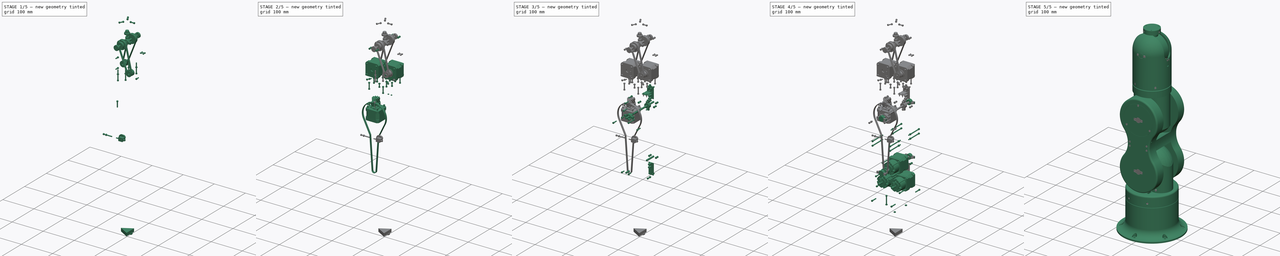
[diagram: build sequence overview — one tinted view per stage of 5, left to right]
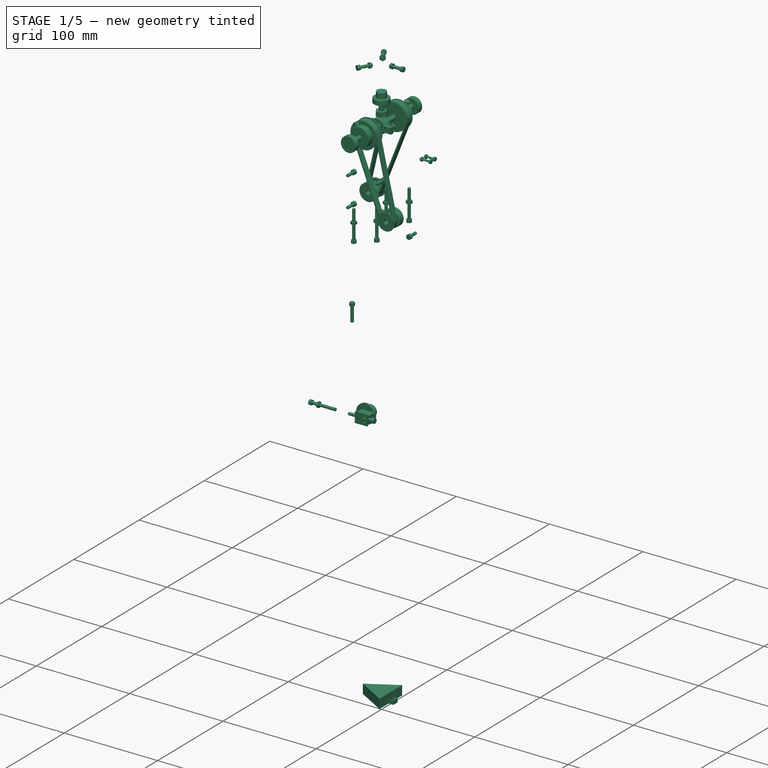
[diagram: stage 1 of 5 — iso view after this stage's code; geometry added in this stage tinted green]
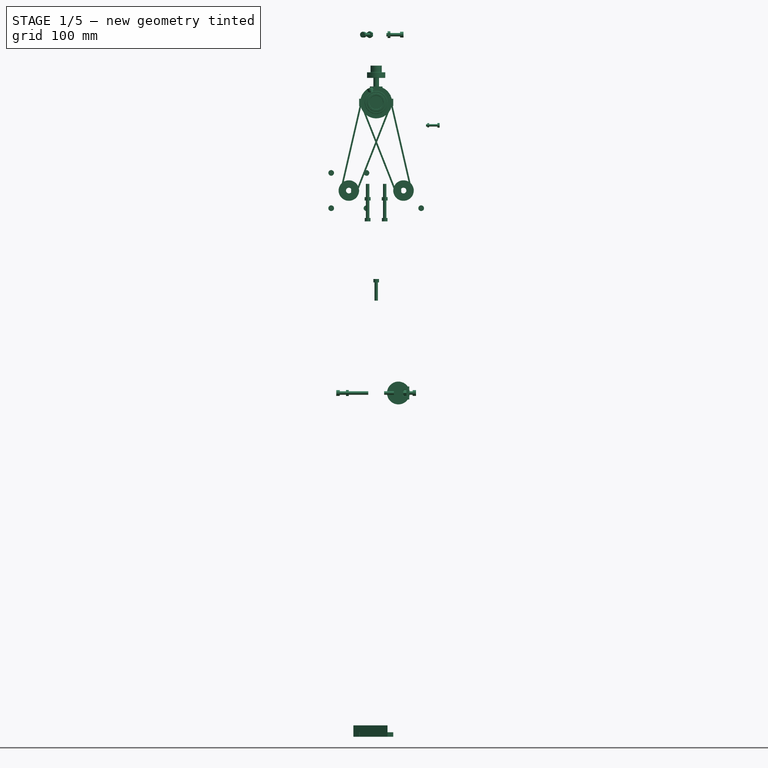
[diagram: stage 1 of 5 — front view after this stage's code; geometry added in this stage tinted green]
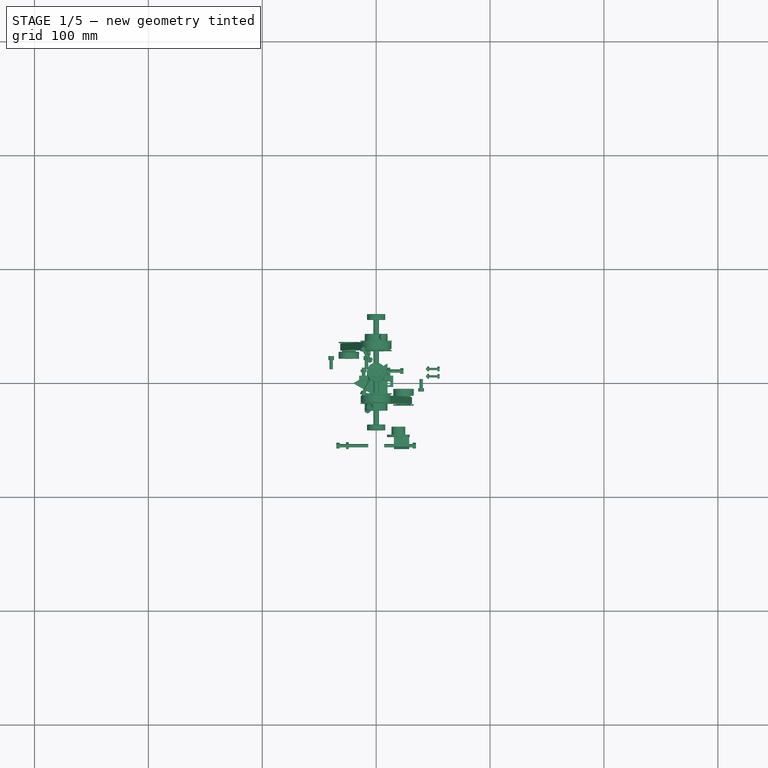
[diagram: stage 1 of 5 — top view after this stage's code; geometry added in this stage tinted green]
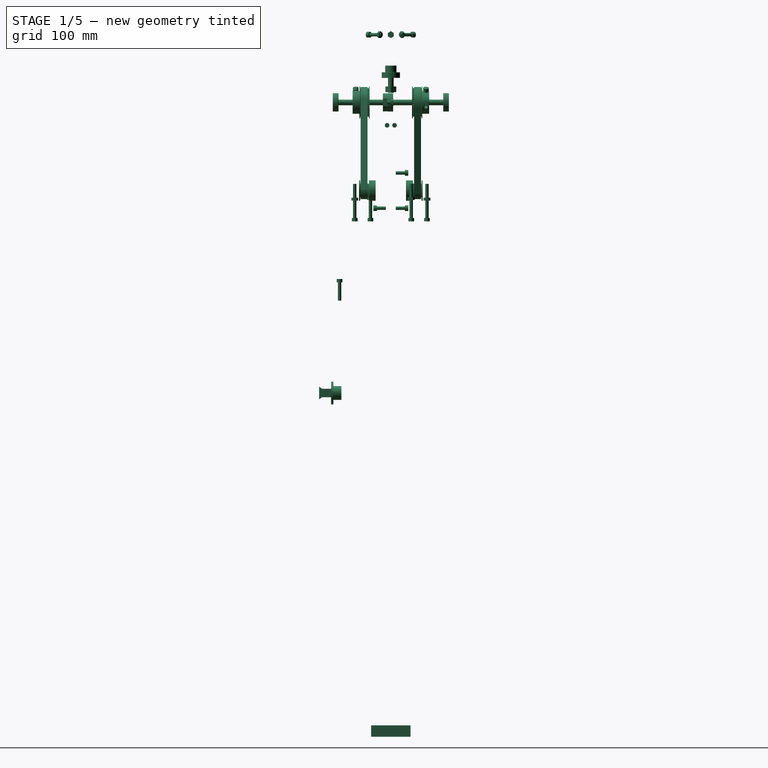
[diagram: stage 1 of 5 — right view after this stage's code; geometry added in this stage tinted green]
FCSTD DOCUMENT  (FreeCAD 0.14R3702 (Git))
Label: ThorAnimationPart4
License: CreativeCommons Attribution-ShareAlike
LicenseURL: http://creativecommons.org/licenses/by-sa/4.0/
objects: Part::FeaturePython×316, Part::Feature×57, App::DocumentObjectGroupPython×48, App::DocumentObjectGroup×30, Sketcher::SketchObject×24, PartDesign::Revolution×16, PartDesign::Pad×10, Part::Cylinder×9, Part::MultiFuse×5, Part::Box×3, Part::Cut×2, Part::Sphere×1, Part::Compound×1, Part::Prism×1
note: 471 computed .brp shape members not serialized (recipe doc carries the construction recipe); baked Part::Feature solids carry a one-line shape summary decoded from their .brp

FEATURE [Sketcher::SketchObject] Sketch003
  Placement = pos=(0,0,0) rot=(1,0,0;1.5708rad)
  sketch-geometry (6):
    g0: LineSegment StartX=0 StartY=0 StartZ=0 EndX=0 EndY=33 EndZ=0
    g1: LineSegment StartX=0 StartY=33 StartZ=0 EndX=2.5 EndY=33 EndZ=0
    g2: LineSegment StartX=2.5 StartY=33 StartZ=0 EndX=2.5 EndY=30 EndZ=0
    g3: LineSegment StartX=2.5 StartY=30 StartZ=0 EndX=1.5 EndY=30 EndZ=0
    g4: LineSegment StartX=1.5 StartY=30 StartZ=0 EndX=1.5 EndY=0 EndZ=0
    g5: LineSegment StartX=1.5 StartY=0 StartZ=0 EndX=0 EndY=0 EndZ=0
  constraints (17):
    c: Coincident(g-1,g0)
    c: PointOnObject(g0,g-2)
    c: Coincident(g0,g1)
    c: Horizontal(g1)
    c: Coincident(g1,g2)
    c: Vertical(g2)
    c: Coincident(g2,g3)
    c: Horizontal(g3)
    c: Coincident(g3,g4)
    c: Vertical(g4)
    c: Coincident(g4,g5)
    c: Coincident(g5,g0)
    c: Horizontal(g5)
    c: DistanceX(g5) = -1.5
    c: DistanceX(g1) = 2.5
    c: DistanceY(g2) = -3
    c: DistanceY(g4) = -30
FEATURE [PartDesign::Revolution] Revolution003  label="M3x30mm"
  Angle = 360
  Axis = (0,0,1)
  Base = (0,0,0)
  Placement = pos=(0,0,0) rot=(1,0,0;1.5708rad)
  ReferenceAxis = -> Sketch003 [V_Axis]
  Reversed = true
  Sketch = -> Sketch003
FEATURE [Sketcher::SketchObject] Sketch004
  Placement = pos=(0,0,0) rot=(1,0,0;1.5708rad)
  sketch-geometry (6):
    g0: LineSegment StartX=0 StartY=0 StartZ=0 EndX=0 EndY=28 EndZ=0
    g1: LineSegment StartX=0 StartY=28 StartZ=0 EndX=2.5 EndY=28 EndZ=0
    g2: LineSegment StartX=2.5 StartY=28 StartZ=0 EndX=2.5 EndY=25 EndZ=0
    g3: LineSegment StartX=2.5 StartY=25 StartZ=0 EndX=1.5 EndY=25 EndZ=0
    g4: LineSegment StartX=1.5 StartY=25 StartZ=0 EndX=1.5 EndY=0 EndZ=0
    g5: LineSegment StartX=1.5 StartY=0 StartZ=0 EndX=0 EndY=0 EndZ=0
  constraints (17):
    c: Coincident(g-1,g0)
    c: PointOnObject(g0,g-2)
    c: Coincident(g0,g1)
    c: Horizontal(g1)
    c: Coincident(g1,g2)
    c: Vertical(g2)
    c: Coincident(g2,g3)
    c: Horizontal(g3)
    c: Coincident(g3,g4)
    c: Vertical(g4)
    c: Coincident(g4,g5)
    c: Coincident(g5,g0)
    c: Horizontal(g5)
    c: DistanceX(g5) = -1.5
    c: DistanceX(g1) = 2.5
    c: DistanceY(g2) = -3
    c: DistanceY(g4) = -25
FEATURE [PartDesign::Revolution] Revolution004  label="M3x25mm"
  Angle = 360
  Axis = (0,0,1)
  Base = (0,0,0)
  Placement = pos=(0,0,0) rot=(1,0,0;1.5708rad)
  ReferenceAxis = -> Sketch004 [V_Axis]
  Reversed = true
  Sketch = -> Sketch004
FEATURE [Sketcher::SketchObject] Sketch007
  Placement = pos=(0,0,0) rot=(1,0,0;1.5708rad)
  sketch-geometry (6):
    g0: LineSegment StartX=0 StartY=0 StartZ=0 EndX=0 EndY=19 EndZ=0
    g1: LineSegment StartX=0 StartY=19 StartZ=0 EndX=2.5 EndY=19 EndZ=0
    g2: LineSegment StartX=2.5 StartY=19 StartZ=0 EndX=2.5 EndY=16 EndZ=0
    g3: LineSegment StartX=2.5 StartY=16 StartZ=0 EndX=1.5 EndY=16 EndZ=0
    g4: LineSegment StartX=1.5 StartY=16 StartZ=0 EndX=1.5 EndY=0 EndZ=0
    g5: LineSegment StartX=1.5 StartY=0 StartZ=0 EndX=0 EndY=0 EndZ=0
  constraints (17):
    c: Coincident(g-1,g0)
    c: PointOnObject(g0,g-2)
    c: Coincident(g0,g1)
    c: Horizontal(g1)
    c: Coincident(g1,g2)
    c: Vertical(g2)
    c: Coincident(g2,g3)
    c: Horizontal(g3)
    c: Coincident(g3,g4)
    c: Vertical(g4)
    c: Coincident(g4,g5)
    c: Coincident(g5,g0)
    c: Horizontal(g5)
    c: DistanceX(g5) = -1.5
    c: DistanceX(g1) = 2.5
    c: DistanceY(g2) = -3
    c: DistanceY(g4) = -16
FEATURE [PartDesign::Revolution] Revolution007  label="M3x16mm"
  Angle = 360
  Axis = (0,0,1)
  Base = (0,0,0)
  Placement = pos=(0,0,0) rot=(1,0,0;1.5708rad)
  ReferenceAxis = -> Sketch007 [V_Axis]
  Reversed = true
  Sketch = -> Sketch007
FEATURE [Sketcher::SketchObject] Sketch008
  Placement = pos=(0,0,0) rot=(1,0,0;1.5708rad)
  sketch-geometry (6):
    g0: LineSegment StartX=0 StartY=0 StartZ=0 EndX=0 EndY=15 EndZ=0
    g1: LineSegment StartX=0 StartY=15 StartZ=0 EndX=2.5 EndY=15 EndZ=0
    g2: LineSegment StartX=2.5 StartY=15 StartZ=0 EndX=2.5 EndY=12 EndZ=0
    g3: LineSegment StartX=2.5 StartY=12 StartZ=0 EndX=1.5 EndY=12 EndZ=0
    g4: LineSegment StartX=1.5 StartY=12 StartZ=0 EndX=1.5 EndY=0 EndZ=0
    g5: LineSegment StartX=1.5 StartY=0 StartZ=0 EndX=0 EndY=0 EndZ=0
  constraints (17):
    c: Coincident(g-1,g0)
    c: PointOnObject(g0,g-2)
    c: Coincident(g0,g1)
    c: Horizontal(g1)
    c: Coincident(g1,g2)
    c: Vertical(g2)
    c: Coincident(g2,g3)
    c: Horizontal(g3)
    c: Coincident(g3,g4)
    c: Vertical(g4)
    c: Coincident(g4,g5)
    c: Coincident(g5,g0)
    c: Horizontal(g5)
    c: DistanceX(g5) = -1.5
    c: DistanceX(g1) = 2.5
    c: DistanceY(g2) = -3
    c: DistanceY(g4) = -12
FEATURE [PartDesign::Revolution] Revolution008  label="M3x12mm"
  Angle = 360
  Axis = (0,0,1)
  Base = (0,0,0)
  Placement = pos=(0,0,0) rot=(1,0,0;1.5708rad)
  ReferenceAxis = -> Sketch008 [V_Axis]
  Reversed = true
  Sketch = -> Sketch008
FEATURE [Sketcher::SketchObject] Sketch010
  sketch-geometry (8):
    g0: LineSegment StartX=2.59808 StartY=1.5 StartZ=0 EndX=0 EndY=3 EndZ=0
    g1: LineSegment StartX=0 StartY=3 StartZ=0 EndX=-2.59808 EndY=1.5 EndZ=0
    g2: LineSegment StartX=-2.59808 StartY=1.5 StartZ=0 EndX=-2.59808 EndY=-1.5 EndZ=0
    g3: LineSegment StartX=-2.59808 StartY=-1.5 StartZ=0 EndX=0 EndY=-3 EndZ=0
    g4: LineSegment StartX=0 StartY=-3 StartZ=0 EndX=2.59808 EndY=-1.5 EndZ=0
    g5: LineSegment StartX=2.59808 StartY=-1.5 StartZ=0 EndX=2.59808 EndY=1.5 EndZ=0
    g6: Circle [constr] CenterX=0 CenterY=0 CenterZ=0 NormalX=0 NormalY=0 NormalZ=1 Radius=3
    g7: Circle CenterX=0 CenterY=0 CenterZ=0 NormalX=0 NormalY=0 NormalZ=1 Radius=1.5
  constraints (18):
    c: Coincident(g0,g1)
    c: Coincident(g1,g2)
    c: Coincident(g2,g3)
    c: Coincident(g3,g4)
    c: Coincident(g4,g5)
    c: Coincident(g5,g0)
    c: Equal(g0, g1-g5) x5
    c: PointOnObject(g0,g6)
    c: PointOnObject(g1,g6)
    c: PointOnObject(g2,g6)
    c: PointOnObject(g3,g6)
    c: PointOnObject(g4,g6)
    c: PointOnObject(g5,g6)
    c: Coincident(g6,g-1)
    c: PointOnObject(g0,g-2)
    c: Radius(g6) = 3
    c: Coincident(g7,g-1)
    c: Radius(g7) = 1.5
FEATURE [PartDesign::Pad] Pad  label="M3Nut"
  Length = 2.4
  Length2 = 100
  Sketch = -> Sketch010
  Type = 0
FEATURE [Sketcher::SketchObject] Sketch070
  Placement = pos=(0,0,0) rot=(1,0,0;1.5708rad)
  sketch-geometry (6):
    g0: LineSegment StartX=0 StartY=0 StartZ=0 EndX=0 EndY=11 EndZ=0
    g1: LineSegment StartX=0 StartY=11 StartZ=0 EndX=2.5 EndY=11 EndZ=0
    g2: LineSegment StartX=2.5 StartY=11 StartZ=0 EndX=2.5 EndY=8 EndZ=0
    g3: LineSegment StartX=2.5 StartY=8 StartZ=0 EndX=1.5 EndY=8 EndZ=0
    g4: LineSegment StartX=1.5 StartY=8 StartZ=0 EndX=1.5 EndY=0 EndZ=0
    g5: LineSegment StartX=1.5 StartY=0 StartZ=0 EndX=0 EndY=0 EndZ=0
  constraints (17):
    c: Coincident(g-1,g0)
    c: PointOnObject(g0,g-2)
    c: Coincident(g0,g1)
    c: Horizontal(g1)
    c: Coincident(g1,g2)
    c: Vertical(g2)
    c: Coincident(g2,g3)
    c: Horizontal(g3)
    c: Coincident(g3,g4)
    c: Vertical(g4)
    c: Coincident(g4,g5)
    c: Coincident(g5,g0)
    c: Horizontal(g5)
    c: DistanceX(g5) = -1.5
    c: DistanceX(g1) = 2.5
    c: DistanceY(g2) = -3
    c: DistanceY(g4) = -8
FEATURE [PartDesign::Revolution] Revolution011  label="M3x8mm"
  Angle = 360
  Axis = (0,0,1)
  Base = (0,0,0)
  Placement = pos=(0,0,0) rot=(1,0,0;1.5708rad)
  ReferenceAxis = -> Sketch070 [V_Axis]
  Reversed = true
  Sketch = -> Sketch070
FEATURE [Part::FeaturePython] CommonBearingFix_01  # a2plus imported part (geometry in sourceFile) (typed FeaturePython)
  fixedPosition = false
  sourceFile = <userpath>/repos/mio/Thor/freecad-src/CommonBearingFix.fcstd
  timeLastImport = 1.45642e+09
  updateColors = true
FEATURE [Part::FeaturePython] CommonBearingFixThrough_01  # a2plus imported part (geometry in sourceFile) (typed FeaturePython)
  fixedPosition = false
  sourceFile = <userpath>/repos/mio/Thor/freecad-src/CommonBearingFixThrough.fcstd
  timeLastImport = 1.45642e+09
  updateColors = true
FEATURE [Sketcher::SketchObject] Sketch071
  Placement = pos=(0,0,0) rot=(1,0,0;1.5708rad)
  sketch-geometry (6):
    g0: LineSegment StartX=0 StartY=0 StartZ=0 EndX=0 EndY=9 EndZ=0
    g1: LineSegment StartX=0 StartY=9 StartZ=0 EndX=2.5 EndY=9 EndZ=0
    g2: LineSegment StartX=2.5 StartY=9 StartZ=0 EndX=2.5 EndY=6 EndZ=0
    g3: LineSegment StartX=2.5 StartY=6 StartZ=0 EndX=1.5 EndY=6 EndZ=0
    g4: LineSegment StartX=1.5 StartY=6 StartZ=0 EndX=1.5 EndY=0 EndZ=0
    g5: LineSegment StartX=1.5 StartY=0 StartZ=0 EndX=0 EndY=0 EndZ=0
  constraints (17):
    c: Coincident(g-1,g0)
    c: PointOnObject(g0,g-2)
    c: Coincident(g0,g1)
    c: Horizontal(g1)
    c: Coincident(g1,g2)
    c: Vertical(g2)
    c: Coincident(g2,g3)
    c: Horizontal(g3)
    c: Coincident(g3,g4)
    c: Vertical(g4)
    c: Coincident(g4,g5)
    c: Coincident(g5,g0)
    c: Horizontal(g5)
    c: DistanceX(g5) = -1.5
    c: DistanceX(g1) = 2.5
    c: DistanceY(g2) = -3
    c: DistanceY(g4) = -6
FEATURE [PartDesign::Revolution] Revolution012  label="M3x6mm"
  Angle = 360
  Axis = (0,0,1)
  Base = (0,0,0)
  Placement = pos=(0,0,0) rot=(1,0,0;1.5708rad)
  ReferenceAxis = -> Sketch071 [V_Axis]
  Reversed = true
  Sketch = -> Sketch071
FEATURE [Part::FeaturePython] Clone231  label="Clone of M3x8mm034"  # Draft clone (typed FeaturePython)
  Objects = -> [Revolution011]
  Placement = pos=(39.5,-4.3,464.1) rot=(1,0,0;3.14159rad)
  Scale = (1,1,1)
FEATURE [Part::FeaturePython] Clone232  label="Clone of M3x8mm035"  # Draft clone (typed FeaturePython)
  Objects = -> [Revolution011]
  Placement = pos=(-8.5,4.3,495.1) rot=(0,1,0;3.14159rad)
  Scale = (1,1,1)
FEATURE [Part::FeaturePython] Clone233  label="Clone of M3x8mm036"  # Draft clone (typed FeaturePython)
  Objects = -> [Revolution011]
  Placement = pos=(-39.5,4.3,495.1) rot=(0,1,0;3.14159rad)
  Scale = (1,1,1)
FEATURE [Part::FeaturePython] Clone234  label="Clone of M3x8mm037"  # Draft clone (typed FeaturePython)
  Objects = -> [Revolution011]
  Placement = pos=(-8.5,4.3,464.1) rot=(0,1,0;3.14159rad)
  Scale = (1,1,1)
FEATURE [Part::FeaturePython] Clone235  label="Clone of M3x8mm038"  # Draft clone (typed FeaturePython)
  Objects = -> [Revolution011]
  Placement = pos=(-39.5,4.3,464.1) rot=(0,1,0;3.14159rad)
  Scale = (1,1,1)
FEATURE [App::DocumentObjectGroup] Group026  label="Common"
  Group = -> [CommonBearingFix_01,CommonBearingFixThrough_01]
FEATURE [Part::FeaturePython] Clone236  label="Clone of GT2x20Pulley"  # Draft clone (typed FeaturePython)
  Objects = -> [Cut002001]
  Placement = pos=(-24,27.9,479.6) rot=(1,0,0;1.5708rad)
  Scale = (1,1,1)
FEATURE [Part::FeaturePython] Clone237  label="Clone of GT2x20Pulley001"  # Draft clone (typed FeaturePython)
  Objects = -> [Cut002001]
  Placement = pos=(24,-27.9,479.6) rot=(0,0.707107,0.707107;3.14159rad)
  Scale = (1,1,1)
FEATURE [Part::FeaturePython] Clone238  label="Clone of M3GrubScrew001"  # Draft clone (typed FeaturePython)
  Objects = -> [Pocket001]
  Placement = pos=(-25,15.9,477) rot=(0,0,1;0rad)
  Scale = (1,1,1)
FEATURE [Part::FeaturePython] Clone239  label="Clone of M3GrubScrew002"  # Draft clone (typed FeaturePython)
  Objects = -> [Pocket001]
  Placement = pos=(25,-15.9,477) rot=(0,0,1;3.14159rad)
  Scale = (1,1,1)
FEATURE [Part::Feature] Cut002004  label="GT2x40Pulley"
  shape: bbox 28 x 28 x 15 mm, 94 faces (baked)
FEATURE [App::DocumentObjectGroup] Group023  label="Pulleys"
  Group = -> [Cut002002_solid,Cut002001,Cut002004]
FEATURE [Part::FeaturePython] Clone240  label="Clone of GT2x40Pulley"  # Draft clone (typed FeaturePython)
  Objects = -> [Cut002004]
  Placement = pos=(4.41e-10,-18.6001,557) rot=(-0.15487,-0.698575,0.698575;3.44889rad)
  Scale = (1,1,1)
FEATURE [Part::FeaturePython] Clone241  label="Clone of GT2x40Pulley001"  # Draft clone (typed FeaturePython)
  Objects = -> [Cut002004]
  Placement = pos=(-4.41e-10,18.6001,557) rot=(-0.954201,0.211541,0.211541;1.61766rad)
  Scale = (1,1,1)
FEATURE [Sketcher::SketchObject] Sketch075
  Placement = pos=(0,0,0) rot=(1,0,0;1.5708rad)
  sketch-geometry (8):
    g0: ArcOfCircle CenterX=24 CenterY=478.6 CenterZ=0 NormalX=0 NormalY=0 NormalZ=1 Radius=6 StartAngle=3.51638 EndAngle=6.50975
    g1: ArcOfCircle CenterX=0 CenterY=556 CenterZ=0 NormalX=0 NormalY=0 NormalZ=1 Radius=12 StartAngle=0.226567 EndAngle=3.51638
    g2: LineSegment StartX=-11.167 StartY=551.607 StartZ=0 EndX=18.4165 EndY=476.404 EndZ=0
    g3: LineSegment StartX=11.6933 StartY=558.696 StartZ=0 EndX=29.8467 EndY=479.948 EndZ=0
    g4: ArcOfCircle CenterX=24 CenterY=478.6 CenterZ=0 NormalX=0 NormalY=0 NormalZ=1 Radius=7.5 StartAngle=3.49672 EndAngle=6.50975
    g5: ArcOfCircle CenterX=0 CenterY=556 CenterZ=0 NormalX=0 NormalY=0 NormalZ=1 Radius=13.5 StartAngle=0.226567 EndAngle=3.5164
    g6: LineSegment StartX=-12.5628 StartY=551.058 StartZ=0 EndX=16.968 EndY=475.992 EndZ=0
    g7: LineSegment StartX=31.3083 StartY=480.285 StartZ=0 EndX=13.155 EndY=559.033 EndZ=0
  constraints (25):
    c: Coincident(g2,g1)
    c: Coincident(g2,g0)
    c: Coincident(g3,g1)
    c: Coincident(g3,g0)
    c: Tangent(g3,g0)
    c: Tangent(g2,g0)
    c: Tangent(g2,g1)
    c: Tangent(g3,g1)
    c: DistanceX(g1,g0) = 24
    c: DistanceY(g0,g1) = 77.4
    c: PointOnObject(g1,g-2)
    c: DistanceY(g-1,g1) = 556
    c: Radius(g1) = 12
    c: Radius(g0) = 6
    c: Coincident(g4,g0)
    c: Coincident(g5,g1)
    c: Radius(g5) = 13.5
    c: Radius(g4) = 7.5
    c: Coincident(g6,g4)
    c: Coincident(g7,g4)
    c: Coincident(g7,g5)
    c: Tangent(g4,g7)
    c: Tangent(g7,g5)
    c: Coincident(g6,g5)
    c: Tangent(g5,g6)
FEATURE [PartDesign::Pad] Pad046  label="GT2-208mm"
  Length = 6
  Length2 = 100
  Placement = pos=(0,0,0) rot=(1,0,0;1.5708rad)
  Sketch = -> Sketch075
  Type = 0
FEATURE [App::DocumentObjectGroup] Group027  label="Belt"
  Group = -> [Pad046]
FEATURE [Part::FeaturePython] Clone242  label="Clone of GT2-208mm"  # Draft clone (typed FeaturePython)
  Objects = -> [Pad046]
  Placement = pos=(0,-20.5,1) rot=(1,0,0;1.5708rad)
  Scale = (1,1,1)
FEATURE [Part::FeaturePython] Clone243  label="Clone of GT2-208mm001"  # Draft clone (typed FeaturePython)
  Objects = -> [Pad046]
  Placement = pos=(0,20.5,1) rot=(0,0.707107,0.707107;3.14159rad)
  Scale = (1,1,1)
FEATURE [Part::FeaturePython] Clone244  label="Clone of Bearing 625ZZ007"  # Draft clone (typed FeaturePython)
  Objects = -> [Compound001]
  Placement = pos=(4.53e-10,51,557) rot=(1,0,0;1.5708rad)
  Scale = (1,1,1)
FEATURE [Part::FeaturePython] Clone245  label="Clone of Bearing 625ZZ008"  # Draft clone (typed FeaturePython)
  Objects = -> [Compound001]
  Placement = pos=(-4.53e-10,-51,557) rot=(0,0.707107,0.707107;3.14159rad)
  Scale = (1,1,1)
FEATURE [Part::FeaturePython] Clone246  label="Clone of Bearing 625ZZ009"  # Draft clone (typed FeaturePython)
  Objects = -> [Compound001]
  Placement = pos=(5e-10,2,557) rot=(1,0,0;1.5708rad)
  Scale = (1,1,1)
FEATURE [Part::FeaturePython] Clone247  label="Clone of Bearing 625ZZ010"  # Draft clone (typed FeaturePython)
  Objects = -> [Compound001]
  Placement = pos=(0,0,578.5) rot=(0,0,1;0rad)
  Scale = (1,1,1)
FEATURE [Part::FeaturePython] Clone248  label="Clone of CommonBearingFixThrough_004"  # Draft clone (typed FeaturePython)
  Objects = -> [CommonBearingFixThrough_01]
  Placement = pos=(5e-10,-3,557) rot=(1,0,0;1.5708rad)
  Scale = (1,1,1)
FEATURE [App::DocumentObjectGroup] Group006  label="Art56"
  Group = -> [Art56GearPlate_01,Art56Interface_01,Art56MotorCoverRing_01,Art56MotorHolderA_01,Art56MotorHolderB_01,Art56SmallGear_01,Clone001,Clone002,Clone003,Clone248]
FEATURE [Part::FeaturePython] Clone249  label="Clone of M3x6mm004"  # Draft clone (typed FeaturePython)
  Objects = -> [Revolution012]
  Placement = pos=(2.11309,30.8501,561.532) rot=(0.954201,0.211541,-0.211541;1.61766rad)
  Scale = (1,1,1)
FEATURE [Part::FeaturePython] Clone250  label="Clone of M3x6mm005"  # Draft clone (typed FeaturePython)
  Objects = -> [Revolution012]
  Placement = pos=(-2.11309,-30.8501,561.532) rot=(-0.15487,0.698575,0.698575;2.83429rad)
  Scale = (1,1,1)
FEATURE [Part::Cylinder] Cylinder1060  label="Axis102mm"
  Angle = 360
  Height = 102
  Placement = pos=(4.53e-10,51,557) rot=(1,0,0;1.5708rad)
  Radius = 2.5
FEATURE [Part::FeaturePython] Clone251  label="Clone of M3Nut072"  # Draft clone (typed FeaturePython)
  Objects = -> [Pad]
  Placement = pos=(-7.5,-31.7,470.9) rot=(0,0,1;0rad)
  Scale = (1,1,1)
FEATURE [Part::FeaturePython] Clone252  label="Clone of M3Nut073"  # Draft clone (typed FeaturePython)
  Objects = -> [Pad]
  Placement = pos=(7.5,-17.9,471.4) rot=(0,0,1;0rad)
  Scale = (1,1,1)
FEATURE [Part::FeaturePython] Clone253  label="Clone of M3Nut074"  # Draft clone (typed FeaturePython)
  Objects = -> [Pad]
  Placement = pos=(7.5,31.7,470.9) rot=(0,0,1;3.14159rad)
  Scale = (1,1,1)
FEATURE [Part::FeaturePython] Clone254  label="Clone of M3Nut075"  # Draft clone (typed FeaturePython)
  Objects = -> [Pad]
  Placement = pos=(-7.5,17.9,471.4) rot=(0,0,1;3.14159rad)
  Scale = (1,1,1)
FEATURE [Part::FeaturePython] Clone255  label="Clone of M3Nut076"  # Draft clone (typed FeaturePython)
  Objects = -> [Pad]
  Placement = pos=(-11,2.4,557) rot=(1,0,0;1.5708rad)
  Scale = (1,1,1)
FEATURE [Part::FeaturePython] Clone256  label="Clone of M3Nut077"  # Draft clone (typed FeaturePython)
  Objects = -> [Pad]
  Placement = pos=(11,2.4,557) rot=(1,0,0;1.5708rad)
  Scale = (1,1,1)
FEATURE [Part::FeaturePython] Clone257  label="Clone of M3x8mm039"  # Draft clone (typed FeaturePython)
  Objects = -> [Revolution011]
  Placement = pos=(-11,4,557) rot=(1,0,0;3.14159rad)
  Scale = (1,1,1)
FEATURE [Part::FeaturePython] Clone258  label="Clone of M3x8mm040"  # Draft clone (typed FeaturePython)
  Objects = -> [Revolution011]
  Placement = pos=(11,4,557) rot=(1,0,0;3.14159rad)
  Scale = (1,1,1)
FEATURE [Sketcher::SketchObject] Sketch076
  sketch-geometry (8):
    g0: LineSegment StartX=4.80644 StartY=2.775 StartZ=0 EndX=0 EndY=5.55 EndZ=0
    g1: LineSegment StartX=0 StartY=5.55 StartZ=0 EndX=-4.80644 EndY=2.775 EndZ=0
    g2: LineSegment StartX=-4.80644 StartY=2.775 StartZ=0 EndX=-4.80644 EndY=-2.775 EndZ=0
    g3: LineSegment StartX=-4.80644 StartY=-2.775 StartZ=0 EndX=0 EndY=-5.55 EndZ=0
    g4: LineSegment StartX=0 StartY=-5.55 StartZ=0 EndX=4.80644 EndY=-2.775 EndZ=0
    g5: LineSegment StartX=4.80644 StartY=-2.775 StartZ=0 EndX=4.80644 EndY=2.775 EndZ=0
    g6: Circle [constr] CenterX=0 CenterY=0 CenterZ=0 NormalX=0 NormalY=0 NormalZ=1 Radius=5.55
    g7: Circle CenterX=0 CenterY=0 CenterZ=0 NormalX=0 NormalY=0 NormalZ=1 Radius=2.5
  constraints (18):
    c: Coincident(g0,g1)
    c: Coincident(g1,g2)
    c: Coincident(g2,g3)
    c: Coincident(g3,g4)
    c: Coincident(g4,g5)
    c: Coincident(g5,g0)
    c: Equal(g0, g1-g5) x5
    c: PointOnObject(g0,g6)
    c: PointOnObject(g1,g6)
    c: PointOnObject(g2,g6)
    c: PointOnObject(g3,g6)
    c: PointOnObject(g4,g6)
    c: PointOnObject(g5,g6)
    c: Coincident(g6,g-1)
    c: PointOnObject(g0,g-2)
    c: Radius(g6) = 5.55
    c: Coincident(g7,g-1)
    c: Radius(g7) = 2.5
FEATURE [PartDesign::Pad] Pad047  label="M5Nut"
  Length = 5
  Length2 = 100
  Sketch = -> Sketch076
  Type = 0
FEATURE [App::DocumentObjectGroup] Group028  label="M5 Nuts"
  Group = -> [Pad047]
FEATURE [Part::FeaturePython] Clone259  label="Clone of M5Nut"  # Draft clone (typed FeaturePython)
  Objects = -> [Pad047]
  Placement = pos=(5e-10,0,566) rot=(0,0,1;0.523599rad)
  Scale = (1,1,1)
FEATURE [Part::FeaturePython] Clone260  label="Clone of M3Nut078"  # Draft clone (typed FeaturePython)
  Objects = -> [Pad]
  Placement = pos=(10.1,0,616.5) rot=(0.250563,0.935113,0.250563;1.63783rad)
  Scale = (1,1,1)
FEATURE [Part::FeaturePython] Clone261  label="Clone of M3Nut079"  # Draft clone (typed FeaturePython)
  Objects = -> [Pad]
  Placement = pos=(-5.05,8.74686,616.5) rot=(-0.50859,0.50859,0.694747;2.77349rad)
  Scale = (1,1,1)
FEATURE [Part::FeaturePython] Clone262  label="Clone of M3Nut080"  # Draft clone (typed FeaturePython)
  Objects = -> [Pad]
  Placement = pos=(-5.05,-8.74686,616.5) rot=(0.788675,0.211325,-0.57735;2.0944rad)
  Scale = (1,1,1)
FEATURE [Part::FeaturePython] Clone263  label="Clone of M3x12mm012"  # Draft clone (typed FeaturePython)
  Objects = -> [Revolution008]
  Placement = pos=(9,0,616.5) rot=(0.57735,0.57735,-0.57735;2.0944rad)
  Scale = (1,1,1)
FEATURE [Part::FeaturePython] Clone264  label="Clone of M3x12mm013"  # Draft clone (typed FeaturePython)
  Objects = -> [Revolution008]
  Placement = pos=(-4.5,7.79423,616.5) rot=(-0.250563,0.935113,0.250563;1.63783rad)
  Scale = (1,1,1)
FEATURE [Part::FeaturePython] Clone265  label="Clone of M3x12mm014"  # Draft clone (typed FeaturePython)
  Objects = -> [Revolution008]
  Placement = pos=(-4.5,-7.79423,616.5) rot=(0.694747,-0.186157,-0.694747;3.50969rad)
  Scale = (1,1,1)
FEATURE [Sketcher::SketchObject] Sketch077
  Placement = pos=(0,0,0) rot=(1,0,0;1.5708rad)
  sketch-geometry (6):
    g0: LineSegment StartX=0 StartY=0 StartZ=0 EndX=0 EndY=23.85 EndZ=0
    g1: LineSegment StartX=0 StartY=23.85 StartZ=0 EndX=4.95 EndY=23.85 EndZ=0
    g2: LineSegment StartX=4.95 StartY=23.85 StartZ=0 EndX=4.95 EndY=18 EndZ=0
    g3: LineSegment StartX=4.95 StartY=18 StartZ=0 EndX=2.5 EndY=18 EndZ=0
    g4: LineSegment StartX=2.5 StartY=18 StartZ=0 EndX=2.5 EndY=0 EndZ=0
    g5: LineSegment StartX=2.5 StartY=0 StartZ=0 EndX=0 EndY=0 EndZ=0
  constraints (17):
    c: Coincident(g-1,g0)
    c: PointOnObject(g0,g-2)
    c: Coincident(g0,g1)
    c: Horizontal(g1)
    c: Coincident(g1,g2)
    c: Vertical(g2)
    c: Coincident(g2,g3)
    c: Horizontal(g3)
    c: Coincident(g3,g4)
    c: Vertical(g4)
    c: Coincident(g4,g5)
    c: Coincident(g5,g0)
    c: Horizontal(g5)
    c: DistanceX(g5) = -2.5
    c: DistanceX(g1) = 4.95
    c: DistanceY(g2) = -5.85
    c: DistanceY(g4) = -18
FEATURE [PartDesign::Revolution] Revolution014  label="M5x18mm"
  Angle = 360
  Axis = (0,0,1)
  Base = (0,0,0)
  Placement = pos=(0,0,0) rot=(1,0,0;1.5708rad)
  ReferenceAxis = -> Sketch077 [V_Axis]
  Reversed = true
  Sketch = -> Sketch077
FEATURE [App::DocumentObjectGroup] Group029  label="M5 Bolt"
  Group = -> [Revolution014]
FEATURE [Part::FeaturePython] Clone266  label="Clone of M5x18mm"  # Draft clone (typed FeaturePython)
  Objects = -> [Revolution014]
  Placement = pos=(0,0,565.5) rot=(1,0,0;1.5708rad)
  Scale = (1,1,1)
FEATURE [Part::FeaturePython] Clone267  label="Clone of M3x30mm004"  # Draft clone (typed FeaturePython)
  Objects = -> [Revolution003]
  Placement = pos=(7.5,31.7,485.5) rot=(-1,0,0;1.5708rad)
  Scale = (1,1,1)
FEATURE [Part::FeaturePython] Clone268  label="Clone of M3x30mm005"  # Draft clone (typed FeaturePython)
  Objects = -> [Revolution003]
  Placement = pos=(7.5,-17.9,485.5) rot=(-1,0,0;1.5708rad)
  Scale = (1,1,1)
FEATURE [Part::FeaturePython] Clone269  label="Clone of M3x30mm006"  # Draft clone (typed FeaturePython)
  Objects = -> [Revolution003]
  Placement = pos=(-7.5,-31.7,485.5) rot=(-1,0,0;1.5708rad)
  Scale = (1,1,1)
FEATURE [Part::FeaturePython] Clone270  label="Clone of M3x30mm007"  # Draft clone (typed FeaturePython)
  Objects = -> [Revolution003]
  Placement = pos=(-7.5,17.9,485.5) rot=(-1,0,0;1.5708rad)
  Scale = (1,1,1)
FEATURE [Part::FeaturePython] Art3TensionerBody_01  # a2plus imported part (geometry in sourceFile) (typed FeaturePython)
  Placement = pos=(-29,-63,307.55) rot=(-1,0,0;1.5708rad)
  fixedPosition = false
  sourceFile = <userpath>/repos/mio/Thor/freecad-src/Art3TensionerBody.fcstd
  timeLastImport = 1.45924e+09
  updateColors = true
FEATURE [Part::FeaturePython] Art3TensionerPulley_01  # a2plus imported part (geometry in sourceFile) (typed FeaturePython)
  Placement = pos=(-19.5,-52.4,301.85) rot=(0,0,1;0rad)
  fixedPosition = false
  sourceFile = <userpath>/repos/mio/Thor/freecad-src/Art3TensionerPulley.fcstd
  timeLastImport = 1.45925e+09
  updateColors = true
FEATURE [Part::FeaturePython] Clone271  label="Clone of Art3TensionerBody_01"  # Draft clone (typed FeaturePython)
  Objects = -> [Art3TensionerBody_01]
  Placement = pos=(29,-63,296.15) rot=(0,0.707107,0.707107;3.14159rad)
  Scale = (1,1,1)
FEATURE [Part::FeaturePython] Clone272  label="Clone of Art3TensionerPulley_01"  # Draft clone (typed FeaturePython)
  Objects = -> [Art3TensionerPulley_01]
  Placement = pos=(19.5,-52.4,301.85) rot=(0,1,0;3.14159rad)
  Scale = (1,1,1)
FEATURE [App::DocumentObjectGroup] Group003  label="Art2"
  Group = -> [Art2BodyA_01,Art2BodyACover1_01,Art2BodyAWindow_01,Art2BodyACover2_01,Art2BodyB_01,Art2BodyBCover_01,Art2MotorGear_01,Art2Union_01,Art2MotorGear_002,Clone004,Clone067,Clone080,Clone081,Clone082,Clone083,Art3TensionerBody_01,Art3TensionerPulley_01,Clone271,Clone272]
FEATURE [App::DocumentObjectGroup] Group007  label="Printed Parts"
  Group = -> [Group001,Group002,Group003,Group004,Group005,Group006,Group026]
FEATURE [Part::FeaturePython] Clone273  label="Clone of M3Nut081"  # Draft clone (typed FeaturePython)
  Objects = -> [Pad]
  Placement = pos=(24.1,-60,301.85) rot=(0,1,0;1.5708rad)
  Scale = (1,1,1)
FEATURE [Part::FeaturePython] Clone274  label="Clone of M3Nut082"  # Draft clone (typed FeaturePython)
  Objects = -> [Pad]
  Placement = pos=(-26.5,-60,301.85) rot=(0,1,0;1.5708rad)
  Scale = (1,1,1)
FEATURE [Part::FeaturePython] Clone275  label="Clone of M3x25mm006"  # Draft clone (typed FeaturePython)
  Objects = -> [Revolution004]
  Placement = pos=(7,-60,301.85) rot=(0.57735,0.57735,-0.57735;2.0944rad)
  Scale = (1,1,1)
FEATURE [Part::FeaturePython] Clone276  label="Clone of M3x25mm007"  # Draft clone (typed FeaturePython)
  Objects = -> [Revolution004]
  Placement = pos=(-7,-60,301.85) rot=(0.57735,-0.57735,0.57735;2.0944rad)
  Scale = (1,1,1)
FEATURE [Part::Cylinder] Cylinder1061  label="4mmAxis"
  Angle = 360
  Height = 14
  Placement = pos=(-19.5,-43.5,301.85) rot=(1,0,0;1.5708rad)
  Radius = 2
FEATURE [Part::FeaturePython] Clone277  label="Clone of 4mmAxisr"  # Draft clone (typed FeaturePython)
  Objects = -> [Cylinder1061]
  Placement = pos=(19.5,-43.5,301.85) rot=(0,-0.707107,0.707107;3.14159rad)
  Scale = (1,1,1)
FEATURE [Part::Feature] Compound002  label="MF84ZZ"
  Placement = pos=(-19.5,-52.4,301.85) rot=(-1,0,0;1.5708rad)
  shape: bbox 9.2 x 3 x 9.2 mm, 103 faces, 3 solids (baked)
FEATURE [Part::FeaturePython] Clone278  label="Clone of MF84ZZ"  # Draft clone (typed FeaturePython)
  Objects = -> [Compound002]
  Placement = pos=(19.5,-52.4,301.85) rot=(0,0.707107,0.707107;3.14159rad)
  Scale = (1,1,1)
FEATURE [Part::FeaturePython] Clone279  label="Clone of M3x16mm008"  # Draft clone (typed FeaturePython)
  Objects = -> [Revolution007]
  Placement = pos=(-4.6e-11,-45,383) rot=(1,0,0;1.5708rad)
  Scale = (1,1,1)
FEATURE [App::DocumentObjectGroup] Group022  label="Comp-Art3"
  Group = -> [Clone045,Clone052,Clone055,Clone061,Clone056,Clone074,Clone075,Cylinder1059,Clone139,Clone138,Clone149,Clone146,Clone142,Clone144,Clone147,Clone151,Clone148,Clone150,Clone145,Clone143,Clone152,Clone153,Clone154,Clone155,Clone156,Clone157,Clone158,Clone159,Clone160,Fusion154,Clone278,Compound002,Clone276,Clone274,Clone275,Cylinder1061,Clone277,Clone273,Clone279]
FEATURE [Part::Box] Box  label="Cube"
  Height = 10
  Length = 10
  Width = 10
FEATURE [Part::Prism] Prism001
  Circumradius = 20
  Height = 10
  Placement = pos=(0,0,0) rot=(0,0,1;3.14159rad)
  Polygon = 3
FEATURE [App::DocumentObjectGroup] Group030  label="AnimationAux"
  Group = -> [Box,Prism001]
FEATURE [Part::Feature] trajectory_line
  shape: bbox 2e-07 x 100 x 2e-07 mm, 0 faces, 0 solids (baked)
FEATURE [App::DocumentObjectGroupPython] SimpleGroup  # scripted group (container) (typed FeaturePython)
  AnimationStepTime = 0
  AnimationSteps = 20
  Distance = 100
  Group = -> [trajectory_line]
  Revolutions = 0
FEATURE [Part::Feature] trajectory_line001
  shape: bbox 2e-07 x 50 x 2e-07 mm, 0 faces, 0 solids (baked)
FEATURE [App::DocumentObjectGroupPython] SimpleGroup001  # scripted group (container) (typed FeaturePython)
  AnimationStepTime = 0
  AnimationSteps = 20
  Distance = 50
  Group = -> [trajectory_line001]
  Revolutions = 0
FEATURE [Part::Feature] trajectory_line002
  shape: bbox 100 x 2e-07 x 2e-07 mm, 0 faces, 0 solids (baked)
FEATURE [App::DocumentObjectGroupPython] SimpleGroup004  # scripted group (container) (typed FeaturePython)
  AnimationStepTime = 0
  AnimationSteps = 20
  Distance = 100
  Group = -> [trajectory_line002]
  Revolutions = 0
FEATURE [Part::Feature] trajectory_line003
  shape: bbox 2e-07 x 100 x 2e-07 mm, 0 faces, 0 solids (baked)
FEATURE [App::DocumentObjectGroupPython] SimpleGroup003  # scripted group (container) (typed FeaturePython)
  AnimationStepTime = 0
  AnimationSteps = 20
  Distance = 100
  Group = -> [trajectory_line003]
  Revolutions = 0
FEATURE [Part::Feature] trajectory_line004
  shape: bbox 2e-07 x 20 x 2e-07 mm, 0 faces, 0 solids (baked)
FEATURE [App::DocumentObjectGroupPython] SimpleGroup005  # scripted group (container) (typed FeaturePython)
  AnimationStepTime = 0
  AnimationSteps = 20
  Distance = 20
  Group = -> [trajectory_line004]
  Revolutions = 0
FEATURE [Part::Feature] trajectory_line005
  shape: bbox 120 x 2e-07 x 2e-07 mm, 0 faces, 0 solids (baked)
FEATURE [App::DocumentObjectGroupPython] SimpleGroup006  # scripted group (container) (typed FeaturePython)
  AnimationStepTime = 0
  AnimationSteps = 20
  Distance = 120
  Group = -> [trajectory_line005]
  Revolutions = 0
FEATURE [Part::Feature] trajectory_line006
  shape: bbox 2e-07 x 2e-07 x 40 mm, 0 faces, 0 solids (baked)
FEATURE [App::DocumentObjectGroupPython] SimpleGroup007  # scripted group (container) (typed FeaturePython)
  AnimationStepTime = 0
  AnimationSteps = 20
  Distance = 40
  Group = -> [trajectory_line006]
  Revolutions = 0
FEATURE [Part::Feature] trajectory_line007
  shape: bbox 2e-07 x 30 x 2e-07 mm, 0 faces, 0 solids (baked)
FEATURE [App::DocumentObjectGroupPython] SimpleGroup010  # scripted group (container) (typed FeaturePython)
  AnimationStepTime = 0
  AnimationSteps = 20
  Distance = 30
  Group = -> [trajectory_line007]
  Revolutions = 0
FEATURE [Part::Feature] trajectory_line008
  shape: bbox 2e-07 x 40 x 2e-07 mm, 0 faces, 0 solids (baked)
FEATURE [App::DocumentObjectGroupPython] SimpleGroup011  # scripted group (container) (typed FeaturePython)
  AnimationStepTime = 0
  AnimationSteps = 20
  Distance = 40
  Group = -> [trajectory_line008]
  Revolutions = 0
FEATURE [Part::Feature] trajectory_line009
  shape: bbox 2e-07 x 80 x 2e-07 mm, 0 faces, 0 solids (baked)
FEATURE [App::DocumentObjectGroupPython] SimpleGroup012  # scripted group (container) (typed FeaturePython)
  AnimationStepTime = 0
  AnimationSteps = 20
  Distance = 80
  Group = -> [trajectory_line009]
  Revolutions = 0
FEATURE [Part::Feature] trajectory_line010
  shape: bbox 2e-07 x 50 x 2e-07 mm, 0 faces, 0 solids (baked)
FEATURE [App::DocumentObjectGroupPython] SimpleGroup013  # scripted group (container) (typed FeaturePython)
  AnimationStepTime = 0
  AnimationSteps = 20
  Distance = 50
  Group = -> [trajectory_line010]
  Revolutions = 0
FEATURE [Part::Feature] trajectory_line011
  shape: bbox 2e-07 x 30 x 2e-07 mm, 0 faces, 0 solids (baked)
FEATURE [App::DocumentObjectGroupPython] SimpleGroup014  # scripted group (container) (typed FeaturePython)
  AnimationStepTime = 0
  AnimationSteps = 20
  Distance = 30
  Group = -> [trajectory_line011]
  Revolutions = 0
FEATURE [Part::Feature] trajectory_line012
  shape: bbox 2e-07 x 40 x 2e-07 mm, 0 faces, 0 solids (baked)
FEATURE [App::DocumentObjectGroupPython] SimpleGroup015  # scripted group (container) (typed FeaturePython)
  AnimationStepTime = 0
  AnimationSteps = 20
  Distance = 40
  Group = -> [trajectory_line012]
  Revolutions = 0
FEATURE [Part::Feature] trajectory_line013
  shape: bbox 2e-07 x 2e-07 x 30 mm, 0 faces, 0 solids (baked)
FEATURE [App::DocumentObjectGroupPython] SimpleGroup016  # scripted group (container) (typed FeaturePython)
  AnimationStepTime = 0
  AnimationSteps = 20
  Distance = 30
  Group = -> [trajectory_line013]
  Revolutions = 0
FEATURE [Part::Feature] trajectory_line014
  shape: bbox 2e-07 x 60 x 2e-07 mm, 0 faces, 0 solids (baked)
FEATURE [App::DocumentObjectGroupPython] SimpleGroup017  # scripted group (container) (typed FeaturePython)
  AnimationStepTime = 0
  AnimationSteps = 20
  Distance = 30
  Group = -> [trajectory_line014]
  Revolutions = 0
FEATURE [Part::Feature] trajectory_line015
  shape: bbox 2e-07 x 2e-07 x 100 mm, 0 faces, 0 solids (baked)
FEATURE [App::DocumentObjectGroupPython] SimpleGroup018  # scripted group (container) (typed FeaturePython)
  AnimationStepTime = 0
  AnimationSteps = 20
  Distance = 100
  Group = -> [trajectory_line015]
  Revolutions = 0
FEATURE [Part::Feature] trajectory_line016
  shape: bbox 2e-07 x 250 x 2e-07 mm, 0 faces, 0 solids (baked)
FEATURE [App::DocumentObjectGroupPython] SimpleGroup019  # scripted group (container) (typed FeaturePython)
  AnimationStepTime = 0
  AnimationSteps = 20
  Distance = 250
  Group = -> [trajectory_line016]
  Revolutions = 0
FEATURE [Part::Feature] trajectory_line017
  shape: bbox 2e-07 x 2e-07 x 40 mm, 0 faces, 0 solids (baked)
FEATURE [App::DocumentObjectGroupPython] SimpleGroup020  # scripted group (container) (typed FeaturePython)
  AnimationStepTime = 0
  AnimationSteps = 20
  Distance = 40
  Group = -> [trajectory_line017]
  Revolutions = 0
FEATURE [Part::Feature] trajectory_line018
  shape: bbox 2e-07 x 75 x 2e-07 mm, 0 faces, 0 solids (baked)
FEATURE [App::DocumentObjectGroupPython] SimpleGroup021  # scripted group (container) (typed FeaturePython)
  AnimationStepTime = 0
  AnimationSteps = 20
  Distance = 75
  Group = -> [trajectory_line018]
  Revolutions = 0
FEATURE [Part::Feature] trajectory_line019
  shape: bbox 2e-07 x 2e-07 x 40 mm, 0 faces, 0 solids (baked)
FEATURE [App::DocumentObjectGroupPython] SimpleGroup022  # scripted group (container) (typed FeaturePython)
  AnimationStepTime = 0
  AnimationSteps = 20
  Distance = 40
  Group = -> [trajectory_line019]
  Revolutions = 0
FEATURE [Part::Feature] trajectory_line020
  shape: bbox 120 x 2e-07 x 2e-07 mm, 0 faces, 0 solids (baked)
FEATURE [App::DocumentObjectGroupPython] SimpleGroup023  # scripted group (container) (typed FeaturePython)
  AnimationStepTime = 0
  AnimationSteps = 20
  Distance = 120
  Group = -> [trajectory_line020]
  Revolutions = 0
FEATURE [Part::Feature] trajectory_line021
  shape: bbox 2e-07 x 10 x 2e-07 mm, 0 faces, 0 solids (baked)
FEATURE [App::DocumentObjectGroupPython] SimpleGroup024  # scripted group (container) (typed FeaturePython)
  AnimationStepTime = 0
  AnimationSteps = 20
  Distance = 10
  Group = -> [trajectory_line021]
  Revolutions = 0
FEATURE [Part::Feature] trajectory_line022
  shape: bbox 2e-07 x 2e-07 x 100 mm, 0 faces, 0 solids (baked)
FEATURE [App::DocumentObjectGroupPython] SimpleGroup025  # scripted group (container) (typed FeaturePython)
  AnimationStepTime = 0
  AnimationSteps = 20
  Distance = 100
  Group = -> [trajectory_line022]
  Revolutions = 0
FEATURE [Part::Feature] trajectory_line023
  shape: bbox 40 x 2e-07 x 2e-07 mm, 0 faces, 0 solids (baked)
FEATURE [App::DocumentObjectGroupPython] SimpleGroup026  # scripted group (container) (typed FeaturePython)
  AnimationStepTime = 0
  AnimationSteps = 20
  Distance = 40
  Group = -> [trajectory_line023]
  Revolutions = 0
FEATURE [Part::Feature] trajectory_line024
  shape: bbox 10 x 2e-07 x 2e-07 mm, 0 faces, 0 solids (baked)
FEATURE [App::DocumentObjectGroupPython] SimpleGroup027  # scripted group (container) (typed FeaturePython)
  AnimationStepTime = 0
  AnimationSteps = 20
  Distance = 10
  Group = -> [trajectory_line024]
  Revolutions = 0
FEATURE [Part::Feature] trajectory_line025
  shape: bbox 2e-07 x 2e-07 x 130 mm, 0 faces, 0 solids (baked)
FEATURE [App::DocumentObjectGroupPython] SimpleGroup028  # scripted group (container) (typed FeaturePython)
  AnimationStepTime = 0
  AnimationSteps = 20
  Distance = 130
  Group = -> [trajectory_line025]
  Revolutions = 0
FEATURE [Part::Feature] trajectory_line026
  shape: bbox 2e-07 x 150 x 2e-07 mm, 0 faces, 0 solids (baked)
FEATURE [App::DocumentObjectGroupPython] SimpleGroup029  # scripted group (container) (typed FeaturePython)
  AnimationStepTime = 0
  AnimationSteps = 20
  Distance = 150
  Group = -> [trajectory_line026]
  Revolutions = 0
FEATURE [Part::Feature] trajectory_line027
  shape: bbox 40 x 2e-07 x 2e-07 mm, 0 faces, 0 solids (baked)
FEATURE [App::DocumentObjectGroupPython] SimpleGroup030  # scripted group (container) (typed FeaturePython)
  AnimationStepTime = 0
  AnimationSteps = 20
  Distance = 40
  Group = -> [trajectory_line027]
  Revolutions = 0
FEATURE [Part::Feature] trajectory_line028
  shape: bbox 0.0001681 x 0.000179 x 20 mm, 0 faces, 0 solids (baked)
FEATURE [App::DocumentObjectGroupPython] SimpleGroup031  # scripted group (container) (typed FeaturePython)
  AnimationStepTime = 0
  AnimationSteps = 20
  Distance = 20
  Group = -> [trajectory_line028]
  Revolutions = 0
FEATURE [Part::Feature] trajectory_line029
  shape: bbox 40 x 2e-07 x 2e-07 mm, 0 faces, 0 solids (baked)
FEATURE [App::DocumentObjectGroupPython] SimpleGroup032  # scripted group (container) (typed FeaturePython)
  AnimationStepTime = 0
  AnimationSteps = 20
  Distance = 40
  Group = -> [trajectory_line029]
  Revolutions = 0
FEATURE [Part::Feature] trajectory_line030
  shape: bbox 2e-07 x 2e-07 x 20 mm, 0 faces, 0 solids (baked)
FEATURE [App::DocumentObjectGroupPython] SimpleGroup033  # scripted group (container) (typed FeaturePython)
  AnimationStepTime = 0
  AnimationSteps = 20
  Distance = 20
  Group = -> [trajectory_line030]
  Revolutions = 0
FEATURE [Part::Feature] trajectory_line031
  shape: bbox 2e-07 x 2e-07 x 40 mm, 0 faces, 0 solids (baked)
FEATURE [App::DocumentObjectGroupPython] SimpleGroup034  # scripted group (container) (typed FeaturePython)
  AnimationStepTime = 0
  AnimationSteps = 20
  Distance = 40
  Group = -> [trajectory_line031]
  Revolutions = 0
FEATURE [Part::Feature] trajectory_line032
  shape: bbox 2e-07 x 2e-07 x 22 mm, 0 faces, 0 solids (baked)
FEATURE [App::DocumentObjectGroupPython] SimpleGroup035  # scripted group (container) (typed FeaturePython)
  AnimationStepTime = 0
  AnimationSteps = 20
  Distance = 22
  Group = -> [trajectory_line032]
  Revolutions = 0
FEATURE [Part::Feature] trajectory_line033
  shape: bbox 2e-07 x 50 x 2e-07 mm, 0 faces, 0 solids (baked)
FEATURE [App::DocumentObjectGroupPython] SimpleGroup036  # scripted group (container) (typed FeaturePython)
  AnimationStepTime = 0
  AnimationSteps = 20
  Distance = 50
  Group = -> [trajectory_line033]
  Revolutions = 0
FEATURE [Part::Feature] trajectory_line034
  shape: bbox 2e-07 x 80 x 2e-07 mm, 0 faces, 0 solids (baked)
FEATURE [App::DocumentObjectGroupPython] SimpleGroup037  # scripted group (container) (typed FeaturePython)
  AnimationStepTime = 0
  AnimationSteps = 20
  Distance = 80
  Group = -> [trajectory_line034]
  Revolutions = 0
FEATURE [Part::Feature] trajectory_line035
  shape: bbox 2e-07 x 50 x 2e-07 mm, 0 faces, 0 solids (baked)
FEATURE [App::DocumentObjectGroupPython] SimpleGroup038  # scripted group (container) (typed FeaturePython)
  AnimationStepTime = 0
  AnimationSteps = 20
  Distance = 50
  Group = -> [trajectory_line035]
  Revolutions = 0
FEATURE [Part::Feature] trajectory_line036
  shape: bbox 2e-07 x 30 x 2e-07 mm, 0 faces, 0 solids (baked)
FEATURE [App::DocumentObjectGroupPython] SimpleGroup039  # scripted group (container) (typed FeaturePython)
  AnimationStepTime = 0
  AnimationSteps = 20
  Distance = 30
  Group = -> [trajectory_line036]
  Revolutions = 0
FEATURE [Part::Feature] trajectory_line037
  shape: bbox 2e-07 x 10 x 2e-07 mm, 0 faces, 0 solids (baked)
FEATURE [App::DocumentObjectGroupPython] SimpleGroup040  # scripted group (container) (typed FeaturePython)
  AnimationStepTime = 0
  AnimationSteps = 20
  Distance = 10
  Group = -> [trajectory_line037]
  Revolutions = 0
FEATURE [Part::Feature] trajectory_line038
  shape: bbox 2.001e-07 x 2e-07 x 150 mm, 0 faces, 0 solids (baked)
FEATURE [App::DocumentObjectGroupPython] SimpleGroup041  # scripted group (container) (typed FeaturePython)
  AnimationStepTime = 0
  AnimationSteps = 20
  Distance = 150
  Group = -> [trajectory_line038]
  Revolutions = 0
FEATURE [Part::Feature] trajectory_line039
  shape: bbox 2e-07 x 2e-07 x 150 mm, 0 faces, 0 solids (baked)
FEATURE [App::DocumentObjectGroupPython] SimpleGroup042  # scripted group (container) (typed FeaturePython)
  AnimationStepTime = 0
  AnimationSteps = 20
  Distance = 150
  Group = -> [trajectory_line039]
  Revolutions = 0
FEATURE [Part::Feature] trajectory_line040
  shape: bbox 2e-07 x 2e-07 x 200 mm, 0 faces, 0 solids (baked)
FEATURE [App::DocumentObjectGroupPython] SimpleGroup043  # scripted group (container) (typed FeaturePython)
  AnimationStepTime = 0
  AnimationSteps = 20
  Distance = 200
  Group = -> [trajectory_line040]
  Revolutions = 0
FEATURE [Part::Feature] trajectory_line041
  shape: bbox 2e-07 x 2e-07 x 80 mm, 0 faces, 0 solids (baked)
FEATURE [App::DocumentObjectGroupPython] SimpleGroup044  # scripted group (container) (typed FeaturePython)
  AnimationStepTime = 0
  AnimationSteps = 20
  Distance = 80
  Group = -> [trajectory_line041]
  Revolutions = 0
FEATURE [Part::Feature] trajectory_line042
  shape: bbox 2e-07 x 100 x 2e-07 mm, 0 faces, 0 solids (baked)
FEATURE [App::DocumentObjectGroupPython] SimpleGroup045  # scripted group (container) (typed FeaturePython)
  AnimationStepTime = 0
  AnimationSteps = 20
  Distance = 100
  Group = -> [trajectory_line042]
  Revolutions = 0
FEATURE [Part::Feature] trajectory_line043
  shape: bbox 2e-07 x 2e-07 x 175 mm, 0 faces, 0 solids (baked)
FEATURE [App::DocumentObjectGroupPython] SimpleGroup046  # scripted group (container) (typed FeaturePython)
  AnimationStepTime = 0
  AnimationSteps = 20
  Distance = 175
  Group = -> [trajectory_line043]
  Revolutions = 0
FEATURE [Part::Feature] trajectory_line044
  shape: bbox 2e-07 x 2e-07 x 40 mm, 0 faces, 0 solids (baked)
FEATURE [App::DocumentObjectGroupPython] SimpleGroup047  # scripted group (container) (typed FeaturePython)
  AnimationStepTime = 0
  AnimationSteps = 20
  Distance = 40
  Group = -> [trajectory_line044]
  Revolutions = 0
FEATURE [Part::Feature] trajectory_line045
  shape: bbox 20 x 2e-07 x 2e-07 mm, 0 faces, 0 solids (baked)
FEATURE [App::DocumentObjectGroupPython] SimpleGroup048  # scripted group (container) (typed FeaturePython)
  AnimationStepTime = 0
  AnimationSteps = 20
  Distance = 150
  Group = -> [trajectory_line045]
  Revolutions = 0
FEATURE [Part::Feature] trajectory_line046
  shape: bbox 2e-07 x 2e-07 x 20 mm, 0 faces, 0 solids (baked)
FEATURE [App::DocumentObjectGroupPython] SimpleGroup049  # scripted group (container) (typed FeaturePython)
  AnimationStepTime = 0
  AnimationSteps = 20
  Distance = 20
  Group = -> [trajectory_line046]
  Revolutions = 0
FEATURE [App::DocumentObjectGroupPython] ExplodedAssembly  # scripted group (container) (typed FeaturePython)
  AnimationStep = 0
  CurrentTrajectory = 0
  Group = -> [SimpleGroup,SimpleGroup001,SimpleGroup004,SimpleGroup003,SimpleGroup005,SimpleGroup006,SimpleGroup007,SimpleGroup010,SimpleGroup011,SimpleGroup012,SimpleGroup013,SimpleGroup014,SimpleGroup015,SimpleGroup016,SimpleGroup017,SimpleGroup018,SimpleGroup019,SimpleGroup020,SimpleGroup021,SimpleGroup022,SimpleGroup023,SimpleGroup024,SimpleGroup025,SimpleGroup026,SimpleGroup027,SimpleGroup028,+21 more]
  InAnimation = false
  RemoveAllTrajectories = false
  ResetAnimation = false
FEATURE [PartDesign::Revolution] Revolution015  label="M2x10mm"
  Angle = 360
  Axis = (0,0,1)
  Base = (0,0,0)
  Placement = pos=(0,0,0) rot=(1,0,0;1.5708rad)
  Reversed = true
FEATURE [App::DocumentObjectGroup] Group010  label="M2 Bolts"
  Group = -> [Revolution010,Revolution015]
FEATURE [App::DocumentObjectGroup] Group009  label="Bolts"
  Group = -> [Group010,Group011,Group029]
FEATURE [Part::FeaturePython] Clone281  label="Clone of M2x10mm"  # Draft clone (typed FeaturePython)
  Objects = -> [Revolution015]
  Placement = pos=(55.75,3.25,536.9) rot=(0.57735,-0.57735,0.57735;2.0944rad)
  Scale = (1,1,1)
FEATURE [Part::FeaturePython] Clone282  label="Clone of M2x10mm001"  # Draft clone (typed FeaturePython)
  Objects = -> [Revolution015]
  Placement = pos=(55.75,-3.25,536.9) rot=(0.57735,-0.57735,0.57735;2.0944rad)
  Scale = (1,1,1)
FEATURE [PartDesign::Pad] Pad048  label="M2Nut001"
  Length = 1.6
  Length2 = 100
  Sketch = -> Sketch069
  Type = 0
FEATURE [App::DocumentObjectGroup] Group014  label="M2 Nuts"
  Group = -> [Pad043,Pad048]
FEATURE [App::DocumentObjectGroup] Group013  label="Nuts"
  Group = -> [Group014,Group015,Group028]
FEATURE [App::DocumentObjectGroup] Group008  label="Comp-Master"
  Group = -> [Group009,Group013,Group016,Group018,Group019,Group023,Group027]
FEATURE [Part::FeaturePython] Clone280  label="Clone of M2Nut009"  # Draft clone (typed FeaturePython)
  Objects = -> [Pad048]
  Placement = pos=(44.85,3.25,536.9) rot=(0,1,0;1.5708rad)
  Scale = (1,1,1)
FEATURE [Part::FeaturePython] Clone283  label="Clone of M2Nut008"  # Draft clone (typed FeaturePython)
  Objects = -> [Pad048]
  Placement = pos=(44.85,-3.25,536.9) rot=(0,1,0;1.5708rad)
  Scale = (1,1,1)
FEATURE [Part::Feature] Compound003
  Placement = pos=(52.25,-6.3,535.7) rot=(0,0,1;1.5708rad)
  shape: bbox 5.8 x 13.09 x 12.6 mm, 95 faces, 8 solids (baked)
FEATURE [App::DocumentObjectGroup] Group025  label="Comp-Art56"
  Group = -> [Clone220,Clone221,Clone222,Clone223,Clone224,Clone225,Clone226,Clone227,Clone218,Clone219,Clone228,Clone229,Clone230,Clone231,Clone232,Clone233,Clone234,Clone235,Clone236,Clone237,Clone238,Clone239,Clone240,Clone241,Clone242,Clone243,Clone246,Clone245,Clone244,Clone250,Clone249,Cylinder1060,Clone247,Clone251,Clone252,Clone253,Clone254,Clone256,Clone255,Clone258,Clone257,Clone259,Clone260,Clone261,+14 more]
FEATURE [App::DocumentObjectGroup] Group  label="Components"
  Group = -> [Group008,Group012,Group021,Group022,Group024,Group025,Group017]
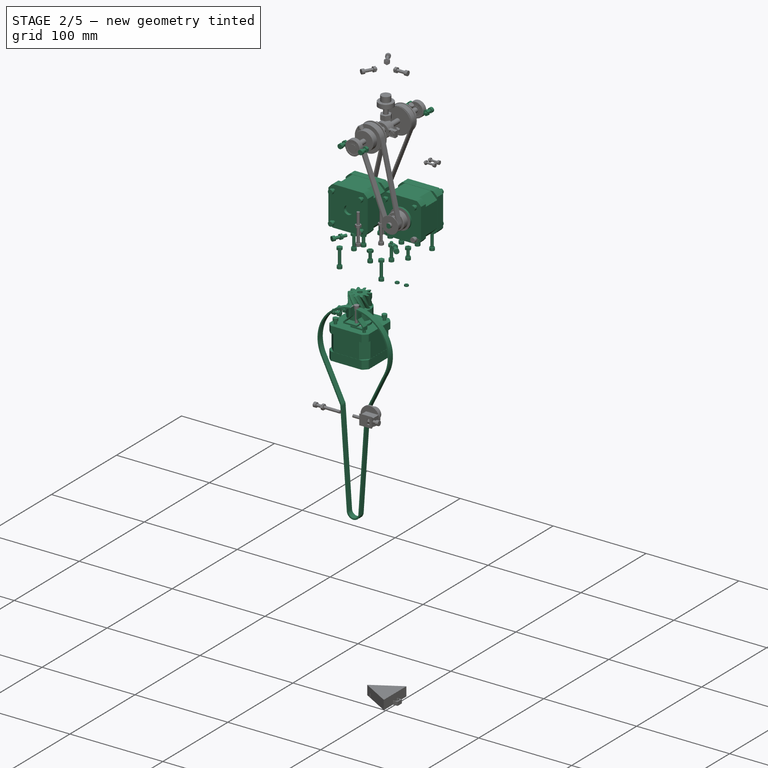
[diagram: stage 2 of 5 — iso view after this stage's code; geometry added in this stage tinted green]
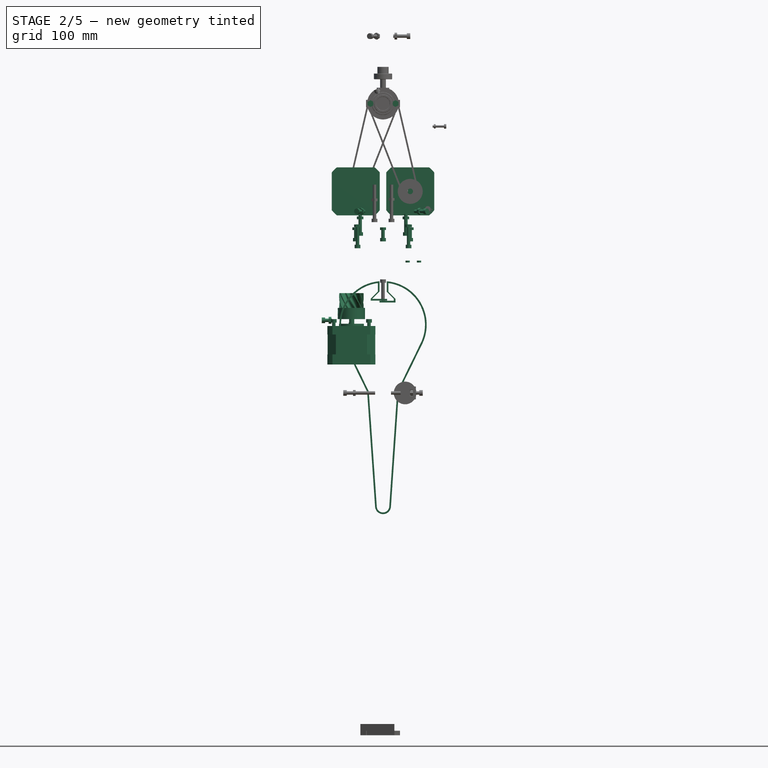
[diagram: stage 2 of 5 — front view after this stage's code; geometry added in this stage tinted green]
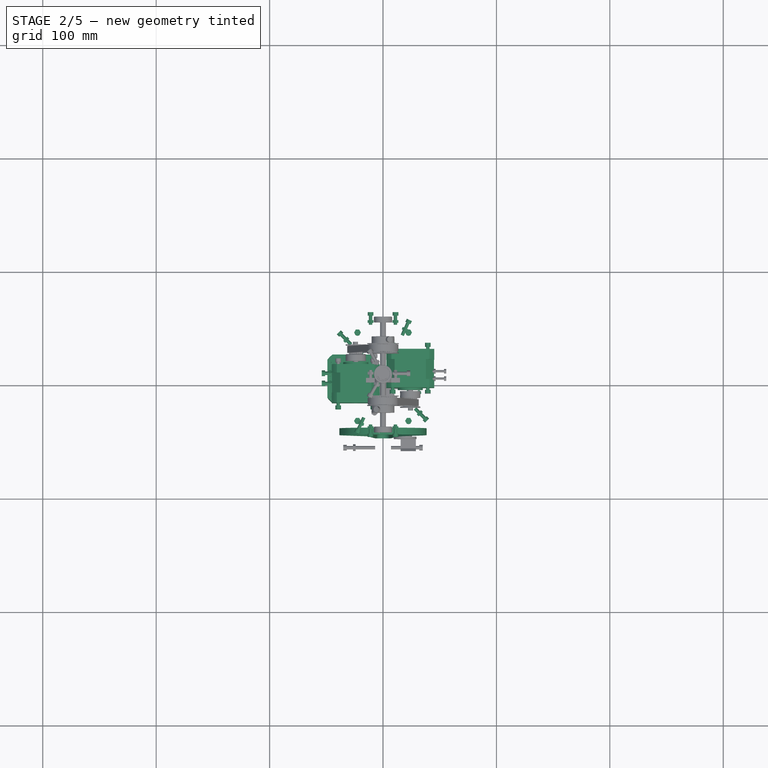
[diagram: stage 2 of 5 — top view after this stage's code; geometry added in this stage tinted green]
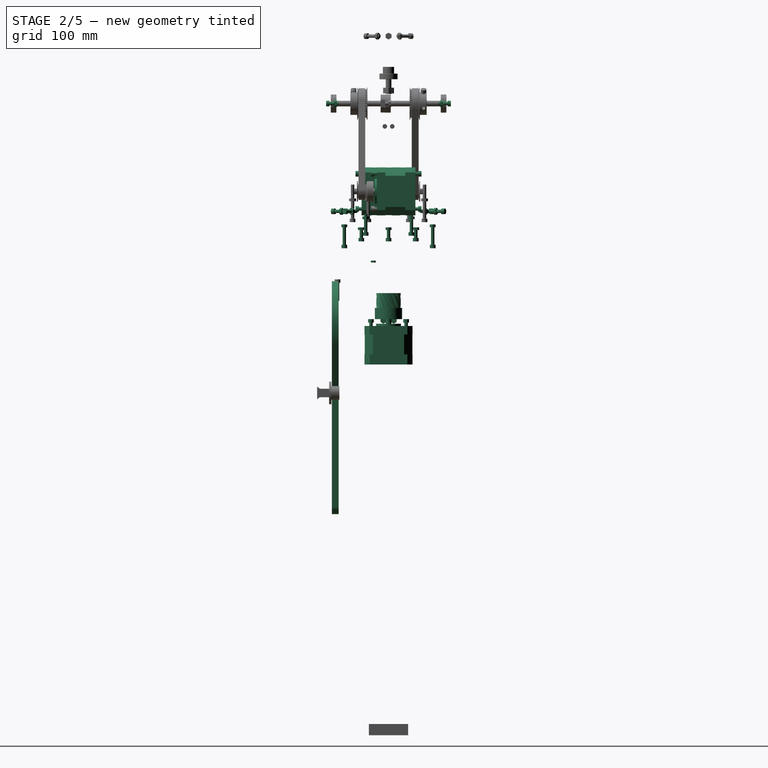
[diagram: stage 2 of 5 — right view after this stage's code; geometry added in this stage tinted green]
FEATURE [Sketcher::SketchObject] Sketch006
  Placement = pos=(0,0,0) rot=(1,0,0;1.5708rad)
  sketch-geometry (6):
    g0: LineSegment StartX=0 StartY=0 StartZ=0 EndX=0 EndY=21 EndZ=0
    g1: LineSegment StartX=0 StartY=21 StartZ=0 EndX=2.5 EndY=21 EndZ=0
    g2: LineSegment StartX=2.5 StartY=21 StartZ=0 EndX=2.5 EndY=18 EndZ=0
    g3: LineSegment StartX=2.5 StartY=18 StartZ=0 EndX=1.5 EndY=18 EndZ=0
    g4: LineSegment StartX=1.5 StartY=18 StartZ=0 EndX=1.5 EndY=0 EndZ=0
    g5: LineSegment StartX=1.5 StartY=0 StartZ=0 EndX=0 EndY=0 EndZ=0
  constraints (17):
    c: Coincident(g-1,g0)
    c: PointOnObject(g0,g-2)
    c: Coincident(g0,g1)
    c: Horizontal(g1)
    c: Coincident(g1,g2)
    c: Vertical(g2)
    c: Coincident(g2,g3)
    c: Horizontal(g3)
    c: Coincident(g3,g4)
    c: Vertical(g4)
    c: Coincident(g4,g5)
    c: Coincident(g5,g0)
    c: Horizontal(g5)
    c: DistanceX(g5) = -1.5
    c: DistanceX(g1) = 2.5
    c: DistanceY(g2) = -3
    c: DistanceY(g4) = -18
FEATURE [PartDesign::Revolution] Revolution006  label="M3x18mm"
  Angle = 360
  Axis = (0,0,1)
  Base = (0,0,0)
  Placement = pos=(0,0,0) rot=(1,0,0;1.5708rad)
  ReferenceAxis = -> Sketch006 [V_Axis]
  Reversed = true
  Sketch = -> Sketch006
FEATURE [Sketcher::SketchObject] Sketch069
  sketch-geometry (8):
    g0: LineSegment StartX=1.86195 StartY=1.075 StartZ=0 EndX=0 EndY=2.15 EndZ=0
    g1: LineSegment StartX=0 StartY=2.15 StartZ=0 EndX=-1.86195 EndY=1.075 EndZ=0
    g2: LineSegment StartX=-1.86195 StartY=1.075 StartZ=0 EndX=-1.86195 EndY=-1.075 EndZ=0
    g3: LineSegment StartX=-1.86195 StartY=-1.075 StartZ=0 EndX=0 EndY=-2.15 EndZ=0
    g4: LineSegment StartX=0 StartY=-2.15 StartZ=0 EndX=1.86195 EndY=-1.075 EndZ=0
    g5: LineSegment StartX=1.86195 StartY=-1.075 StartZ=0 EndX=1.86195 EndY=1.075 EndZ=0
    g6: Circle [constr] CenterX=0 CenterY=0 CenterZ=0 NormalX=0 NormalY=0 NormalZ=1 Radius=2.15
    g7: Circle CenterX=0 CenterY=0 CenterZ=0 NormalX=0 NormalY=0 NormalZ=1 Radius=1
  constraints (18):
    c: Coincident(g0,g1)
    c: Coincident(g1,g2)
    c: Coincident(g2,g3)
    c: Coincident(g3,g4)
    c: Coincident(g4,g5)
    c: Coincident(g5,g0)
    c: Equal(g0, g1-g5) x5
    c: PointOnObject(g0,g6)
    c: PointOnObject(g1,g6)
    c: PointOnObject(g2,g6)
    c: PointOnObject(g3,g6)
    c: PointOnObject(g4,g6)
    c: PointOnObject(g5,g6)
    c: Coincident(g6,g-1)
    c: Vertical(g5)
    c: Radius(g6) = 2.15
    c: Coincident(g7,g-1)
    c: Radius(g7) = 1
FEATURE [PartDesign::Pad] Pad043  label="M2Nut"
  Length = 1.6
  Length2 = 100
  Sketch = -> Sketch069
  Type = 0
FEATURE [Part::FeaturePython] Clone164  label="Clone of M2Nut006"  # Draft clone (typed FeaturePython)
  Objects = -> [Pad043]
  Placement = pos=(21.7,-13.5,416.9) rot=(0,0,1;0rad)
  Scale = (1,1,1)
FEATURE [Part::FeaturePython] Clone165  label="Clone of M2Nut007"  # Draft clone (typed FeaturePython)
  Objects = -> [Pad043]
  Placement = pos=(31.7,-13.5,416.9) rot=(0,0,1;0rad)
  Scale = (1,1,1)
FEATURE [Sketcher::SketchObject] Sketch072
  Placement = pos=(0,0,0) rot=(1,0,0;1.5708rad)
  sketch-geometry (24):
    g0: ArcOfCircle CenterX=0 CenterY=201 CenterZ=0 NormalX=0 NormalY=0 NormalZ=1 Radius=5.5 StartAngle=4.71239 EndAngle=6.21457
    g1: LineSegment StartX=5.48706 StartY=200.623 StartZ=0 EndX=12.3998 EndY=301.217 EndZ=0
    g2: ArcOfCircle CenterX=17.738 CenterY=300.85 CenterZ=0 NormalX=0 NormalY=0 NormalZ=1 Radius=5.35071 StartAngle=2.68694 EndAngle=3.07298
    g3: LineSegment StartX=12.9308 StartY=303.2 StartZ=0 EndX=33.2414 EndY=344.752 EndZ=0
    g4: ArcOfCircle CenterX=0 CenterY=361 CenterZ=0 NormalX=0 NormalY=0 NormalZ=1 Radius=37 StartAngle=5.82854 EndAngle=7.72448
    g5: LineSegment StartX=4.77805 StartY=397.69 StartZ=0 EndX=4.77805 EndY=390.152 EndZ=0
    g6: LineSegment StartX=4.77805 StartY=390.152 StartZ=0 EndX=10.9888 EndY=383.94 EndZ=0
    g7: LineSegment StartX=10.9888 StartY=383.94 StartZ=0 EndX=10.9888 EndY=380.61 EndZ=0
    g8: LineSegment StartX=10.9888 StartY=380.61 StartZ=0 EndX=-3.12887 EndY=380.61 EndZ=0
    g9: LineSegment StartX=-3.12887 StartY=380.61 StartZ=0 EndX=-3.12887 EndY=382.11 EndZ=0
    g10: LineSegment StartX=-3.12887 StartY=382.11 StartZ=0 EndX=9.48883 EndY=382.11 EndZ=0
    g11: LineSegment StartX=9.48883 StartY=382.11 StartZ=0 EndX=9.48883 EndY=383.94 EndZ=0
    g12: LineSegment StartX=9.48883 StartY=383.94 StartZ=0 EndX=3.27805 EndY=390.152 EndZ=0
    g13: LineSegment StartX=3.27805 StartY=390.152 StartZ=0 EndX=3.27805 EndY=399.36 EndZ=0
    g14: ArcOfCircle CenterX=0 CenterY=361 CenterZ=0 NormalX=0 NormalY=0 NormalZ=1 Radius=38.5 StartAngle=5.82854 EndAngle=7.76873
    g15: LineSegment StartX=34.589 StartY=344.093 StartZ=0 EndX=14.2784 EndY=302.541 EndZ=0
    g16: ArcOfCircle CenterX=17.738 CenterY=300.85 CenterZ=0 NormalX=0 NormalY=0 NormalZ=1 Radius=3.85071 StartAngle=2.68694 EndAngle=3.07297
    g17: LineSegment StartX=13.8963 StartY=301.114 StartZ=0 EndX=6.98984 EndY=200.623 EndZ=0
    g18: ArcOfCircle CenterX=0 CenterY=201 CenterZ=0 NormalX=0 NormalY=0 NormalZ=1 Radius=7 StartAngle=4.71239 EndAngle=6.22929
    g19: LineSegment StartX=0 StartY=194 StartZ=0 EndX=0 EndY=195.5 EndZ=0
    g20: LineSegment [constr] StartX=3.27805 StartY=390.152 StartZ=0 EndX=4.77805 EndY=390.152 EndZ=0
    g21: LineSegment [constr] StartX=9.48883 StartY=383.94 StartZ=0 EndX=10.9888 EndY=383.94 EndZ=0
    g22: LineSegment [constr] StartX=12.9308 StartY=303.2 StartZ=0 EndX=14.2784 EndY=302.541 EndZ=0
    g23: LineSegment [constr] StartX=5.48706 StartY=200.623 StartZ=0 EndX=6.98984 EndY=200.623 EndZ=0
  constraints (66):
    c: PointOnObject(g1,g0)
    c: Coincident(g2,g1)
    c: Coincident(g3,g2)
    c: Coincident(g4,g3)
    c: Coincident(g4,g5)
    c: Coincident(g5,g6)
    c: Coincident(g6,g7)
    c: Vertical(g7)
    c: Coincident(g7,g8)
    c: Horizontal(g8)
    c: Coincident(g8,g9)
    c: Vertical(g9)
    c: Coincident(g9,g10)
    c: Horizontal(g10)
    c: Coincident(g10,g11)
    c: Vertical(g11)
    c: Coincident(g11,g12)
    c: Coincident(g12,g13)
    c: Vertical(g13)
    c: Coincident(g14,g4)
    c: Coincident(g14,g13)
    c: Coincident(g15,g14)
    c: Coincident(g16,g2)
    c: Coincident(g16,g15)
    c: Coincident(g17,g16)
    c: PointOnObject(g4,g-2)
    c: PointOnObject(g0,g-2)
    c: Coincident(g0,g1)
    c: Tangent(g0,g1)
    c: PointOnObject(g0,g-2)
    c: Coincident(g18,g0)
    c: Coincident(g18,g17)
    c: PointOnObject(g18,g-2)
    c: Coincident(g19,g18)
    c: Vertical(g19)
    c: Coincident(g19,g0)
    c: DistanceY(g19) = 1.5
    c: DistanceY(g-1,g0) = 201
    c: Radius(g0) = 5.5
    c: Tangent(g16,g17)
    c: Tangent(g1,g2)
    c: Tangent(g16,g15)
    c: Tangent(g2,g3)
    c: Tangent(g3,g4)
    c: Tangent(g15,g14)
    c: Coincident(g20,g12)
    c: Coincident(g20,g5)
    c: Horizontal(g20)
    c: DistanceY(g-1,g4) = 361
    c: Vertical(g5)
    c: Coincident(g21,g11)
    c: Coincident(g21,g6)
    c: Horizontal(g21)
    c: Equal(g21,g20)
    c: Equal(g20,g9)
    c: Equal(g9,g21)
    c: DistanceY(g9) = 1.5
    c: Radius(g4) = 37
    c: Radius(g14) = 38.5
    c: Coincident(g22,g2)
    c: Coincident(g22,g15)
    c: Distance(g22) = 1.5
    c: Coincident(g23,g0)
    c: Coincident(g23,g17)
    c: Horizontal(g23)
    c: DistanceY(g-1,g2) = 300.85
FEATURE [PartDesign::Pad] Pad044
  Length = 6
  Length2 = 100
  Midplane = true
  Placement = pos=(0,0,0) rot=(1,0,0;1.5708rad)
  Sketch = -> Sketch072
  Type = 0
FEATURE [Sketcher::SketchObject] Sketch073
  Placement = pos=(0,0,0) rot=(0,0.707107,0.707107;3.14159rad)
  sketch-geometry (24):
    g0: ArcOfCircle CenterX=0 CenterY=201 CenterZ=0 NormalX=0 NormalY=0 NormalZ=1 Radius=5.5 StartAngle=4.71239 EndAngle=6.21399
    g1: LineSegment StartX=5.48684 StartY=200.62 StartZ=0 EndX=12.4586 EndY=301.216 EndZ=0
    g2: ArcOfCircle CenterX=17.738 CenterY=300.85 CenterZ=0 NormalX=0 NormalY=0 NormalZ=1 Radius=5.29202 StartAngle=2.68821 EndAngle=3.0724
    g3: LineSegment StartX=12.9806 StartY=303.168 StartZ=0 EndX=33.2619 EndY=344.794 EndZ=0
    g4: ArcOfCircle CenterX=0 CenterY=361 CenterZ=0 NormalX=0 NormalY=0 NormalZ=1 Radius=37 StartAngle=5.8298 EndAngle=7.73052
    g5: LineSegment StartX=4.55634 StartY=397.718 StartZ=0 EndX=4.55634 EndY=390.317 EndZ=0
    g6: LineSegment StartX=4.55634 StartY=390.317 StartZ=0 EndX=10.8266 EndY=384.032 EndZ=0
    g7: LineSegment StartX=10.8266 StartY=384.032 StartZ=0 EndX=10.8266 EndY=382.298 EndZ=0
    g8: LineSegment StartX=10.8266 StartY=382.298 StartZ=0 EndX=-3.61538 EndY=382.298 EndZ=0
    g9: LineSegment StartX=-3.61538 StartY=382.298 StartZ=0 EndX=-3.61538 EndY=383.798 EndZ=0
    g10: LineSegment StartX=-3.61538 StartY=383.798 StartZ=0 EndX=9.32656 EndY=383.798 EndZ=0
    g11: LineSegment StartX=9.32656 StartY=383.798 StartZ=0 EndX=9.32656 EndY=384.032 EndZ=0
    g12: LineSegment StartX=9.32656 StartY=384.032 StartZ=0 EndX=3.05634 EndY=390.317 EndZ=0
    g13: LineSegment StartX=3.05634 StartY=390.317 StartZ=0 EndX=3.05634 EndY=399.378 EndZ=0
    g14: ArcOfCircle CenterX=0 CenterY=361 CenterZ=0 NormalX=0 NormalY=0 NormalZ=1 Radius=38.5 StartAngle=5.8298 EndAngle=7.77451
    g15: LineSegment StartX=34.6104 StartY=344.137 StartZ=0 EndX=14.3291 EndY=302.511 EndZ=0
    g16: ArcOfCircle CenterX=17.738 CenterY=300.85 CenterZ=0 NormalX=0 NormalY=0 NormalZ=1 Radius=3.79202 StartAngle=2.68821 EndAngle=3.07239
    g17: LineSegment StartX=13.955 StartY=301.112 StartZ=0 EndX=6.98966 EndY=200.62 EndZ=0
    g18: ArcOfCircle CenterX=0 CenterY=201 CenterZ=0 NormalX=0 NormalY=0 NormalZ=1 Radius=7 StartAngle=4.71239 EndAngle=6.22883
    g19: LineSegment StartX=0 StartY=194 StartZ=0 EndX=0 EndY=195.5 EndZ=0
    g20: LineSegment [constr] StartX=3.05634 StartY=390.317 StartZ=0 EndX=4.55634 EndY=390.317 EndZ=0
    g21: LineSegment [constr] StartX=9.32656 StartY=384.032 StartZ=0 EndX=10.8266 EndY=384.032 EndZ=0
    g22: LineSegment [constr] StartX=12.9806 StartY=303.168 StartZ=0 EndX=14.3291 EndY=302.511 EndZ=0
    g23: LineSegment [constr] StartX=5.48684 StartY=200.62 StartZ=0 EndX=6.98966 EndY=200.62 EndZ=0
  constraints (66):
    c: PointOnObject(g1,g0)
    c: Coincident(g2,g1)
    c: Coincident(g3,g2)
    c: Coincident(g4,g3)
    c: Coincident(g4,g5)
    c: Coincident(g5,g6)
    c: Coincident(g6,g7)
    c: Vertical(g7)
    c: Coincident(g7,g8)
    c: Horizontal(g8)
    c: Coincident(g8,g9)
    c: Vertical(g9)
    c: Coincident(g9,g10)
    c: Horizontal(g10)
    c: Coincident(g10,g11)
    c: Vertical(g11)
    c: Coincident(g11,g12)
    c: Coincident(g12,g13)
    c: Vertical(g13)
    c: Coincident(g14,g4)
    c: Coincident(g14,g13)
    c: Coincident(g15,g14)
    c: Coincident(g16,g2)
    c: Coincident(g16,g15)
    c: Coincident(g17,g16)
    c: PointOnObject(g4,g-2)
    c: PointOnObject(g0,g-2)
    c: Coincident(g0,g1)
    c: Tangent(g0,g1)
    c: PointOnObject(g0,g-2)
    c: Coincident(g18,g0)
    c: Coincident(g18,g17)
    c: PointOnObject(g18,g-2)
    c: Coincident(g19,g18)
    c: Vertical(g19)
    c: Coincident(g19,g0)
    c: DistanceY(g19) = 1.5
    c: DistanceY(g-1,g0) = 201
    c: Radius(g0) = 5.5
    c: Tangent(g16,g17)
    c: Tangent(g1,g2)
    c: Tangent(g16,g15)
    c: Tangent(g2,g3)
    c: Tangent(g3,g4)
    c: Tangent(g15,g14)
    c: Coincident(g20,g12)
    c: Coincident(g20,g5)
    c: Horizontal(g20)
    c: DistanceY(g-1,g4) = 361
    c: Vertical(g5)
    c: Coincident(g21,g11)
    c: Coincident(g21,g6)
    c: Horizontal(g21)
    c: Equal(g21,g20)
    c: Equal(g20,g9)
    c: Equal(g9,g21)
    c: DistanceY(g9) = 1.5
    c: Radius(g4) = 37
    c: Radius(g14) = 38.5
    c: Coincident(g22,g2)
    c: Coincident(g22,g15)
    c: Distance(g22) = 1.5
    c: Coincident(g23,g0)
    c: Coincident(g23,g17)
    c: Horizontal(g23)
    c: DistanceY(g-1,g2) = 300.85
FEATURE [PartDesign::Pad] Pad045
  Length = 6
  Length2 = 100
  Midplane = true
  Placement = pos=(0,0,0) rot=(0,0.707107,0.707107;3.14159rad)
  Sketch = -> Sketch073
  Type = 0
FEATURE [Part::MultiFuse] Fusion154  label="GT2Belt"
  Placement = pos=(0,-47,1) rot=(0,0,1;0rad)
  Shapes = -> [Pad045,Pad044]
FEATURE [Part::FeaturePython] Clone166  label="Clone of M3Nut049"  # Draft clone (typed FeaturePython)
  Objects = -> [Pad]
  Placement = pos=(7.49e-10,24,445.5) rot=(0,0,1;0rad)
  Scale = (1,1,1)
FEATURE [Part::FeaturePython] Clone167  label="Clone of M3Nut050"  # Draft clone (typed FeaturePython)
  Objects = -> [Pad]
  Placement = pos=(-24,7.49e-10,445.5) rot=(0,0,1;1.5708rad)
  Scale = (1,1,1)
FEATURE [Part::FeaturePython] Clone168  label="Clone of M3Nut051"  # Draft clone (typed FeaturePython)
  Objects = -> [Pad]
  Placement = pos=(-7.49e-10,-24,445.5) rot=(0,0,1;3.14159rad)
  Scale = (1,1,1)
FEATURE [Part::FeaturePython] Clone169  label="Clone of M3Nut052"  # Draft clone (typed FeaturePython)
  Objects = -> [Pad]
  Placement = pos=(24,-7.49e-10,445.5) rot=(0,0,-1;1.5708rad)
  Scale = (1,1,1)
FEATURE [Part::FeaturePython] Clone170  label="Clone of M3Nut053"  # Draft clone (typed FeaturePython)
  Objects = -> [Pad]
  Placement = pos=(22.5,38.9711,448) rot=(0,0,1;0.523599rad)
  Scale = (1,1,1)
FEATURE [Part::FeaturePython] Clone171  label="Clone of M3Nut054"  # Draft clone (typed FeaturePython)
  Objects = -> [Pad]
  Placement = pos=(-22.5,38.9711,448) rot=(0,0,1;0.523599rad)
  Scale = (1,1,1)
FEATURE [Part::FeaturePython] Clone172  label="Clone of M3Nut055"  # Draft clone (typed FeaturePython)
  Objects = -> [Pad]
  Placement = pos=(22.5,-38.9711,448) rot=(0,0,1;0.523599rad)
  Scale = (1,1,1)
FEATURE [Part::FeaturePython] Clone173  label="Clone of M3Nut056"  # Draft clone (typed FeaturePython)
  Objects = -> [Pad]
  Placement = pos=(-22.5,-38.9711,448) rot=(0,0,1;0.523599rad)
  Scale = (1,1,1)
FEATURE [Part::FeaturePython] Clone174  label="Clone of M3x18mm"  # Draft clone (typed FeaturePython)
  Objects = -> [Revolution006]
  Placement = pos=(22.5,38.9711,450.5) rot=(-1,0,0;1.5708rad)
  Scale = (1,1,1)
FEATURE [Part::FeaturePython] Clone175  label="Clone of M3x18mm001"  # Draft clone (typed FeaturePython)
  Objects = -> [Revolution006]
  Placement = pos=(22.5,-38.9711,450.5) rot=(-1,0,0;1.5708rad)
  Scale = (1,1,1)
FEATURE [Part::FeaturePython] Clone176  label="Clone of M3x18mm002"  # Draft clone (typed FeaturePython)
  Objects = -> [Revolution006]
  Placement = pos=(-22.5,38.9711,450.5) rot=(-1,0,0;1.5708rad)
  Scale = (1,1,1)
FEATURE [Part::FeaturePython] Clone177  label="Clone of M3x18mm003"  # Draft clone (typed FeaturePython)
  Objects = -> [Revolution006]
  Placement = pos=(-22.5,-38.9711,450.5) rot=(-1,0,0;1.5708rad)
  Scale = (1,1,1)
FEATURE [Part::FeaturePython] Clone178  label="Clone of M3x8mm018"  # Draft clone (typed FeaturePython)
  Objects = -> [Revolution011]
  Placement = pos=(24,-7.56e-10,446.5) rot=(-1,0,0;1.5708rad)
  Scale = (1,1,1)
FEATURE [Part::FeaturePython] Clone179  label="Clone of M3x8mm019"  # Draft clone (typed FeaturePython)
  Objects = -> [Revolution011]
  Placement = pos=(7.56e-10,24,446.5) rot=(0.57735,0.57735,-0.57735;4.18879rad)
  Scale = (1,1,1)
FEATURE [Part::FeaturePython] Clone180  label="Clone of M3x8mm020"  # Draft clone (typed FeaturePython)
  Objects = -> [Revolution011]
  Placement = pos=(-7.56e-10,-24,446.5) rot=(0.57735,-0.57735,0.57735;4.18879rad)
  Scale = (1,1,1)
FEATURE [Part::FeaturePython] Clone181  label="Clone of M3x8mm021"  # Draft clone (typed FeaturePython)
  Objects = -> [Revolution011]
  Placement = pos=(-24,7.56e-10,446.5) rot=(0,-0.707107,0.707107;3.14159rad)
  Scale = (1,1,1)
FEATURE [Part::FeaturePython] Clone182  label="Clone of M3Nut057"  # Draft clone (typed FeaturePython)
  Objects = -> [Pad]
  Placement = pos=(-47.95,-4.5,365.9) rot=(0.250563,0.935113,0.250563;1.63783rad)
  Scale = (1,1,1)
FEATURE [Part::FeaturePython] Clone183  label="Clone of M3Nut058"  # Draft clone (typed FeaturePython)
  Objects = -> [Pad]
  Placement = pos=(-47.95,4.5,365.9) rot=(0.250563,0.935113,0.250563;1.63783rad)
  Scale = (1,1,1)
FEATURE [Part::FeaturePython] Clone184  label="Clone of M3x6mm002"  # Draft clone (typed FeaturePython)
  Objects = -> [Revolution012]
  Placement = pos=(-45,4.5,365.9) rot=(0.57735,-0.57735,0.57735;2.0944rad)
  Scale = (1,1,1)
FEATURE [Part::FeaturePython] Clone185  label="Clone of M3x6mm003"  # Draft clone (typed FeaturePython)
  Objects = -> [Revolution012]
  Placement = pos=(-45,-4.5,365.9) rot=(0.57735,-0.57735,0.57735;2.0944rad)
  Scale = (1,1,1)
FEATURE [Part::Feature] Chamfer_solid  label="NEMA-17_Stepper_Motor_34mm"
  shape: bbox 42.3 x 42.3 x 54 mm, 55 faces (baked)
FEATURE [App::DocumentObjectGroup] Group018  label="Steppers"
  Group = -> [Part__Feature,Pocket007001,Chamfer_solid]
FEATURE [Part::FeaturePython] Clone186  label="Clone of M3x8mm022"  # Draft clone (typed FeaturePython)
  Objects = -> [Revolution011]
  Placement = pos=(-12.35,-15.5,355.9) rot=(1,0,0;1.5708rad)
  Scale = (1,1,1)
FEATURE [Part::FeaturePython] Clone187  label="Clone of M3x8mm023"  # Draft clone (typed FeaturePython)
  Objects = -> [Revolution011]
  Placement = pos=(-12.35,15.5,355.9) rot=(1,0,0;1.5708rad)
  Scale = (1,1,1)
FEATURE [Part::FeaturePython] Clone188  label="Clone of M3x8mm024"  # Draft clone (typed FeaturePython)
  Objects = -> [Revolution011]
  Placement = pos=(-43.35,15.5,355.9) rot=(1,0,0;1.5708rad)
  Scale = (1,1,1)
FEATURE [Part::FeaturePython] Clone189  label="Clone of M3x8mm025"  # Draft clone (typed FeaturePython)
  Objects = -> [Revolution011]
  Placement = pos=(-43.35,-15.5,355.9) rot=(1,0,0;1.5708rad)
  Scale = (1,1,1)
FEATURE [Part::FeaturePython] Art4MotorGear_01  # a2plus imported part (geometry in sourceFile) (typed FeaturePython)
  Placement = pos=(-27.85,-6.63e-10,366.9) rot=(0,0,1;0rad)
  fixedPosition = false
  sourceFile = <userpath>/repos/mio/Thor/freecad-src/Art4MotorGear.fcstd
  timeLastImport = 1.45867e+09
  updateColors = true
FEATURE [App::DocumentObjectGroup] Group005  label="Art4"
  Group = -> [Art4MotorFix_01,Art4BearingRing_01,Art4BearingFix_01,Art4BodyBot_01,Art4ody_01,Art4Optodisk_01,Art4TransmissionColumn_01,Clone,Art4MotorGear_01]
FEATURE [Part::FeaturePython] Clone191  label="Clone of M3Nut059"  # Draft clone (typed FeaturePython)
  Objects = -> [Pad]
  Placement = pos=(-32.15,-6.63e-10,372.4) rot=(0.250563,-0.935113,-0.250563;1.63783rad)
  Scale = (1,1,1)
FEATURE [Part::FeaturePython] Clone192  label="Clone of M3x8mm026"  # Draft clone (typed FeaturePython)
  Objects = -> [Revolution011]
  Placement = pos=(-28.85,-6.63e-10,372.4) rot=(0.57735,-0.57735,0.57735;2.0944rad)
  Scale = (1,1,1)
FEATURE [Part::FeaturePython] Clone193  label="Clone of M3x16mm004"  # Draft clone (typed FeaturePython)
  Objects = -> [Revolution007]
  Placement = pos=(-20.1525,-20.1525,459.5) rot=(0.57735,0.57735,-0.57735;4.18879rad)
  Scale = (1,1,1)
FEATURE [Part::FeaturePython] Clone194  label="Clone of M3x16mm005"  # Draft clone (typed FeaturePython)
  Objects = -> [Revolution007]
  Placement = pos=(20.1525,20.1525,459.5) rot=(0.57735,-0.57735,0.57735;4.18879rad)
  Scale = (1,1,1)
FEATURE [Part::FeaturePython] Clone195  label="Clone of M3x16mm006"  # Draft clone (typed FeaturePython)
  Objects = -> [Revolution007]
  Placement = pos=(20.1525,-20.1525,459.5) rot=(0,-0.707107,0.707107;3.14159rad)
  Scale = (1,1,1)
FEATURE [Part::FeaturePython] Clone196  label="Clone of M3x16mm007"  # Draft clone (typed FeaturePython)
  Objects = -> [Revolution007]
  Placement = pos=(-20.1525,20.1525,459.5) rot=(-1,0,0;1.5708rad)
  Scale = (1,1,1)
FEATURE [Part::FeaturePython] Clone197  label="Clone of M3Nut060"  # Draft clone (typed FeaturePython)
  Objects = -> [Pad]
  Placement = pos=(20.1525,20.1525,455) rot=(0,0,1;0.261799rad)
  Scale = (1,1,1)
FEATURE [Part::FeaturePython] Clone198  label="Clone of M3Nut061"  # Draft clone (typed FeaturePython)
  Objects = -> [Pad]
  Placement = pos=(-20.1525,20.1525,455) rot=(0,0,1;1.8326rad)
  Scale = (1,1,1)
FEATURE [Part::FeaturePython] Clone199  label="Clone of M3Nut062"  # Draft clone (typed FeaturePython)
  Objects = -> [Pad]
  Placement = pos=(20.1525,-20.1525,455) rot=(0,0,-1;1.309rad)
  Scale = (1,1,1)
FEATURE [Part::FeaturePython] Clone200  label="Clone of M3Nut063"  # Draft clone (typed FeaturePython)
  Objects = -> [Pad]
  Placement = pos=(-20.1525,-20.1525,455) rot=(0,0,1;3.40339rad)
  Scale = (1,1,1)
FEATURE [Part::FeaturePython] Clone201  label="Clone of M3Nut064"  # Draft clone (typed FeaturePython)
  Objects = -> [Pad]
  Placement = pos=(31.537,-31.537,462) rot=(0.862856,0.357407,0.357407;1.71777rad)
  Scale = (1,1,1)
FEATURE [Part::FeaturePython] Clone202  label="Clone of M3Nut065"  # Draft clone (typed FeaturePython)
  Objects = -> [Pad]
  Placement = pos=(-18.8488,-40.4213,462) rot=(0.954201,-0.211541,-0.211541;1.61766rad)
  Scale = (1,1,1)
FEATURE [Part::FeaturePython] Clone203  label="Clone of M3Nut066"  # Draft clone (typed FeaturePython)
  Objects = -> [Pad]
  Placement = pos=(18.8488,40.4213,462) rot=(0.15487,0.698575,0.698575;2.83429rad)
  Scale = (1,1,1)
FEATURE [Part::FeaturePython] Clone204  label="Clone of M3Nut067"  # Draft clone (typed FeaturePython)
  Objects = -> [Pad]
  Placement = pos=(-31.537,31.537,462) rot=(-0.281085,0.678598,0.678598;3.68962rad)
  Scale = (1,1,1)
FEATURE [Part::FeaturePython] Clone205  label="Clone of M3x12mm008"  # Draft clone (typed FeaturePython)
  Objects = -> [Revolution008]
  Placement = pos=(-28.2843,28.2843,462) rot=(0,0,1;0.785398rad)
  Scale = (1,1,1)
FEATURE [Part::FeaturePython] Clone206  label="Clone of M3x12mm009"  # Draft clone (typed FeaturePython)
  Objects = -> [Revolution008]
  Placement = pos=(16.9047,36.2523,462) rot=(0,0,-1;0.436332rad)
  Scale = (1,1,1)
FEATURE [Part::FeaturePython] Clone207  label="Clone of M3x12mm010"  # Draft clone (typed FeaturePython)
  Objects = -> [Revolution008]
  Placement = pos=(-16.9047,-36.2523,462) rot=(0,0,1;2.70526rad)
  Scale = (1,1,1)
FEATURE [Part::FeaturePython] Clone208  label="Clone of M3x12mm011"  # Draft clone (typed FeaturePython)
  Objects = -> [Revolution008]
  Placement = pos=(28.2843,-28.2843,462) rot=(0,0,1;3.92699rad)
  Scale = (1,1,1)
FEATURE [Part::FeaturePython] Clone209  label="Clone of M3Nut068"  # Draft clone (typed FeaturePython)
  Objects = -> [Pad]
  Placement = pos=(11,-45.6,557) rot=(1,0,0;1.5708rad)
  Scale = (1,1,1)
FEATURE [Part::FeaturePython] Clone210  label="Clone of M3Nut069"  # Draft clone (typed FeaturePython)
  Objects = -> [Pad]
  Placement = pos=(-11,-45.6,557) rot=(1,0,0;1.5708rad)
  Scale = (1,1,1)
FEATURE [Part::FeaturePython] Clone211  label="Clone of M3Nut070"  # Draft clone (typed FeaturePython)
  Objects = -> [Pad]
  Placement = pos=(-11,45.6,557) rot=(0,0.707107,0.707107;3.14159rad)
  Scale = (1,1,1)
FEATURE [Part::FeaturePython] Clone212  label="Clone of M3Nut071"  # Draft clone (typed FeaturePython)
  Objects = -> [Pad]
  Placement = pos=(11,45.6,557) rot=(0,0.707107,0.707107;3.14159rad)
  Scale = (1,1,1)
FEATURE [Part::FeaturePython] Clone213  label="Clone of M3x8mm027"  # Draft clone (typed FeaturePython)
  Objects = -> [Revolution011]
  Placement = pos=(11,44,557) rot=(0,0,1;0rad)
  Scale = (1,1,1)
FEATURE [Part::FeaturePython] Clone214  label="Clone of M3x8mm028"  # Draft clone (typed FeaturePython)
  Objects = -> [Revolution011]
  Placement = pos=(-11,44,557) rot=(0,0,1;0rad)
  Scale = (1,1,1)
FEATURE [Part::FeaturePython] Clone215  label="Clone of M3x8mm029"  # Draft clone (typed FeaturePython)
  Objects = -> [Revolution011]
  Placement = pos=(-11,-44,557) rot=(0,0,1;3.14159rad)
  Scale = (1,1,1)
FEATURE [Part::FeaturePython] Clone216  label="Clone of M3x8mm030"  # Draft clone (typed FeaturePython)
  Objects = -> [Revolution011]
  Placement = pos=(11,-44,557) rot=(0,0,1;3.14159rad)
  Scale = (1,1,1)
FEATURE [Part::FeaturePython] Clone217  label="Clone of NEMA-17_Stepper_Motor_34mm"  # Draft clone (typed FeaturePython)
  Objects = -> [Chamfer_solid]
  Placement = pos=(-27.85,-6.25e-10,326.9) rot=(0,0,1;0rad)
  Scale = (1,1,1)
FEATURE [App::DocumentObjectGroup] Group024  label="Comp-Art4"
  Group = -> [Clone161,Clone162,Clone163,Clone164,Clone165,Clone166,Clone167,Clone168,Clone169,Clone170,Clone171,Clone172,Clone173,Clone174,Clone175,Clone176,Clone177,Clone178,Clone179,Clone180,Clone181,Clone182,Clone183,Clone184,Clone185,Clone186,Clone187,Clone188,Clone189,Clone192,Clone191,Clone193,Clone194,Clone195,Clone196,Clone197,Clone198,Clone199,Clone200,Clone201,Clone202,Clone203,Clone204,Clone205,+12 more]
FEATURE [Part::FeaturePython] Clone218  label="Clone of NEMA-17_Stepper_Motor_34mm001"  # Draft clone (typed FeaturePython)
  Objects = -> [Chamfer_solid]
  Placement = pos=(24,23.7,479.6) rot=(1,0,0;1.5708rad)
  Scale = (1,1,1)
FEATURE [Part::FeaturePython] Clone219  label="Clone of NEMA-17_Stepper_Motor_34mm002"  # Draft clone (typed FeaturePython)
  Objects = -> [Chamfer_solid]
  Placement = pos=(-24,-23.7,479.6) rot=(0,0.707107,0.707107;3.14159rad)
  Scale = (1,1,1)
FEATURE [Sketcher::SketchObject] Sketch074
  Placement = pos=(0,0,0) rot=(1,0,0;1.5708rad)
  sketch-geometry (6):
    g0: LineSegment StartX=0 StartY=0 StartZ=0 EndX=0 EndY=31 EndZ=0
    g1: LineSegment StartX=0 StartY=31 StartZ=0 EndX=2.5 EndY=31 EndZ=0
    g2: LineSegment StartX=2.5 StartY=31 StartZ=0 EndX=2.5 EndY=28 EndZ=0
    g3: LineSegment StartX=2.5 StartY=28 StartZ=0 EndX=1.5 EndY=28 EndZ=0
    g4: LineSegment StartX=1.5 StartY=28 StartZ=0 EndX=1.5 EndY=0 EndZ=0
    g5: LineSegment StartX=1.5 StartY=0 StartZ=0 EndX=0 EndY=0 EndZ=0
  constraints (17):
    c: Coincident(g-1,g0)
    c: PointOnObject(g0,g-2)
    c: Coincident(g0,g1)
    c: Horizontal(g1)
    c: Coincident(g1,g2)
    c: Vertical(g2)
    c: Coincident(g2,g3)
    c: Horizontal(g3)
    c: Coincident(g3,g4)
    c: Vertical(g4)
    c: Coincident(g4,g5)
    c: Coincident(g5,g0)
    c: Horizontal(g5)
    c: DistanceX(g5) = -1.5
    c: DistanceX(g1) = 2.5
    c: DistanceY(g2) = -3
    c: DistanceY(g4) = -28
FEATURE [PartDesign::Revolution] Revolution013  label="M3x28mm"
  Angle = 360
  Axis = (0,0,1)
  Base = (0,0,0)
  Placement = pos=(0,0,0) rot=(1,0,0;1.5708rad)
  ReferenceAxis = -> Sketch074 [V_Axis]
  Reversed = true
  Sketch = -> Sketch074
FEATURE [App::DocumentObjectGroup] Group011  label="M3 Bolts"
  Group = -> [Revolution,Revolution001,Revolution002,Revolution003,Revolution004,Revolution005,Revolution006,Revolution007,Revolution008,Revolution009,Revolution011,Revolution012,Pocket001,Revolution013]
FEATURE [Part::FeaturePython] Clone220  label="Clone of M3x28mm"  # Draft clone (typed FeaturePython)
  Objects = -> [Revolution013]
  Placement = pos=(-39.5,1.9,495.1) rot=(1,0,0;3.14159rad)
  Scale = (1,1,1)
FEATURE [Part::FeaturePython] Clone221  label="Clone of M3x28mm001"  # Draft clone (typed FeaturePython)
  Objects = -> [Revolution013]
  Placement = pos=(-8.5,1.9,495.1) rot=(1,0,0;3.14159rad)
  Scale = (1,1,1)
FEATURE [Part::FeaturePython] Clone222  label="Clone of M3x28mm002"  # Draft clone (typed FeaturePython)
  Objects = -> [Revolution013]
  Placement = pos=(-39.5,1.9,464.1) rot=(1,0,0;3.14159rad)
  Scale = (1,1,1)
FEATURE [Part::FeaturePython] Clone223  label="Clone of M3x28mm003"  # Draft clone (typed FeaturePython)
  Objects = -> [Revolution013]
  Placement = pos=(-8.5,1.9,464.1) rot=(1,0,0;3.14159rad)
  Scale = (1,1,1)
FEATURE [Part::FeaturePython] Clone224  label="Clone of M3x28mm004"  # Draft clone (typed FeaturePython)
  Objects = -> [Revolution013]
  Placement = pos=(39.5,-1.9,495.1) rot=(0,1,0;3.14159rad)
  Scale = (1,1,1)
FEATURE [Part::FeaturePython] Clone225  label="Clone of M3x28mm005"  # Draft clone (typed FeaturePython)
  Objects = -> [Revolution013]
  Placement = pos=(8.5,-1.9,495.1) rot=(0,1,0;3.14159rad)
  Scale = (1,1,1)
FEATURE [Part::FeaturePython] Clone226  label="Clone of M3x28mm006"  # Draft clone (typed FeaturePython)
  Objects = -> [Revolution013]
  Placement = pos=(39.5,-1.9,464.1) rot=(0,1,0;3.14159rad)
  Scale = (1,1,1)
FEATURE [Part::FeaturePython] Clone227  label="Clone of M3x28mm007"  # Draft clone (typed FeaturePython)
  Objects = -> [Revolution013]
  Placement = pos=(8.5,-1.9,464.1) rot=(0,1,0;3.14159rad)
  Scale = (1,1,1)
FEATURE [Part::FeaturePython] Clone228  label="Clone of M3x8mm031"  # Draft clone (typed FeaturePython)
  Objects = -> [Revolution011]
  Placement = pos=(8.5,-4.3,495.1) rot=(1,0,0;3.14159rad)
  Scale = (1,1,1)
FEATURE [Part::FeaturePython] Clone229  label="Clone of M3x8mm032"  # Draft clone (typed FeaturePython)
  Objects = -> [Revolution011]
  Placement = pos=(39.5,-4.3,495.1) rot=(1,0,0;3.14159rad)
  Scale = (1,1,1)
FEATURE [Part::FeaturePython] Clone230  label="Clone of M3x8mm033"  # Draft clone (typed FeaturePython)
  Objects = -> [Revolution011]
  Placement = pos=(8.5,-4.3,464.1) rot=(1,0,0;3.14159rad)
  Scale = (1,1,1)
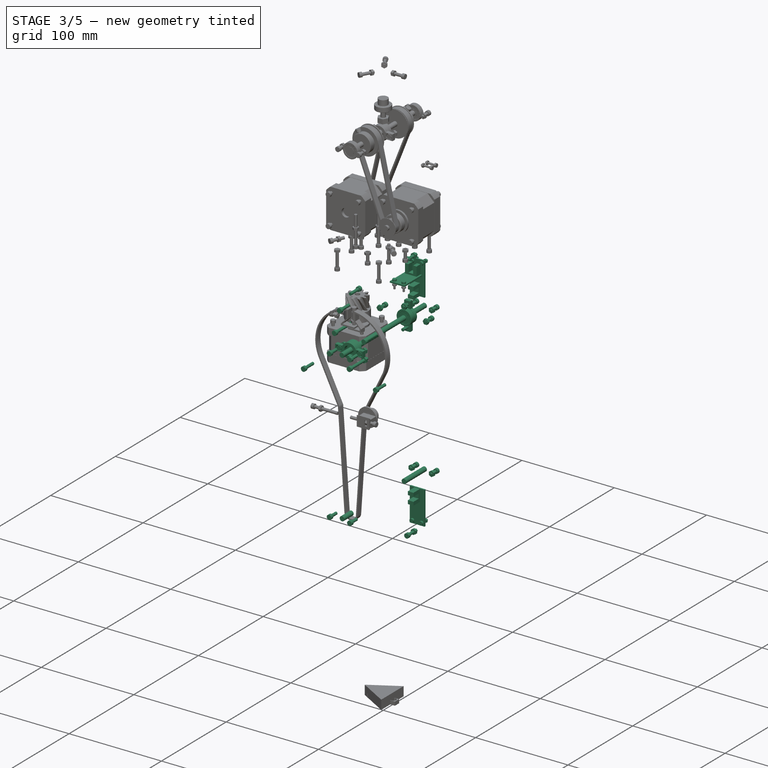
[diagram: stage 3 of 5 — iso view after this stage's code; geometry added in this stage tinted green]
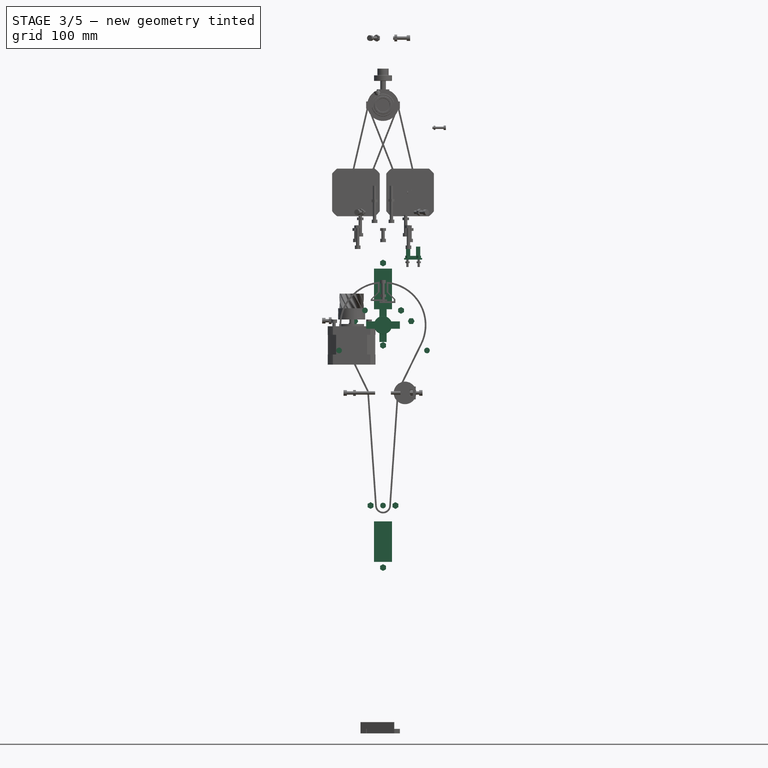
[diagram: stage 3 of 5 — front view after this stage's code; geometry added in this stage tinted green]
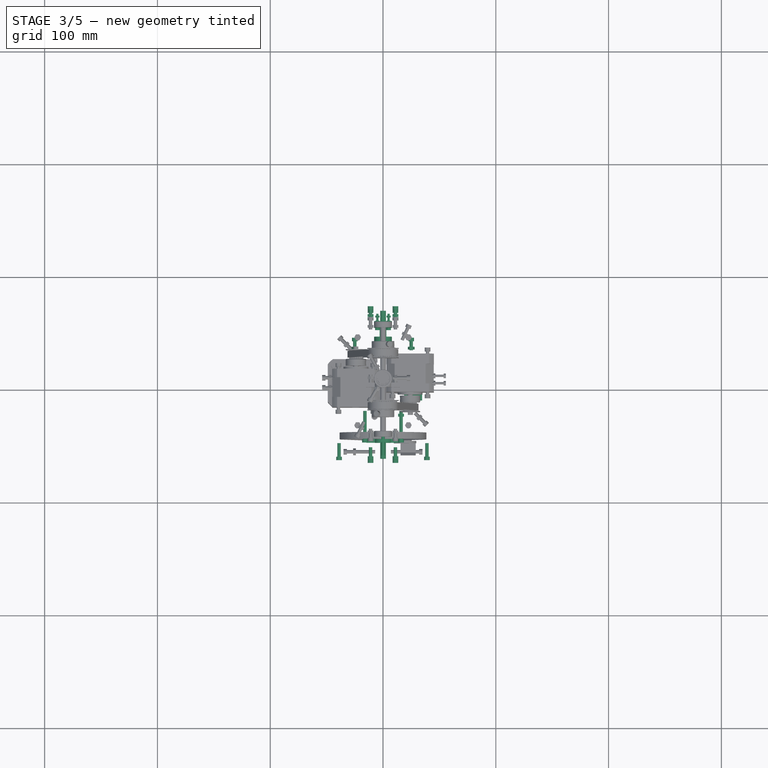
[diagram: stage 3 of 5 — top view after this stage's code; geometry added in this stage tinted green]
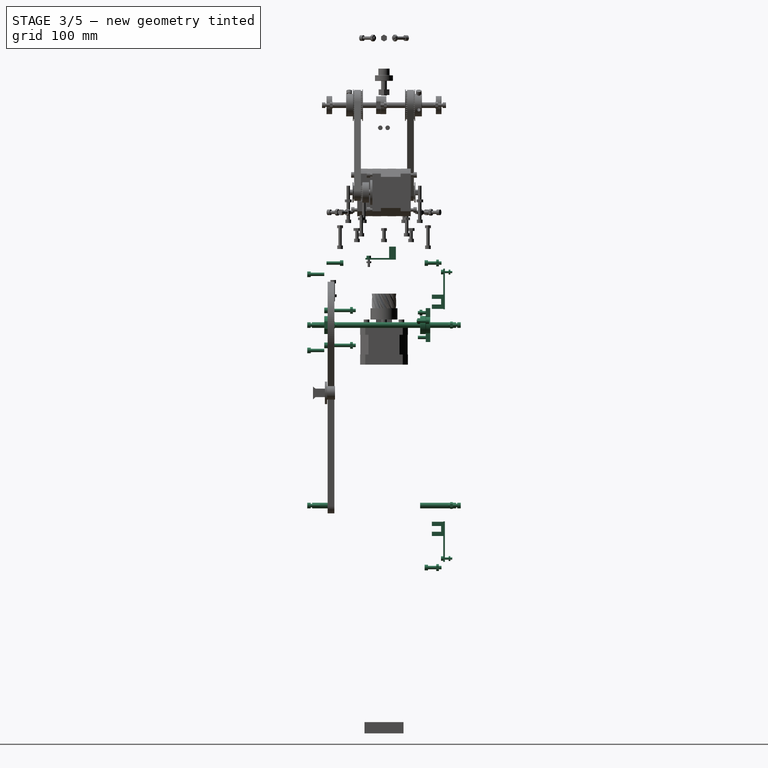
[diagram: stage 3 of 5 — right view after this stage's code; geometry added in this stage tinted green]
FEATURE [Sketcher::SketchObject] Sketch067
  Placement = pos=(13,8,1.5) rot=(0.57735,-0.57735,0.57735;2.0944rad)
  sketch-geometry (8):
    g0: LineSegment StartX=0 StartY=0 StartZ=0 EndX=10 EndY=0 EndZ=0
    g1: LineSegment StartX=10 StartY=0 StartZ=0 EndX=10 EndY=3.8 EndZ=0
    g2: LineSegment StartX=10 StartY=3.8 StartZ=0 EndX=1.85 EndY=3.8 EndZ=0
    g3: LineSegment StartX=1.85 StartY=3.8 StartZ=0 EndX=1.85 EndY=8.8 EndZ=0
    g4: LineSegment StartX=1.85 StartY=8.8 StartZ=0 EndX=10 EndY=8.8 EndZ=0
    g5: LineSegment StartX=10 StartY=8.8 StartZ=0 EndX=10 EndY=12.6 EndZ=0
    g6: LineSegment StartX=10 StartY=12.6 StartZ=0 EndX=0 EndY=12.6 EndZ=0
    g7: LineSegment StartX=0 StartY=12.6 StartZ=0 EndX=0 EndY=0 EndZ=0
  constraints (24):
    c: Coincident(g-1,g0)
    c: PointOnObject(g0,g-1)
    c: Coincident(g0,g1)
    c: Coincident(g1,g2)
    c: Horizontal(g2)
    c: Coincident(g2,g3)
    c: Vertical(g3)
    c: Coincident(g3,g4)
    c: Horizontal(g4)
    c: Coincident(g4,g5)
    c: Vertical(g5)
    c: Coincident(g5,g6)
    c: PointOnObject(g6,g-2)
    c: Horizontal(g6)
    c: Coincident(g6,g7)
    c: Coincident(g7,g0)
    c: Vertical(g1)
    c: Equal(g2,g4)
    c: Equal(g5,g1)
    c: Equal(g6,g0)
    c: DistanceY(g1) = 3.8
    c: DistanceY(g3) = 5
    c: DistanceX(g6) = -10
    c: DistanceX(g-1,g2) = 1.85
FEATURE [PartDesign::Pad] Pad042  label="Opto-isolator"
  Length = 6
  Length2 = 100
  Midplane = true
  Placement = pos=(13,8,1.5) rot=(0.57735,-0.57735,0.57735;2.0944rad)
  Sketch = -> Sketch067
  Type = 0
FEATURE [Part::Box] Box258  label="PCB"
  Height = 1.5
  Length = 36
  Width = 16
FEATURE [Part::Cylinder] Cylinder1054  label="Cylinder1062"
  Angle = 360
  Height = 5
  Placement = pos=(33,3,0) rot=(0,0,1;0rad)
  Radius = 1
FEATURE [Part::Cylinder] Cylinder1055  label="Cylinder1093"
  Angle = 360
  Height = 5
  Placement = pos=(33,13,0) rot=(0,0,1;0rad)
  Radius = 1
FEATURE [Part::MultiFuse] Fusion151
  Shapes = -> [Cylinder1055,Cylinder1054]
FEATURE [Part::Cut] Cut
  Base = -> Box258
  Tool = -> Fusion151
FEATURE [Part::MultiFuse] Fusion152  label="OptoPCBA"
  Shapes = -> [Pad042,Cut]
FEATURE [Part::Box] Box265  label="PCB001"
  Height = 1.5
  Length = 27
  Width = 16
FEATURE [Part::Cylinder] Cylinder1056  label="Cylinder1094"
  Angle = 360
  Height = 5
  Placement = pos=(24,3,0) rot=(0,0,1;0rad)
  Radius = 1
FEATURE [Part::Cylinder] Cylinder1057  label="Cylinder1095"
  Angle = 360
  Height = 5
  Placement = pos=(24,13,0) rot=(0,0,1;0rad)
  Radius = 1
FEATURE [Part::MultiFuse] Fusion153
  Shapes = -> [Cylinder1057,Cylinder1056]
FEATURE [Part::Cut] Cut137  label="Cut001"
  Base = -> Box265
  Tool = -> Fusion153
FEATURE [Part::FeaturePython] Clone021  label="Clone of Opto-isolator"  # Draft clone (typed FeaturePython)
  Objects = -> [Pad042]
  Placement = pos=(3,14.3,1.5) rot=(0.707107,0,0.707107;3.14159rad)
  Scale = (1,1,1)
FEATURE [Part::MultiFuse] Fusion  label="OptoPCBB"
  Shapes = -> [Cut137,Clone021]
FEATURE [App::DocumentObjectGroup] Group019  label="Sensors"
  Group = -> [Fusion152,Fusion]
FEATURE [Sketcher::SketchObject] Sketch068
  Placement = pos=(0,0,0) rot=(1,0,0;1.5708rad)
  sketch-geometry (6):
    g0: LineSegment StartX=0 StartY=0 StartZ=0 EndX=2 EndY=0 EndZ=0
    g1: LineSegment StartX=2 StartY=0 StartZ=0 EndX=2 EndY=2 EndZ=0
    g2: LineSegment StartX=2 StartY=2 StartZ=0 EndX=1 EndY=2 EndZ=0
    g3: LineSegment StartX=1 StartY=2 StartZ=0 EndX=1 EndY=10 EndZ=0
    g4: LineSegment StartX=1 StartY=10 StartZ=0 EndX=0 EndY=10 EndZ=0
    g5: LineSegment StartX=0 StartY=10 StartZ=0 EndX=0 EndY=0 EndZ=0
  constraints (17):
    c: Coincident(g-1,g0)
    c: Horizontal(g0)
    c: Coincident(g0,g1)
    c: Vertical(g1)
    c: Coincident(g1,g2)
    c: Horizontal(g2)
    c: Coincident(g2,g3)
    c: Vertical(g3)
    c: Coincident(g3,g4)
    c: PointOnObject(g4,g-2)
    c: Horizontal(g4)
    c: Coincident(g4,g5)
    c: Coincident(g5,g0)
    c: DistanceX(g4) = -1
    c: DistanceY(g1) = 2
    c: DistanceX(g0) = 2
    c: DistanceY(g3) = 8
FEATURE [PartDesign::Revolution] Revolution010  label="M2x8mm"
  Angle = 360
  Axis = (0,0,1)
  Base = (0,0,0)
  Placement = pos=(0,0,0) rot=(1,0,0;1.5708rad)
  ReferenceAxis = -> Sketch068 [V_Axis]
  Reversed = true
  Sketch = -> Sketch068
FEATURE [Part::FeaturePython] Clone108  label="Clone of M3x12mm002"  # Draft clone (typed FeaturePython)
  Objects = -> [Revolution008]
  Placement = pos=(-38.9711,-53,339.5) rot=(1,0,0;3.14159rad)
  Scale = (1,1,1)
FEATURE [Part::FeaturePython] Clone109  label="Clone of M3x12mm003"  # Draft clone (typed FeaturePython)
  Objects = -> [Revolution008]
  Placement = pos=(0,-53,407) rot=(1,0,0;3.14159rad)
  Scale = (1,1,1)
FEATURE [Part::FeaturePython] Clone110  label="Clone of M3x12mm004"  # Draft clone (typed FeaturePython)
  Objects = -> [Revolution008]
  Placement = pos=(38.9711,-53,339.5) rot=(1,0,0;3.14159rad)
  Scale = (1,1,1)
FEATURE [Part::FeaturePython] Clone111  label="Clone of M3x12mm005"  # Draft clone (typed FeaturePython)
  Objects = -> [Revolution008]
  Placement = pos=(0,-51,417) rot=(0,0,1;0rad)
  Scale = (1,1,1)
FEATURE [Part::FeaturePython] Clone112  label="Clone of M3x8mm004"  # Draft clone (typed FeaturePython)
  Objects = -> [Revolution011]
  Placement = pos=(-11,-57,362) rot=(1,0,0;3.14159rad)
  Scale = (1,1,1)
FEATURE [Part::FeaturePython] Clone113  label="Clone of M3x8mm005"  # Draft clone (typed FeaturePython)
  Objects = -> [Revolution011]
  Placement = pos=(11,-57,362) rot=(1,0,0;3.14159rad)
  Scale = (1,1,1)
FEATURE [Part::FeaturePython] Clone114  label="Clone of M3x8mm006"  # Draft clone (typed FeaturePython)
  Objects = -> [Revolution011]
  Placement = pos=(-11,-57,202) rot=(1,0,0;3.14159rad)
  Scale = (1,1,1)
FEATURE [Part::FeaturePython] Clone115  label="Clone of M3x8mm007"  # Draft clone (typed FeaturePython)
  Objects = -> [Revolution011]
  Placement = pos=(11,-57,202) rot=(1,0,0;3.14159rad)
  Scale = (1,1,1)
FEATURE [Part::FeaturePython] Clone116  label="Clone of M3x8mm008"  # Draft clone (typed FeaturePython)
  Objects = -> [Revolution011]
  Placement = pos=(-11,57,202) rot=(0,0,1;0rad)
  Scale = (1,1,1)
FEATURE [Part::FeaturePython] Clone117  label="Clone of M3x8mm009"  # Draft clone (typed FeaturePython)
  Objects = -> [Revolution011]
  Placement = pos=(11,57,202) rot=(0,0,1;0rad)
  Scale = (1,1,1)
FEATURE [Part::FeaturePython] Clone118  label="Clone of M3x8mm010"  # Draft clone (typed FeaturePython)
  Objects = -> [Revolution011]
  Placement = pos=(11,57,362) rot=(0,0,1;0rad)
  Scale = (1,1,1)
FEATURE [Part::FeaturePython] Clone119  label="Clone of M3x8mm011"  # Draft clone (typed FeaturePython)
  Objects = -> [Revolution011]
  Placement = pos=(-11,57,362) rot=(0,0,1;0rad)
  Scale = (1,1,1)
FEATURE [Part::FeaturePython] Clone120  label="Clone of M3Nut033"  # Draft clone (typed FeaturePython)
  Objects = -> [Pad]
  Placement = pos=(0,48.7,417) rot=(1,0,0;1.5708rad)
  Scale = (1,1,1)
FEATURE [Part::FeaturePython] Clone121  label="Clone of M3Nut034"  # Draft clone (typed FeaturePython)
  Objects = -> [Pad]
  Placement = pos=(-11,61,362) rot=(1,0,0;1.5708rad)
  Scale = (1,1,1)
FEATURE [Part::FeaturePython] Clone122  label="Clone of M3Nut035"  # Draft clone (typed FeaturePython)
  Objects = -> [Pad]
  Placement = pos=(11,61,362) rot=(1,0,0;1.5708rad)
  Scale = (1,1,1)
FEATURE [Part::FeaturePython] Clone123  label="Clone of M3Nut036"  # Draft clone (typed FeaturePython)
  Objects = -> [Pad]
  Placement = pos=(6.8193e-07,48.7,147) rot=(1,0,0;1.5708rad)
  Scale = (1,1,1)
FEATURE [Part::FeaturePython] Clone124  label="Clone of M3Nut037"  # Draft clone (typed FeaturePython)
  Objects = -> [Pad]
  Placement = pos=(-11,61,202) rot=(1,0,0;1.5708rad)
  Scale = (1,1,1)
FEATURE [Part::FeaturePython] Clone125  label="Clone of M3Nut038"  # Draft clone (typed FeaturePython)
  Objects = -> [Pad]
  Placement = pos=(11,61,202) rot=(1,0,0;1.5708rad)
  Scale = (1,1,1)
FEATURE [Part::FeaturePython] Clone126  label="Clone of M3x12mm006"  # Draft clone (typed FeaturePython)
  Objects = -> [Revolution008]
  Placement = pos=(0,51,417) rot=(1,0,0;3.14159rad)
  Scale = (1,1,1)
FEATURE [Part::FeaturePython] Clone127  label="Clone of M3x12mm007"  # Draft clone (typed FeaturePython)
  Objects = -> [Revolution008]
  Placement = pos=(0,51,147) rot=(1,0,0;3.14159rad)
  Scale = (1,1,1)
FEATURE [Part::FeaturePython] Clone128  label="Clone of M2x8mm002"  # Draft clone (typed FeaturePython)
  Objects = -> [Revolution010]
  Placement = pos=(5,50.5,155) rot=(0,0,1;0rad)
  Scale = (1,1,1)
FEATURE [Part::FeaturePython] Clone129  label="Clone of M2x8mm003"  # Draft clone (typed FeaturePython)
  Objects = -> [Revolution010]
  Placement = pos=(-5,50.5,155) rot=(0,0,1;0rad)
  Scale = (1,1,1)
FEATURE [Part::FeaturePython] Clone130  label="Clone of M2x8mm004"  # Draft clone (typed FeaturePython)
  Objects = -> [Revolution010]
  Placement = pos=(5,50.5,409) rot=(0,0,1;0rad)
  Scale = (1,1,1)
FEATURE [Part::FeaturePython] Clone131  label="Clone of M2x8mm005"  # Draft clone (typed FeaturePython)
  Objects = -> [Revolution010]
  Placement = pos=(-5,50.5,409) rot=(0,0,1;0rad)
  Scale = (1,1,1)
FEATURE [Part::FeaturePython] Clone132  label="Clone of M2Nut002"  # Draft clone (typed FeaturePython)
  Objects = -> [Pad043]
  Placement = pos=(-5,57.3,155) rot=(-1,0,0;1.5708rad)
  Scale = (1,1,1)
FEATURE [Part::FeaturePython] Clone133  label="Clone of M2Nut003"  # Draft clone (typed FeaturePython)
  Objects = -> [Pad043]
  Placement = pos=(5,57.3,409) rot=(-1,0,0;1.5708rad)
  Scale = (1,1,1)
FEATURE [Part::FeaturePython] Clone134  label="Clone of M2Nut004"  # Draft clone (typed FeaturePython)
  Objects = -> [Pad043]
  Placement = pos=(-5,57.3,409) rot=(-1,0,0;1.5708rad)
  Scale = (1,1,1)
FEATURE [Part::FeaturePython] Clone135  label="Clone of M2Nut005"  # Draft clone (typed FeaturePython)
  Objects = -> [Pad043]
  Placement = pos=(5,57.3,155) rot=(-1,0,0;1.5708rad)
  Scale = (1,1,1)
FEATURE [Part::FeaturePython] Clone136  label="Clone of OptoPCBA001"  # Draft clone (typed FeaturePython)
  Objects = -> [Fusion152]
  Placement = pos=(8,54,376) rot=(0.57735,-0.57735,0.57735;2.0944rad)
  Scale = (1,1,1)
FEATURE [Part::FeaturePython] Clone137  label="Clone of OptoPCBA002"  # Draft clone (typed FeaturePython)
  Objects = -> [Fusion152]
  Placement = pos=(-8,54,188) rot=(0.57735,0.57735,-0.57735;2.0944rad)
  Scale = (1,1,1)
FEATURE [Part::Cylinder] Cylinder  label="32mmAxis"
  Angle = 360
  Height = 32
  Placement = pos=(0,64,202) rot=(1,0,0;1.5708rad)
  Radius = 2.5
FEATURE [Part::Cylinder] Cylinder1058  label="14.5mmAxis"
  Angle = 360
  Height = 14.5
  Placement = pos=(0,-49.2,202) rot=(1,0,0;1.5708rad)
  Radius = 2.5
FEATURE [App::DocumentObjectGroup] Group021  label="Comp-Art2"
  Group = -> [Clone043,Clone044,Clone051,Clone050,Clone049,Clone048,Clone053,Clone054,Clone057,Clone058,Clone059,Clone060,Clone076,Clone077,Clone078,Clone079,Clone084,Clone085,Clone086,Clone087,Clone088,Clone089,Clone090,Clone091,Clone092,Clone093,Clone094,Clone095,Clone096,Clone097,Clone098,Clone099,Clone107,Clone106,Clone105,Clone100,Clone101,Clone102,Clone103,Clone104,Clone108,Clone109,Clone110,Clone112,+28 more]
FEATURE [Part::Cylinder] Cylinder1059  label="128mmAxis"
  Angle = 360
  Height = 128
  Placement = pos=(0,64,362) rot=(1,0,0;1.5708rad)
  Radius = 2.5
FEATURE [Part::FeaturePython] Clone138  label="Clone of Bearing 625ZZ005"  # Draft clone (typed FeaturePython)
  Objects = -> [Compound001]
  Placement = pos=(0,37,362) rot=(1,0,0;1.5708rad)
  Scale = (1,1,1)
FEATURE [Part::FeaturePython] Clone139  label="Clone of Bearing 625ZZ006"  # Draft clone (typed FeaturePython)
  Objects = -> [Compound001]
  Placement = pos=(-4.6e-11,-44,362) rot=(1,0,0;1.5708rad)
  Scale = (1,1,1)
FEATURE [Part::FeaturePython] Clone140  label="Clone of CommonBearingFixThrough_002"  # Draft clone (typed FeaturePython)
  Objects = -> [CommonBearingFixThrough_01]
  Placement = pos=(0,37,362) rot=(0.57735,0.57735,0.57735;4.18879rad)
  Scale = (1,1,1)
FEATURE [Part::FeaturePython] Clone141  label="Clone of CommonBearingFixThrough_003"  # Draft clone (typed FeaturePython)
  Objects = -> [CommonBearingFixThrough_01]
  Placement = pos=(-4.6e-11,-49,362) rot=(1,0,0;1.5708rad)
  Scale = (1,1,1)
FEATURE [App::DocumentObjectGroup] Group004  label="Art3"
  Group = -> [Art3Body_01,Art3Pulley_01,Art23Optodisk_01,Clone141,Clone140]
FEATURE [Part::FeaturePython] Clone142  label="Clone of M3Nut039"  # Draft clone (typed FeaturePython)
  Objects = -> [Pad]
  Placement = pos=(-4.6e-11,-27.6,344) rot=(1,0,0;1.5708rad)
  Scale = (1,1,1)
FEATURE [Part::FeaturePython] Clone143  label="Clone of M3Nut040"  # Draft clone (typed FeaturePython)
  Objects = -> [Pad]
  Placement = pos=(25,32,365.5) rot=(0.935113,0.250563,-0.250563;1.63783rad)
  Scale = (1,1,1)
FEATURE [Part::FeaturePython] Clone144  label="Clone of M3Nut041"  # Draft clone (typed FeaturePython)
  Objects = -> [Pad]
  Placement = pos=(0,34,373) rot=(0.935113,0.250563,-0.250563;1.63783rad)
  Scale = (1,1,1)
FEATURE [Part::FeaturePython] Clone147  label="Clone of M3Nut044"  # Draft clone (typed FeaturePython)
  Objects = -> [Pad]
  Placement = pos=(-25,32,365.5) rot=(0.935113,0.250563,-0.250563;1.63783rad)
  Scale = (1,1,1)
FEATURE [Part::FeaturePython] Clone148  label="Clone of M3Nut045"  # Draft clone (typed FeaturePython)
  Objects = -> [Pad]
  Placement = pos=(-11,-43.6,362) rot=(1,0,0;1.5708rad)
  Scale = (1,1,1)
FEATURE [Part::FeaturePython] Clone149  label="Clone of M3Nut046"  # Draft clone (typed FeaturePython)
  Objects = -> [Pad]
  Placement = pos=(16,-27.6,375) rot=(1,0,0;1.5708rad)
  Scale = (1,1,1)
FEATURE [Part::FeaturePython] Clone150  label="Clone of M3Nut047"  # Draft clone (typed FeaturePython)
  Objects = -> [Pad]
  Placement = pos=(11,-43.6,362) rot=(1,0,0;1.5708rad)
  Scale = (1,1,1)
FEATURE [Part::FeaturePython] Clone151  label="Clone of M3Nut048"  # Draft clone (typed FeaturePython)
  Objects = -> [Pad]
  Placement = pos=(-4.6e-11,-45,386.8) rot=(0,0,1;0rad)
  Scale = (1,1,1)
FEATURE [Part::FeaturePython] Clone152  label="Clone of M3x8mm012"  # Draft clone (typed FeaturePython)
  Objects = -> [Revolution011]
  Placement = pos=(0,30,351) rot=(0,0,1;0rad)
  Scale = (1,1,1)
FEATURE [Part::FeaturePython] Clone153  label="Clone of M3x8mm013"  # Draft clone (typed FeaturePython)
  Objects = -> [Revolution011]
  Placement = pos=(-25,29,365.5) rot=(0,0,1;0rad)
  Scale = (1,1,1)
FEATURE [Part::FeaturePython] Clone154  label="Clone of M3x8mm014"  # Draft clone (typed FeaturePython)
  Objects = -> [Revolution011]
  Placement = pos=(0,30,373) rot=(0,0,1;0rad)
  Scale = (1,1,1)
FEATURE [Part::FeaturePython] Clone155  label="Clone of M3x8mm015"  # Draft clone (typed FeaturePython)
  Objects = -> [Revolution011]
  Placement = pos=(25,29,365.5) rot=(0,0,1;0rad)
  Scale = (1,1,1)
FEATURE [Part::FeaturePython] Clone156  label="Clone of M3x8mm016"  # Draft clone (typed FeaturePython)
  Objects = -> [Revolution011]
  Placement = pos=(11,-42,362) rot=(1,0,0;3.14159rad)
  Scale = (1,1,1)
FEATURE [Part::FeaturePython] Clone157  label="Clone of M3x8mm017"  # Draft clone (typed FeaturePython)
  Objects = -> [Revolution011]
  Placement = pos=(-11,-42,362) rot=(1,0,0;3.14159rad)
  Scale = (1,1,1)
FEATURE [Part::FeaturePython] Clone158  label="Clone of M3x25mm003"  # Draft clone (typed FeaturePython)
  Objects = -> [Revolution004]
  Placement = pos=(16,-25,375) rot=(1,0,0;3.14159rad)
  Scale = (1,1,1)
FEATURE [Part::FeaturePython] Clone159  label="Clone of M3x25mm004"  # Draft clone (typed FeaturePython)
  Objects = -> [Revolution004]
  Placement = pos=(-16,-25,375) rot=(1,0,0;3.14159rad)
  Scale = (1,1,1)
FEATURE [Part::FeaturePython] Clone160  label="Clone of M3x25mm005"  # Draft clone (typed FeaturePython)
  Objects = -> [Revolution004]
  Placement = pos=(0,-25,344) rot=(1,0,0;3.14159rad)
  Scale = (1,1,1)
FEATURE [Part::FeaturePython] Clone161  label="Clone of OptoPCBB"  # Draft clone (typed FeaturePython)
  Objects = -> [Fusion]
  Placement = pos=(18.7,10.5,420) rot=(0,0,-1;1.5708rad)
  Scale = (1,1,1)
FEATURE [Part::FeaturePython] Clone162  label="Clone of M2x8mm006"  # Draft clone (typed FeaturePython)
  Objects = -> [Revolution010]
  Placement = pos=(31.7,-13.5,423.5) rot=(-1,0,0;1.5708rad)
  Scale = (1,1,1)
FEATURE [Part::FeaturePython] Clone163  label="Clone of M2x8mm007"  # Draft clone (typed FeaturePython)
  Objects = -> [Revolution010]
  Placement = pos=(21.7,-13.5,423.5) rot=(-1,0,0;1.5708rad)
  Scale = (1,1,1)
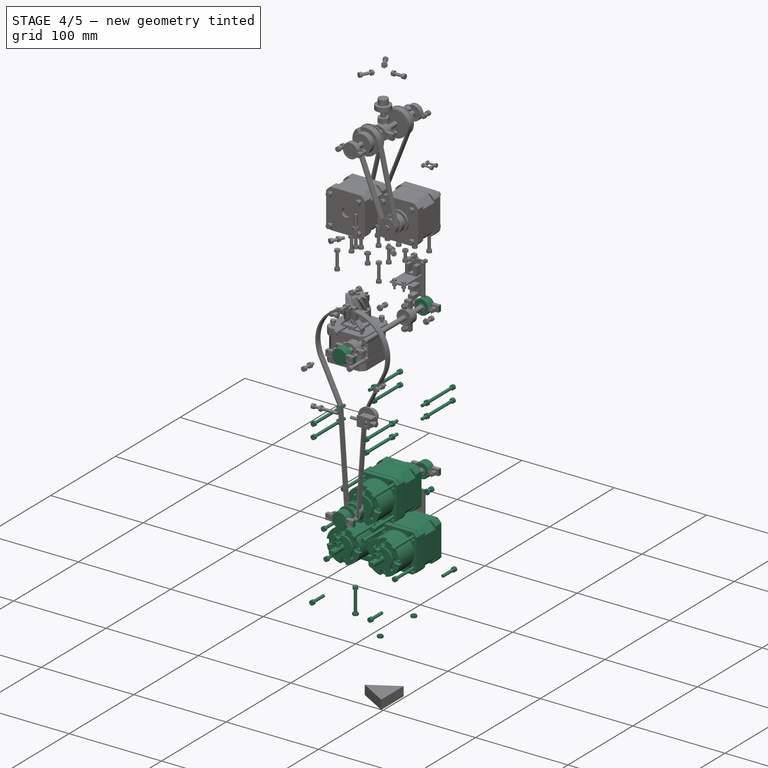
[diagram: stage 4 of 5 — iso view after this stage's code; geometry added in this stage tinted green]
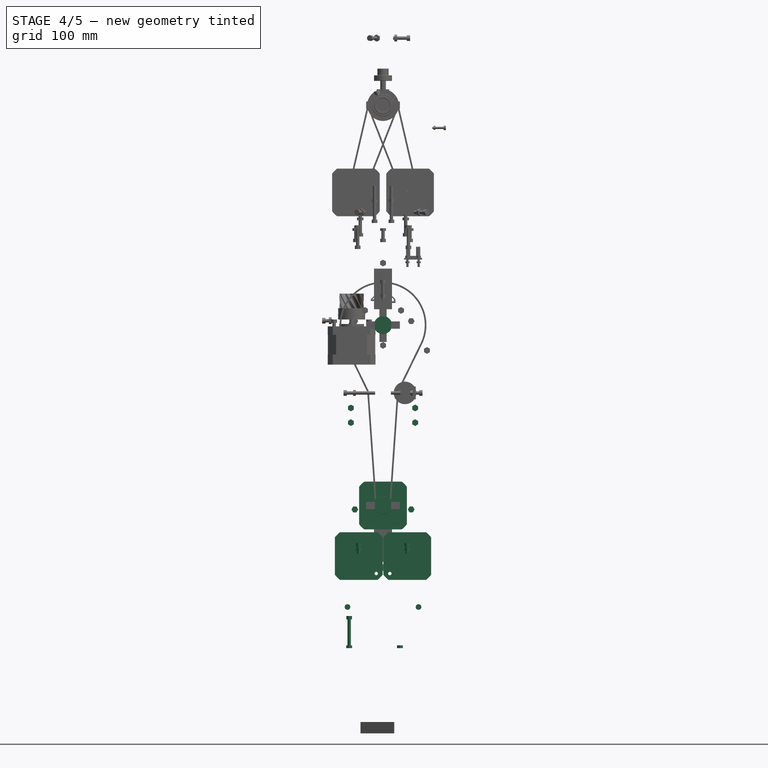
[diagram: stage 4 of 5 — front view after this stage's code; geometry added in this stage tinted green]
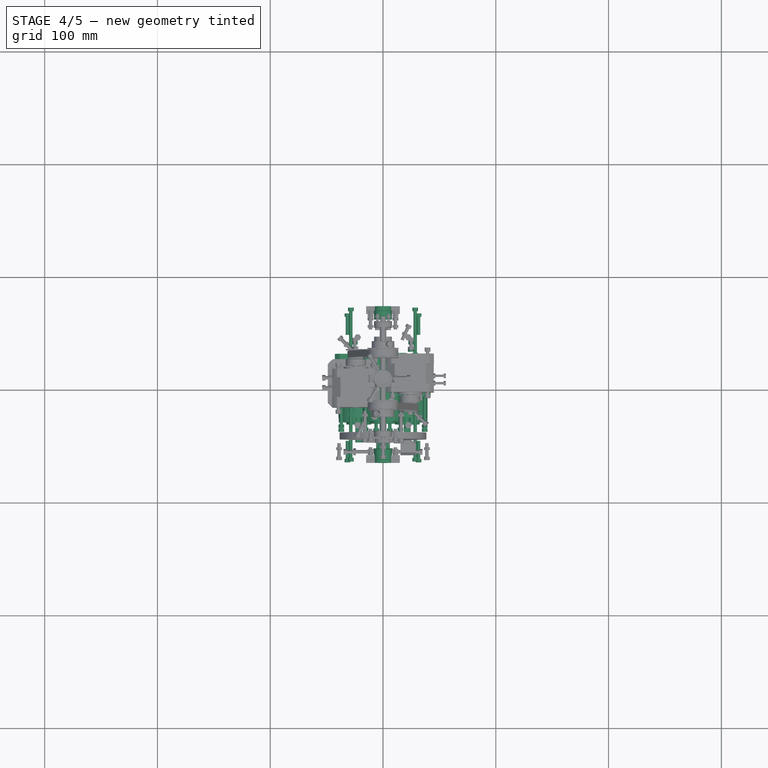
[diagram: stage 4 of 5 — top view after this stage's code; geometry added in this stage tinted green]
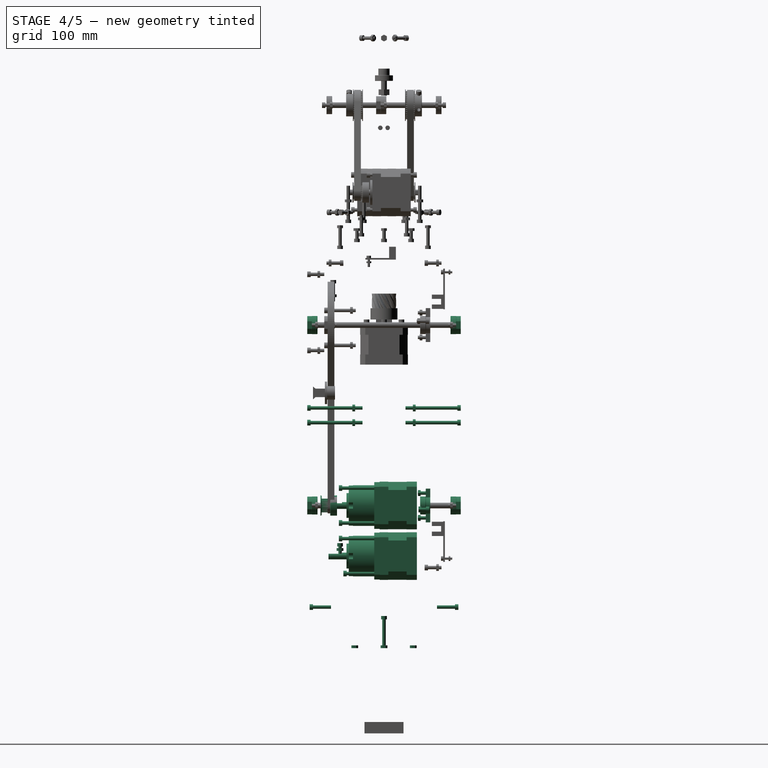
[diagram: stage 4 of 5 — right view after this stage's code; geometry added in this stage tinted green]
FEATURE [Sketcher::SketchObject] Sketch
  Placement = pos=(0,0,0) rot=(1,0,0;1.5708rad)
  sketch-geometry (6):
    g0: LineSegment StartX=0 StartY=0 StartZ=0 EndX=0 EndY=49 EndZ=0
    g1: LineSegment StartX=0 StartY=49 StartZ=0 EndX=2.5 EndY=49 EndZ=0
    g2: LineSegment StartX=2.5 StartY=49 StartZ=0 EndX=2.5 EndY=46 EndZ=0
    g3: LineSegment StartX=2.5 StartY=46 StartZ=0 EndX=1.5 EndY=46 EndZ=0
    g4: LineSegment StartX=1.5 StartY=46 StartZ=0 EndX=1.5 EndY=0 EndZ=0
    g5: LineSegment StartX=1.5 StartY=0 StartZ=0 EndX=0 EndY=0 EndZ=0
  constraints (17):
    c: Coincident(g-1,g0)
    c: PointOnObject(g0,g-2)
    c: Coincident(g0,g1)
    c: Horizontal(g1)
    c: Coincident(g1,g2)
    c: Vertical(g2)
    c: Coincident(g2,g3)
    c: Horizontal(g3)
    c: Coincident(g3,g4)
    c: Vertical(g4)
    c: Coincident(g4,g5)
    c: Coincident(g5,g0)
    c: Horizontal(g5)
    c: DistanceX(g5) = -1.5
    c: DistanceX(g1) = 2.5
    c: DistanceY(g2) = -3
    c: DistanceY(g4) = -46
FEATURE [PartDesign::Revolution] Revolution  label="M3x46mm"
  Angle = 360
  Axis = (0,0,1)
  Base = (0,0,0)
  Placement = pos=(0,0,0) rot=(1,0,0;1.5708rad)
  ReferenceAxis = -> Sketch [V_Axis]
  Reversed = true
  Sketch = -> Sketch
FEATURE [Sketcher::SketchObject] Sketch001
  Placement = pos=(0,0,0) rot=(1,0,0;1.5708rad)
  sketch-geometry (6):
    g0: LineSegment StartX=0 StartY=0 StartZ=0 EndX=0 EndY=43 EndZ=0
    g1: LineSegment StartX=0 StartY=43 StartZ=0 EndX=2.5 EndY=43 EndZ=0
    g2: LineSegment StartX=2.5 StartY=43 StartZ=0 EndX=2.5 EndY=40 EndZ=0
    g3: LineSegment StartX=2.5 StartY=40 StartZ=0 EndX=1.5 EndY=40 EndZ=0
    g4: LineSegment StartX=1.5 StartY=40 StartZ=0 EndX=1.5 EndY=0 EndZ=0
    g5: LineSegment StartX=1.5 StartY=0 StartZ=0 EndX=0 EndY=0 EndZ=0
  constraints (17):
    c: Coincident(g-1,g0)
    c: PointOnObject(g0,g-2)
    c: Coincident(g0,g1)
    c: Horizontal(g1)
    c: Coincident(g1,g2)
    c: Vertical(g2)
    c: Coincident(g2,g3)
    c: Horizontal(g3)
    c: Coincident(g3,g4)
    c: Vertical(g4)
    c: Coincident(g4,g5)
    c: Coincident(g5,g0)
    c: Horizontal(g5)
    c: DistanceX(g5) = -1.5
    c: DistanceX(g1) = 2.5
    c: DistanceY(g2) = -3
    c: DistanceY(g4) = -40
FEATURE [PartDesign::Revolution] Revolution001  label="M3x40mm"
  Angle = 360
  Axis = (0,0,1)
  Base = (0,0,0)
  Placement = pos=(0,0,0) rot=(1,0,0;1.5708rad)
  ReferenceAxis = -> Sketch001 [V_Axis]
  Reversed = true
  Sketch = -> Sketch001
FEATURE [Part::FeaturePython] Clone035  label="Clone of M3x25mm002"  # Draft clone (typed FeaturePython)
  Objects = -> [Revolution004]
  Placement = pos=(-30,4.84e-10,76) rot=(0.57735,0.57735,0.57735;2.0944rad)
  Scale = (1,1,1)
FEATURE [Part::FeaturePython] Clone036  label="Clone of M3Nut008"  # Draft clone (typed FeaturePython)
  Objects = -> [Pad]
  Placement = pos=(-30,-1.7e-11,75.6) rot=(0,0,1;2.0944rad)
  Scale = (1,1,1)
FEATURE [Part::FeaturePython] Clone037  label="Clone of M3Nut009"  # Draft clone (typed FeaturePython)
  Objects = -> [Pad]
  Placement = pos=(15,-25.9808,75.6) rot=(0,0,1;2.0944rad)
  Scale = (1,1,1)
FEATURE [Part::FeaturePython] Clone038  label="Clone of M3Nut010"  # Draft clone (typed FeaturePython)
  Objects = -> [Pad]
  Placement = pos=(15,25.9808,75.6) rot=(0,0,1;2.0944rad)
  Scale = (1,1,1)
FEATURE [Part::FeaturePython] Clone039  label="Clone of M3x16mm"  # Draft clone (typed FeaturePython)
  Objects = -> [Revolution007]
  Placement = pos=(-31.5,47,112) rot=(0,1,0;1.5708rad)
  Scale = (1,1,1)
FEATURE [Part::FeaturePython] Clone040  label="Clone of M3x16mm001"  # Draft clone (typed FeaturePython)
  Objects = -> [Revolution007]
  Placement = pos=(31.5,-47,112) rot=(-0.707107,0,0.707107;3.14159rad)
  Scale = (1,1,1)
FEATURE [Part::FeaturePython] Clone041  label="Clone of M3x16mm002"  # Draft clone (typed FeaturePython)
  Objects = -> [Revolution007]
  Placement = pos=(31.5,47,112) rot=(0,1,0;1.5708rad)
  Scale = (1,1,1)
FEATURE [Part::FeaturePython] Clone042  label="Clone of M3x16mm003"  # Draft clone (typed FeaturePython)
  Objects = -> [Revolution007]
  Placement = pos=(-31.5,-47,112) rot=(-0.707107,0,0.707107;3.14159rad)
  Scale = (1,1,1)
FEATURE [Part::Feature] Pocket007001  label="Nema17GearBox"
  shape: bbox 42.3 x 42.3 x 78.3 mm, 97 faces (baked)
FEATURE [Part::FeaturePython] Clone043  label="Clone of Nema17GearBox"  # Draft clone (typed FeaturePython)
  Objects = -> [Pocket007001]
  Placement = pos=(21.5,29.1,157.2) rot=(1,0,0;1.5708rad)
  Scale = (1,1,1)
FEATURE [Part::FeaturePython] Clone044  label="Clone of Nema17GearBox001"  # Draft clone (typed FeaturePython)
  Objects = -> [Pocket007001]
  Placement = pos=(-21.5,29.1,157.2) rot=(1,0,0;1.5708rad)
  Scale = (1,1,1)
FEATURE [Part::FeaturePython] Clone045  label="Clone of Nema17GearBox002"  # Draft clone (typed FeaturePython)
  Objects = -> [Pocket007001]
  Placement = pos=(4.39e-10,29.1,202) rot=(1,0,0;1.5708rad)
  Scale = (1,1,1)
FEATURE [Part::FeaturePython] Clone048  label="Clone of M3Nut011"  # Draft clone (typed FeaturePython)
  Objects = -> [Pad]
  Placement = pos=(-21.4999,-39.0002,161.801) rot=(0,0,1;0rad)
  Scale = (1,1,1)
FEATURE [Part::FeaturePython] Clone049  label="Clone of M3Nut012"  # Draft clone (typed FeaturePython)
  Objects = -> [Pad]
  Placement = pos=(21.5001,-39.0002,161.801) rot=(0,0,1;0rad)
  Scale = (1,1,1)
FEATURE [Part::FeaturePython] Clone050  label="Clone of M3x8mm"  # Draft clone (typed FeaturePython)
  Objects = -> [Revolution011]
  Placement = pos=(21.5001,-39.0003,157.701) rot=(1,0,0;1.5708rad)
  Scale = (1,1,1)
FEATURE [Part::FeaturePython] Clone051  label="Clone of M3x8mm001"  # Draft clone (typed FeaturePython)
  Objects = -> [Revolution011]
  Placement = pos=(-21.4999,-39.0003,157.701) rot=(1,0,0;1.5708rad)
  Scale = (1,1,1)
FEATURE [Part::FeaturePython] Clone052  label="Clone of M3x40mm003"  # Draft clone (typed FeaturePython)
  Objects = -> [Revolution001]
  Placement = pos=(15.5,3,217.5) rot=(1,0,0;3.14159rad)
  Scale = (1,1,1)
FEATURE [Part::FeaturePython] Clone053  label="Clone of M3x40mm004"  # Draft clone (typed FeaturePython)
  Objects = -> [Revolution001]
  Placement = pos=(37,3,172.7) rot=(1,0,0;3.14159rad)
  Scale = (1,1,1)
FEATURE [Part::FeaturePython] Clone054  label="Clone of M3x40mm005"  # Draft clone (typed FeaturePython)
  Objects = -> [Revolution001]
  Placement = pos=(-6,3,172.7) rot=(1,0,0;3.14159rad)
  Scale = (1,1,1)
FEATURE [Part::FeaturePython] Clone055  label="Clone of M3x40mm006"  # Draft clone (typed FeaturePython)
  Objects = -> [Revolution001]
  Placement = pos=(-15.5,3,217.5) rot=(1,0,0;3.14159rad)
  Scale = (1,1,1)
FEATURE [Part::FeaturePython] Clone056  label="Clone of M3x40mm007"  # Draft clone (typed FeaturePython)
  Objects = -> [Revolution001]
  Placement = pos=(15.5,3,186.5) rot=(1,0,0;3.14159rad)
  Scale = (1,1,1)
FEATURE [Part::FeaturePython] Clone057  label="Clone of M3x40mm008"  # Draft clone (typed FeaturePython)
  Objects = -> [Revolution001]
  Placement = pos=(-37,3,172.7) rot=(1,0,0;3.14159rad)
  Scale = (1,1,1)
FEATURE [Part::FeaturePython] Clone058  label="Clone of M3x40mm009"  # Draft clone (typed FeaturePython)
  Objects = -> [Revolution001]
  Placement = pos=(6,3,172.7) rot=(1,0,0;3.14159rad)
  Scale = (1,1,1)
FEATURE [Part::FeaturePython] Clone059  label="Clone of M3x40mm010"  # Draft clone (typed FeaturePython)
  Objects = -> [Revolution001]
  Placement = pos=(37,7,141.7) rot=(1,0,0;3.14159rad)
  Scale = (1,1,1)
FEATURE [Part::FeaturePython] Clone060  label="Clone of M3x40mm011"  # Draft clone (typed FeaturePython)
  Objects = -> [Revolution001]
  Placement = pos=(-37,7,141.7) rot=(1,0,0;3.14159rad)
  Scale = (1,1,1)
FEATURE [Part::FeaturePython] Clone061  label="Clone of M3x40mm012"  # Draft clone (typed FeaturePython)
  Objects = -> [Revolution001]
  Placement = pos=(-15.5,3,186.5) rot=(1,0,0;3.14159rad)
  Scale = (1,1,1)
FEATURE [Part::FeaturePython] Clone062  label="Clone of M3Nut013"  # Draft clone (typed FeaturePython)
  Objects = -> [Pad]
  Placement = pos=(25,33,198.5) rot=(0.935113,-0.250563,0.250563;1.63783rad)
  Scale = (1,1,1)
FEATURE [Part::FeaturePython] Clone063  label="Clone of M3Nut014"  # Draft clone (typed FeaturePython)
  Objects = -> [Pad]
  Placement = pos=(4.41e-10,32.5,213) rot=(0.935113,-0.250563,0.250563;1.63783rad)
  Scale = (1,1,1)
FEATURE [Part::FeaturePython] Clone064  label="Clone of M3Nut015"  # Draft clone (typed FeaturePython)
  Objects = -> [Pad]
  Placement = pos=(-25,33,198.5) rot=(0.935113,-0.250563,0.250563;1.63783rad)
  Scale = (1,1,1)
FEATURE [Part::FeaturePython] Clone065  label="Clone of M3Nut016"  # Draft clone (typed FeaturePython)
  Objects = -> [Pad]
  Placement = pos=(4.41e-10,32.5,191) rot=(0.935113,-0.250563,0.250563;1.63783rad)
  Scale = (1,1,1)
FEATURE [Part::Feature] Compound001  label="Bearing 625ZZ"
  shape: bbox 16 x 16 x 5 mm, 86 faces, 3 solids (baked)
FEATURE [App::DocumentObjectGroup] Group016  label="Bearings"
  Group = -> [Compound,Compound001]
FEATURE [Part::FeaturePython] Clone066  label="Clone of Bearing 625ZZ"  # Draft clone (typed FeaturePython)
  Objects = -> [Compound001]
  Placement = pos=(4.39e-10,37,202) rot=(1,0,0;1.5708rad)
  Scale = (1,1,1)
FEATURE [Part::FeaturePython] Clone067  label="Clone of CommonBearingFixThrough_01"  # Draft clone (typed FeaturePython)
  Objects = -> [CommonBearingFixThrough_01]
  Placement = pos=(4.39e-10,37,202) rot=(0.57735,-0.57735,-0.57735;4.18879rad)
  Scale = (1,1,1)
FEATURE [Part::FeaturePython] Clone068  label="Clone of M3x6mm"  # Draft clone (typed FeaturePython)
  Objects = -> [Revolution012]
  Placement = pos=(25,31,198.5) rot=(0,0,1;0rad)
  Scale = (1,1,1)
FEATURE [Part::FeaturePython] Clone071  label="Clone of M3x6mm001"  # Draft clone (typed FeaturePython)
  Objects = -> [Revolution012]
  Placement = pos=(-25,31,198.5) rot=(0,0,1;0rad)
  Scale = (1,1,1)
FEATURE [Part::FeaturePython] Clone072  label="Clone of M3x8mm002"  # Draft clone (typed FeaturePython)
  Objects = -> [Revolution011]
  Placement = pos=(4.39e-10,30,191) rot=(0,0,1;0rad)
  Scale = (1,1,1)
FEATURE [Part::FeaturePython] Clone073  label="Clone of M3x8mm003"  # Draft clone (typed FeaturePython)
  Objects = -> [Revolution011]
  Placement = pos=(4.39e-10,30,213) rot=(0,0,1;0rad)
  Scale = (1,1,1)
FEATURE [App::DocumentObjectGroup] Group017  label="Comp-Art1"
  Group = -> [Clone012,Clone013,Clone014,Clone015,Clone016,Clone017,Clone018,Clone020,Clone022,Clone023,Clone024,Clone025,Clone026,Clone027,Clone028,Clone036,Clone037,Clone038,Clone035,Clone034,Clone033,Clone029,Clone030,Clone031,Clone032,Clone039,Clone040,Clone041,Clone042,Clone062,Clone063,Clone064,Clone065,Clone066,Clone071,Clone068,Clone073,Clone072]
FEATURE [Part::Feature] Cut002002_solid  label="GT2x20PulleyModified"
  shape: bbox 18 x 18 x 14.6 mm, 52 faces (baked)
FEATURE [Part::Feature] Cut002001  label="GT2x20Pulley"
  shape: bbox 18 x 18 x 14.6 mm, 50 faces (baked)
FEATURE [Part::Feature] Pocket001  label="M3GrubScrew"
  Placement = pos=(0.5,0,0) rot=(0,0,1;0rad)
  shape: bbox 6 x 3 x 3 mm, 12 faces (baked)
FEATURE [Part::FeaturePython] Clone074  label="Clone of Art3Pulley"  # Draft clone (typed FeaturePython)
  Objects = -> [Cut002002_solid]
  Placement = pos=(4.39e-10,-56.3,202) rot=(0.57735,0.57735,0.57735;4.18879rad)
  Scale = (1,1,1)
FEATURE [Part::FeaturePython] Clone075  label="Clone of M3GrubScrew"  # Draft clone (typed FeaturePython)
  Objects = -> [Pocket001]
  Placement = pos=(2.6,-44.3,201) rot=(0,-1,0;1.5708rad)
  Scale = (1,1,1)
FEATURE [Part::FeaturePython] Clone076  label="Clone of Bearing 625ZZ001"  # Draft clone (typed FeaturePython)
  Objects = -> [Compound001]
  Placement = pos=(0,64,362) rot=(1,0,0;1.5708rad)
  Scale = (1,1,1)
FEATURE [Part::FeaturePython] Clone077  label="Clone of Bearing 625ZZ002"  # Draft clone (typed FeaturePython)
  Objects = -> [Compound001]
  Placement = pos=(0,-59,202) rot=(1,0,0;1.5708rad)
  Scale = (1,1,1)
FEATURE [Part::FeaturePython] Clone078  label="Clone of Bearing 625ZZ003"  # Draft clone (typed FeaturePython)
  Objects = -> [Compound001]
  Placement = pos=(0,64,202) rot=(1,0,0;1.5708rad)
  Scale = (1,1,1)
FEATURE [Part::FeaturePython] Clone079  label="Clone of Bearing 625ZZ004"  # Draft clone (typed FeaturePython)
  Objects = -> [Compound001]
  Placement = pos=(0,-59,362) rot=(1,0,0;1.5708rad)
  Scale = (1,1,1)
FEATURE [Part::FeaturePython] Clone080  label="Clone of CommonBearingFix_01"  # Draft clone (typed FeaturePython)
  Objects = -> [CommonBearingFix_01]
  Placement = pos=(0,-64,202) rot=(1,0,0;1.5708rad)
  Scale = (1,1,1)
FEATURE [Part::FeaturePython] Clone081  label="Clone of CommonBearingFix_002"  # Draft clone (typed FeaturePython)
  Objects = -> [CommonBearingFix_01]
  Placement = pos=(0,-64,362) rot=(1,0,0;1.5708rad)
  Scale = (1,1,1)
FEATURE [Part::FeaturePython] Clone082  label="Clone of CommonBearingFix_003"  # Draft clone (typed FeaturePython)
  Objects = -> [CommonBearingFix_01]
  Placement = pos=(0,64,202) rot=(-1,0,0;1.5708rad)
  Scale = (1,1,1)
FEATURE [Part::FeaturePython] Clone083  label="Clone of CommonBearingFix_004"  # Draft clone (typed FeaturePython)
  Objects = -> [CommonBearingFix_01]
  Placement = pos=(0,64,362) rot=(-1,0,0;1.5708rad)
  Scale = (1,1,1)
FEATURE [Part::FeaturePython] Clone084  label="Clone of M3Nut017"  # Draft clone (typed FeaturePython)
  Objects = -> [Pad]
  Placement = pos=(-28.5,-25.6,288.5) rot=(1,0,0;1.5708rad)
  Scale = (1,1,1)
FEATURE [Part::FeaturePython] Clone085  label="Clone of M3Nut018"  # Draft clone (typed FeaturePython)
  Objects = -> [Pad]
  Placement = pos=(-28.5,-25.6,275.5) rot=(1,0,0;1.5708rad)
  Scale = (1,1,1)
FEATURE [Part::FeaturePython] Clone086  label="Clone of M3Nut019"  # Draft clone (typed FeaturePython)
  Objects = -> [Pad]
  Placement = pos=(28.5,-25.6,288.5) rot=(1,0,0;1.5708rad)
  Scale = (1,1,1)
FEATURE [Part::FeaturePython] Clone087  label="Clone of M3Nut020"  # Draft clone (typed FeaturePython)
  Objects = -> [Pad]
  Placement = pos=(-28.5,28,288.5) rot=(1,0,0;1.5708rad)
  Scale = (1,1,1)
FEATURE [Part::FeaturePython] Clone088  label="Clone of M3Nut021"  # Draft clone (typed FeaturePython)
  Objects = -> [Pad]
  Placement = pos=(28.5,-25.6,275.5) rot=(1,0,0;1.5708rad)
  Scale = (1,1,1)
FEATURE [Part::FeaturePython] Clone089  label="Clone of M3Nut022"  # Draft clone (typed FeaturePython)
  Objects = -> [Pad]
  Placement = pos=(28.5,28,275.5) rot=(1,0,0;1.5708rad)
  Scale = (1,1,1)
FEATURE [Part::FeaturePython] Clone090  label="Clone of M3Nut023"  # Draft clone (typed FeaturePython)
  Objects = -> [Pad]
  Placement = pos=(-28.5,28,275.5) rot=(1,0,0;1.5708rad)
  Scale = (1,1,1)
FEATURE [Part::FeaturePython] Clone091  label="Clone of M3Nut024"  # Draft clone (typed FeaturePython)
  Objects = -> [Pad]
  Placement = pos=(28.5,28,288.5) rot=(1,0,0;1.5708rad)
  Scale = (1,1,1)
FEATURE [Part::FeaturePython] Clone092  label="Clone of M3Nut025"  # Draft clone (typed FeaturePython)
  Objects = -> [Pad]
  Placement = pos=(11,-58.6,202) rot=(1,0,0;1.5708rad)
  Scale = (1,1,1)
FEATURE [Part::FeaturePython] Clone093  label="Clone of M3Nut026"  # Draft clone (typed FeaturePython)
  Objects = -> [Pad]
  Placement = pos=(-11,-58.6,202) rot=(1,0,0;1.5708rad)
  Scale = (1,1,1)
FEATURE [Part::FeaturePython] Clone094  label="Clone of M3Nut027"  # Draft clone (typed FeaturePython)
  Objects = -> [Pad]
  Placement = pos=(11,-58.6,362) rot=(1,0,0;1.5708rad)
  Scale = (1,1,1)
FEATURE [Part::FeaturePython] Clone095  label="Clone of M3Nut028"  # Draft clone (typed FeaturePython)
  Objects = -> [Pad]
  Placement = pos=(-11,-58.6,362) rot=(1,0,0;1.5708rad)
  Scale = (1,1,1)
FEATURE [Part::FeaturePython] Clone096  label="Clone of M3Nut029"  # Draft clone (typed FeaturePython)
  Objects = -> [Pad]
  Placement = pos=(-3.9093e-07,-46.6,417) rot=(1,0,0;1.5708rad)
  Scale = (1,1,1)
FEATURE [Part::FeaturePython] Clone097  label="Clone of M3Nut030"  # Draft clone (typed FeaturePython)
  Objects = -> [Pad]
  Placement = pos=(-38.9711,-56.6,339.5) rot=(-0.377964,0.654654,-0.654654;3.86433rad)
  Scale = (1,1,1)
FEATURE [Part::FeaturePython] Clone098  label="Clone of M3Nut031"  # Draft clone (typed FeaturePython)
  Objects = -> [Pad]
  Placement = pos=(38.9711,-56.6,339.5) rot=(0.377964,0.654654,-0.654654;2.41886rad)
  Scale = (1,1,1)
FEATURE [Part::FeaturePython] Clone099  label="Clone of M3Nut032"  # Draft clone (typed FeaturePython)
  Objects = -> [Pad]
  Placement = pos=(-3.9093e-07,-56.6,407) rot=(1,0,0;1.5708rad)
  Scale = (1,1,1)
FEATURE [Part::FeaturePython] Clone100  label="Clone of M3x46mm"  # Draft clone (typed FeaturePython)
  Objects = -> [Revolution]
  Placement = pos=(28.5,-19.1,288.5) rot=(1,0,0;3.14159rad)
  Scale = (1,1,1)
FEATURE [Part::FeaturePython] Clone101  label="Clone of M3x46mm001"  # Draft clone (typed FeaturePython)
  Objects = -> [Revolution]
  Placement = pos=(28.5,-19.1,275.5) rot=(1,0,0;3.14159rad)
  Scale = (1,1,1)
FEATURE [Part::FeaturePython] Clone102  label="Clone of M3x46mm002"  # Draft clone (typed FeaturePython)
  Objects = -> [Revolution]
  Placement = pos=(-28.5,-19.1,288.5) rot=(1,0,0;3.14159rad)
  Scale = (1,1,1)
FEATURE [Part::FeaturePython] Clone103  label="Clone of M3x46mm003"  # Draft clone (typed FeaturePython)
  Objects = -> [Revolution]
  Placement = pos=(-28.5,-19.1,275.5) rot=(1,0,0;3.14159rad)
  Scale = (1,1,1)
FEATURE [Part::FeaturePython] Clone104  label="Clone of M3x46mm004"  # Draft clone (typed FeaturePython)
  Objects = -> [Revolution]
  Placement = pos=(-28.5,19.1,288.5) rot=(0,1,0;3.14159rad)
  Scale = (1,1,1)
FEATURE [Part::FeaturePython] Clone105  label="Clone of M3x46mm005"  # Draft clone (typed FeaturePython)
  Objects = -> [Revolution]
  Placement = pos=(-28.5,19.1,275.5) rot=(0,1,0;3.14159rad)
  Scale = (1,1,1)
FEATURE [Part::FeaturePython] Clone106  label="Clone of M3x46mm006"  # Draft clone (typed FeaturePython)
  Objects = -> [Revolution]
  Placement = pos=(28.5,19.1,288.5) rot=(0,1,0;3.14159rad)
  Scale = (1,1,1)
FEATURE [Part::FeaturePython] Clone107  label="Clone of M3x46mm007"  # Draft clone (typed FeaturePython)
  Objects = -> [Revolution]
  Placement = pos=(28.5,19.1,275.5) rot=(0,1,0;3.14159rad)
  Scale = (1,1,1)
FEATURE [Part::FeaturePython] Clone145  label="Clone of M3Nut042"  # Draft clone (typed FeaturePython)
  Objects = -> [Pad]
  Placement = pos=(0,34,351) rot=(0.935113,0.250563,-0.250563;1.63783rad)
  Scale = (1,1,1)
FEATURE [Part::FeaturePython] Clone146  label="Clone of M3Nut043"  # Draft clone (typed FeaturePython)
  Objects = -> [Pad]
  Placement = pos=(-16,-27.6,375) rot=(1,0,0;1.5708rad)
  Scale = (1,1,1)
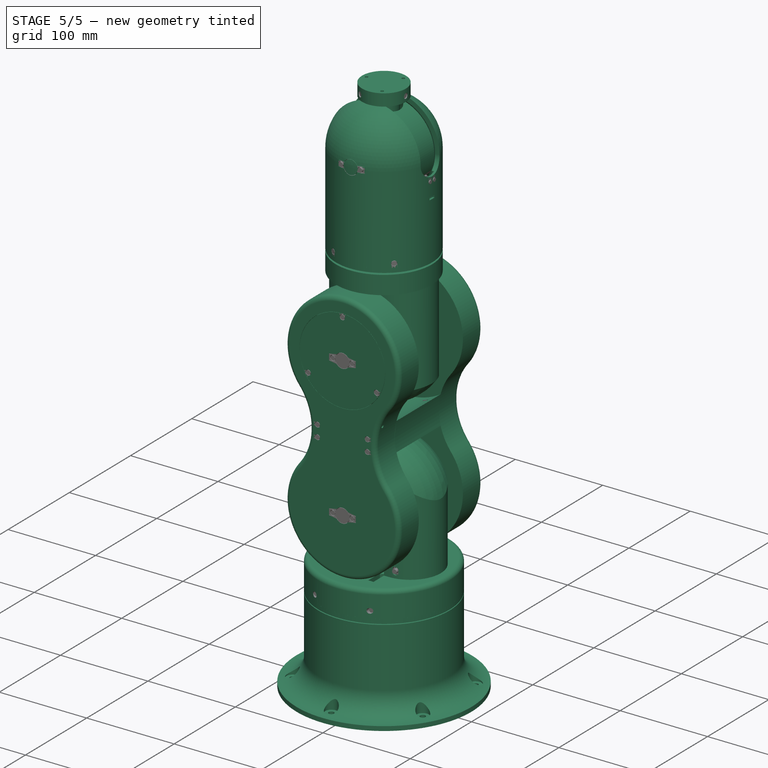
[diagram: stage 5 of 5 — iso view after this stage's code; geometry added in this stage tinted green]
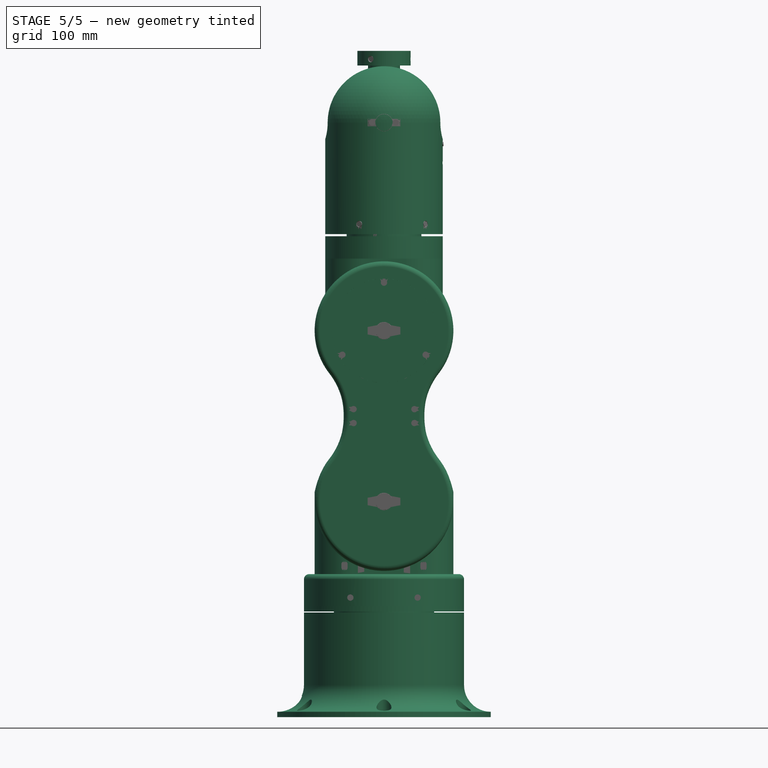
[diagram: stage 5 of 5 — front view after this stage's code; geometry added in this stage tinted green]
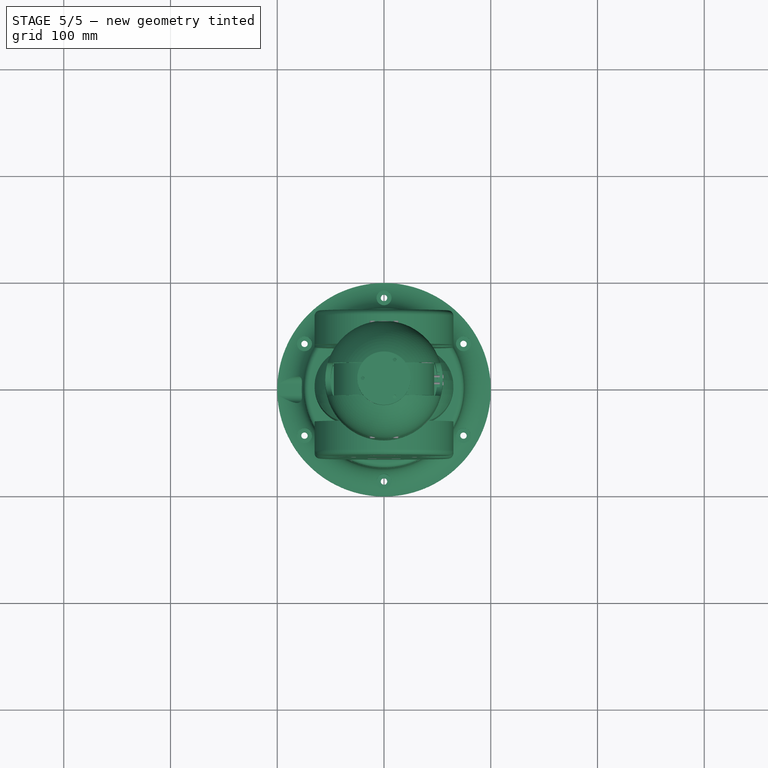
[diagram: stage 5 of 5 — top view after this stage's code; geometry added in this stage tinted green]
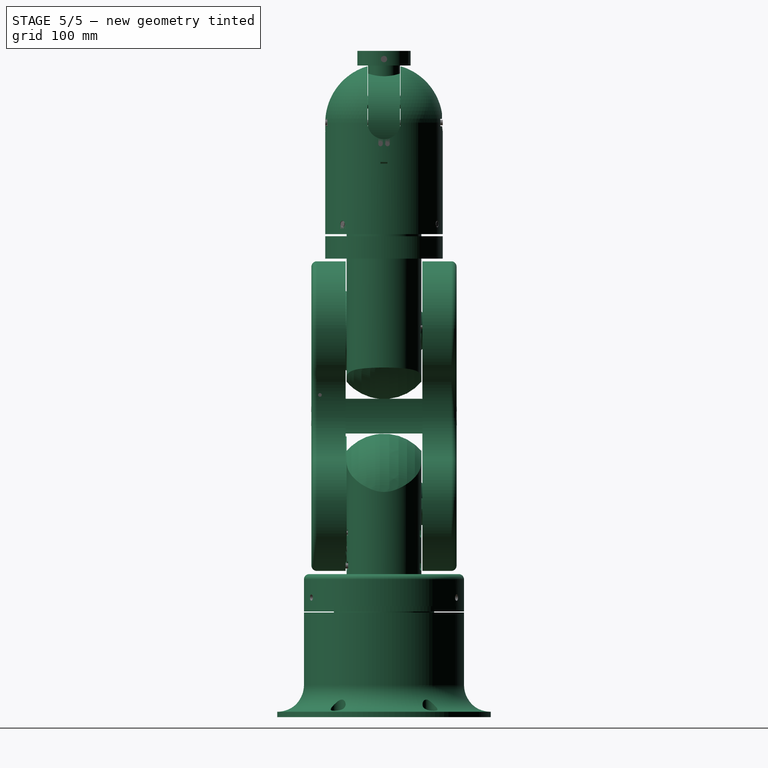
[diagram: stage 5 of 5 — right view after this stage's code; geometry added in this stage tinted green]
FEATURE [Part::FeaturePython] BaseBot_01  # a2plus imported part (geometry in sourceFile) (typed FeaturePython)
  fixedPosition = true
  sourceFile = <userpath>/repos/mio/Thor/freecad-src/BaseBot.fcstd
  timeLastImport = 1.45824e+09
  updateColors = true
FEATURE [Part::FeaturePython] BaseTop_01  # a2plus imported part (geometry in sourceFile) (typed FeaturePython)
  Placement = pos=(0,-2e-12,65.5) rot=(0,0,1;0rad)
  fixedPosition = false
  sourceFile = <userpath>/repos/mio/Thor/freecad-src/BaseTop.fcstd
  timeLastImport = 1.45791e+09
  updateColors = true
FEATURE [Part::FeaturePython] Art1Bot_01  # a2plus imported part (geometry in sourceFile) (typed FeaturePython)
  Placement = pos=(2e-12,0,49) rot=(0,0,1;1.5708rad)
  fixedPosition = false
  sourceFile = <userpath>/repos/mio/Thor/freecad-src/Art1Bot.fcstd
  timeLastImport = 1.45867e+09
  updateColors = true
FEATURE [Part::FeaturePython] Art1OptoFix_01  # a2plus imported part (geometry in sourceFile) (typed FeaturePython)
  Placement = pos=(-8,33,42.1) rot=(0,0,1;0rad)
  fixedPosition = false
  sourceFile = <userpath>/repos/mio/Thor/freecad-src/Art1OptoFix.fcstd
  timeLastImport = 1.45867e+09
  updateColors = true
FEATURE [Part::FeaturePython] Art1Top_01  # a2plus imported part (geometry in sourceFile) (typed FeaturePython)
  Placement = pos=(-3.8e-11,4.84e-10,86) rot=(0,0,1;1.5708rad)
  fixedPosition = false
  sourceFile = <userpath>/repos/mio/Thor/freecad-src/Art1Top.fcstd
  timeLastImport = 1.45791e+09
  updateColors = true
FEATURE [Part::FeaturePython] Art1GearMotor_01  # a2plus imported part (geometry in sourceFile) (typed FeaturePython)
  Placement = pos=(40,0,49) rot=(0,0,1;0rad)
  fixedPosition = false
  sourceFile = <userpath>/repos/mio/Thor/freecad-src/Art1GearMotor.fcstd
  timeLastImport = 1.45815e+09
  updateColors = true
FEATURE [Part::FeaturePython] Art1Body_01  # a2plus imported part (geometry in sourceFile) (typed FeaturePython)
  Placement = pos=(4.39e-10,7.9e-11,104) rot=(0,0,1;0rad)
  fixedPosition = false
  sourceFile = <userpath>/repos/mio/Thor/freecad-src/Art1Body.fcstd
  timeLastImport = 1.45867e+09
  updateColors = true
FEATURE [App::DocumentObjectGroup] Group002  label="Art1"
  Group = -> [Art1Bot_01,Art1OptoFix_01,Art1Top_01,Art1GearMotor_01,Art1Body_01]
FEATURE [Part::FeaturePython] Art2BodyA_01  # a2plus imported part (geometry in sourceFile) (typed FeaturePython)
  Placement = pos=(0,-68,202) rot=(0,0.707107,0.707107;3.14159rad)
  fixedPosition = false
  sourceFile = <userpath>/repos/mio/Thor/freecad-src/Art2BodyA.fcstd
  timeLastImport = 1.45791e+09
  updateColors = true
FEATURE [Part::FeaturePython] Art2BodyACover1_01  # a2plus imported part (geometry in sourceFile) (typed FeaturePython)
  Placement = pos=(4.39e-10,-35,202) rot=(1,0,0;1.5708rad)
  fixedPosition = false
  sourceFile = <userpath>/repos/mio/Thor/freecad-src/Art2BodyACover1.fcstd
  timeLastImport = 1.45867e+09
  updateColors = true
FEATURE [Part::FeaturePython] Art2BodyAWindow_01  # a2plus imported part (geometry in sourceFile) (typed FeaturePython)
  Placement = pos=(0,-68,362) rot=(0,0.707107,0.707107;3.14159rad)
  fixedPosition = false
  sourceFile = <userpath>/repos/mio/Thor/freecad-src/Art2BodyAWindow.fcstd
  timeLastImport = 1.45812e+09
  updateColors = true
FEATURE [Part::FeaturePython] Art2BodyACover2_01  # a2plus imported part (geometry in sourceFile) (typed FeaturePython)
  Placement = pos=(0,-36,202) rot=(1,0,0;1.5708rad)
  fixedPosition = false
  sourceFile = <userpath>/repos/mio/Thor/freecad-src/Art2BodyACover2.fcstd
  timeLastImport = 1.45791e+09
  updateColors = true
FEATURE [Part::FeaturePython] Art2BodyB_01  # a2plus imported part (geometry in sourceFile) (typed FeaturePython)
  Placement = pos=(0,68,202) rot=(1,0,0;1.5708rad)
  fixedPosition = false
  sourceFile = <userpath>/repos/mio/Thor/freecad-src/Art2BodyB.fcstd
  timeLastImport = 1.45791e+09
  updateColors = true
FEATURE [Part::FeaturePython] Art2BodyBCover_01  # a2plus imported part (geometry in sourceFile) (typed FeaturePython)
  Placement = pos=(0,36,362) rot=(-1,0,0;1.5708rad)
  fixedPosition = false
  sourceFile = <userpath>/repos/mio/Thor/freecad-src/Art2BodyBCover.fcstd
  timeLastImport = 1.45791e+09
  updateColors = true
FEATURE [Part::FeaturePython] Art2MotorGear_01  # a2plus imported part (geometry in sourceFile) (typed FeaturePython)
  Placement = pos=(21.5001,-35,157.201) rot=(-0.577356,0.577359,-0.577336;4.18877rad)
  fixedPosition = false
  sourceFile = <userpath>/repos/mio/Thor/freecad-src/Art2MotorGear.fcstd
  timeLastImport = 1.45867e+09
  updateColors = true
FEATURE [Part::FeaturePython] Art2Union_01  # a2plus imported part (geometry in sourceFile) (typed FeaturePython)
  Placement = pos=(0,-41,202) rot=(0,0.707107,0.707107;3.14159rad)
  fixedPosition = false
  sourceFile = <userpath>/repos/mio/Thor/freecad-src/Art2Union.fcstd
  timeLastImport = 1.45791e+09
  updateColors = true
FEATURE [Part::FeaturePython] Art2MotorGear_002  # a2plus imported part (geometry in sourceFile) (typed FeaturePython)
  Placement = pos=(-21.4999,-35,157.201) rot=(-0.577356,0.577359,-0.577336;4.18877rad)
  fixedPosition = false
  sourceFile = <userpath>/repos/mio/Thor/freecad-src/Art2MotorGear.fcstd
  timeLastImport = 1.45867e+09
  updateColors = true
FEATURE [Part::FeaturePython] Art3Body_01  # a2plus imported part (geometry in sourceFile) (typed FeaturePython)
  Placement = pos=(-4.6e-11,-2.19e-10,450.5) rot=(0,1,0;3.14159rad)
  fixedPosition = false
  sourceFile = <userpath>/repos/mio/Thor/freecad-src/Art3Body.fcstd
  timeLastImport = 1.45867e+09
  updateColors = true
FEATURE [Part::FeaturePython] Art3Pulley_01  # a2plus imported part (geometry in sourceFile) (typed FeaturePython)
  Placement = pos=(-4.6e-11,-53,362) rot=(0,0.707107,0.707107;3.14159rad)
  fixedPosition = false
  sourceFile = <userpath>/repos/mio/Thor/freecad-src/Art3Pulley.fcstd
  timeLastImport = 1.45812e+09
  updateColors = true
FEATURE [Part::FeaturePython] Art4BearingFix_01  # a2plus imported part (geometry in sourceFile) (typed FeaturePython)
  Placement = pos=(0,51,557) rot=(0,0.707107,0.707107;3.14159rad)
  fixedPosition = false
  sourceFile = <userpath>/repos/mio/Thor/freecad-src/Art4BearingFix.fcstd
  timeLastImport = 1.45791e+09
  updateColors = true
FEATURE [Part::FeaturePython] Art4BearingRing_01  # a2plus imported part (geometry in sourceFile) (typed FeaturePython)
  Placement = pos=(-5.9e-11,-7.11e-10,440.5) rot=(0,0,-1;1.5708rad)
  fixedPosition = false
  sourceFile = <userpath>/repos/mio/Thor/freecad-src/Art4BearingRing.fcstd
  timeLastImport = 1.45812e+09
  updateColors = true
FEATURE [Part::FeaturePython] Art4BodyBot_01  # a2plus imported part (geometry in sourceFile) (typed FeaturePython)
  Placement = pos=(6.33e-10,-7.81e-10,452.5) rot=(0,0,1;1.5708rad)
  fixedPosition = false
  sourceFile = <userpath>/repos/mio/Thor/freecad-src/Art4BodyBot.fcstd
  timeLastImport = 1.45791e+09
  updateColors = true
FEATURE [Part::FeaturePython] Art4MotorFix_01  # a2plus imported part (geometry in sourceFile) (typed FeaturePython)
  Placement = pos=(-49,-20.15,360.9) rot=(0,0,1;0rad)
  fixedPosition = false
  sourceFile = <userpath>/repos/mio/Thor/freecad-src/Art4MotorFix.fcstd
  timeLastImport = 1.45791e+09
  updateColors = true
FEATURE [Part::FeaturePython] Art4ody_01  # a2plus imported part (geometry in sourceFile) (typed FeaturePython)
  Placement = pos=(4.53e-10,-5.64e-10,457) rot=(0,0,1;1.5708rad)
  fixedPosition = false
  sourceFile = <userpath>/repos/mio/Thor/freecad-src/Art4ody.fcstd
  timeLastImport = 1.45867e+09
  updateColors = true
FEATURE [Part::FeaturePython] Art4Optodisk_01  # a2plus imported part (geometry in sourceFile) (typed FeaturePython)
  Placement = pos=(6.58e-10,-7.56e-10,440.5) rot=(-0.707107,0.707107,0;3.14159rad)
  fixedPosition = false
  sourceFile = <userpath>/repos/mio/Thor/freecad-src/Art4Optodisk.fcstd
  timeLastImport = 1.45791e+09
  updateColors = true
FEATURE [Part::FeaturePython] Art4TransmissionColumn_01  # a2plus imported part (geometry in sourceFile) (typed FeaturePython)
  Placement = pos=(7.5e-10,6.65e-10,377.5) rot=(0,0,1;0.785398rad)
  fixedPosition = false
  sourceFile = <userpath>/repos/mio/Thor/freecad-src/Art4TransmissionColumn.fcstd
  timeLastImport = 1.45791e+09
  updateColors = true
FEATURE [Part::FeaturePython] Clone  label="Clone of Art4BearingFix_01"  # Draft clone (typed FeaturePython)
  Objects = -> [Art4BearingFix_01]
  Placement = pos=(0,-51,557) rot=(1,0,0;1.5708rad)
  Scale = (1,1,1)
FEATURE [Part::FeaturePython] Art56GearPlate_01  # a2plus imported part (geometry in sourceFile) (typed FeaturePython)
  Placement = pos=(0,0,621) rot=(0,1,0;3.14159rad)
  fixedPosition = false
  sourceFile = <userpath>/repos/mio/Thor/freecad-src/Art56GearPlate.fcstd
  timeLastImport = 1.45791e+09
  updateColors = true
FEATURE [Part::FeaturePython] Art56Interface_01  # a2plus imported part (geometry in sourceFile) (typed FeaturePython)
  Placement = pos=(0,0,624.15) rot=(-0.707107,0.707107,0;3.14159rad)
  fixedPosition = false
  sourceFile = <userpath>/repos/mio/Thor/freecad-src/Art56Interface.fcstd
  timeLastImport = 1.45791e+09
  updateColors = true
FEATURE [Part::FeaturePython] Art56MotorCoverRing_01  # a2plus imported part (geometry in sourceFile) (typed FeaturePython)
  Placement = pos=(5e-10,0,557) rot=(-1,0,0;1.5708rad)
  fixedPosition = false
  sourceFile = <userpath>/repos/mio/Thor/freecad-src/Art56MotorCoverRing.fcstd
  timeLastImport = 1.45867e+09
  updateColors = true
FEATURE [Part::FeaturePython] Art56MotorHolderA_01  # a2plus imported part (geometry in sourceFile) (typed FeaturePython)
  Placement = pos=(-45.5,10.3,501.1) rot=(-1,0,0;1.5708rad)
  fixedPosition = false
  sourceFile = <userpath>/repos/mio/Thor/freecad-src/Art56MotorHolderA.fcstd
  timeLastImport = 1.45791e+09
  updateColors = true
FEATURE [Part::FeaturePython] Art56MotorHolderB_01  # a2plus imported part (geometry in sourceFile) (typed FeaturePython)
  Placement = pos=(-41.5,-24.1,457.6) rot=(1,0,0;1.5708rad)
  fixedPosition = false
  sourceFile = <userpath>/repos/mio/Thor/freecad-src/Art56MotorHolderB.fcstd
  timeLastImport = 1.45791e+09
  updateColors = true
FEATURE [Part::FeaturePython] Art56SmallGear_01  # a2plus imported part (geometry in sourceFile) (typed FeaturePython)
  Placement = pos=(4.87e-10,40.0001,557) rot=(0.987266,0.112485,-0.112485;1.58361rad)
  fixedPosition = false
  sourceFile = <userpath>/repos/mio/Thor/freecad-src/Art56SmallGear.fcstd
  timeLastImport = 1.45791e+09
  updateColors = true
FEATURE [Part::FeaturePython] Clone001  label="Clone of Art56MotorHolderB_01"  # Draft clone (typed FeaturePython)
  Objects = -> [Art56MotorHolderB_01]
  Placement = pos=(41.5,24.1,457.6) rot=(0,0.707107,0.707107;3.14159rad)
  Scale = (1,1,1)
FEATURE [Part::FeaturePython] Clone002  label="Clone of Art56MotorHolderA_01"  # Draft clone (typed FeaturePython)
  Objects = -> [Art56MotorHolderA_01]
  Placement = pos=(45.5,-10.3,501.1) rot=(0,-0.707107,0.707107;3.14159rad)
  Scale = (1,1,1)
FEATURE [Part::FeaturePython] Clone003  label="Clone of Art56SmallGear_01"  # Draft clone (typed FeaturePython)
  Objects = -> [Art56SmallGear_01]
  Placement = pos=(-4.87e-10,-40.0001,557) rot=(-0.080304,0.704823,0.704823;2.98133rad)
  Scale = (1,1,1)
FEATURE [Part::FeaturePython] Art23Optodisk_01  # a2plus imported part (geometry in sourceFile) (typed FeaturePython)
  Placement = pos=(-2e-11,35,362) rot=(0,0.707107,0.707107;3.14159rad)
  fixedPosition = false
  sourceFile = <userpath>/repos/mio/Thor/freecad-src/Art23Optodisk.fcstd
  timeLastImport = 1.45812e+09
  updateColors = true
FEATURE [Part::FeaturePython] Clone004  label="Clone of Art23Optodisk_01"  # Draft clone (typed FeaturePython)
  Objects = -> [Art23Optodisk_01]
  Placement = pos=(4.2e-10,35,202) rot=(-1,0,0;1.5708rad)
  Scale = (1,1,1)
FEATURE [Sketcher::SketchObject] Sketch002
  Placement = pos=(0,0,0) rot=(1,0,0;1.5708rad)
  sketch-geometry (6):
    g0: LineSegment StartX=0 StartY=0 StartZ=0 EndX=0 EndY=38 EndZ=0
    g1: LineSegment StartX=0 StartY=38 StartZ=0 EndX=2.5 EndY=38 EndZ=0
    g2: LineSegment StartX=2.5 StartY=38 StartZ=0 EndX=2.5 EndY=35 EndZ=0
    g3: LineSegment StartX=2.5 StartY=35 StartZ=0 EndX=1.5 EndY=35 EndZ=0
    g4: LineSegment StartX=1.5 StartY=35 StartZ=0 EndX=1.5 EndY=0 EndZ=0
    g5: LineSegment StartX=1.5 StartY=0 StartZ=0 EndX=0 EndY=0 EndZ=0
  constraints (17):
    c: Coincident(g-1,g0)
    c: PointOnObject(g0,g-2)
    c: Coincident(g0,g1)
    c: Horizontal(g1)
    c: Coincident(g1,g2)
    c: Vertical(g2)
    c: Coincident(g2,g3)
    c: Horizontal(g3)
    c: Coincident(g3,g4)
    c: Vertical(g4)
    c: Coincident(g4,g5)
    c: Coincident(g5,g0)
    c: Horizontal(g5)
    c: DistanceX(g5) = -1.5
    c: DistanceX(g1) = 2.5
    c: DistanceY(g2) = -3
    c: DistanceY(g4) = -35
FEATURE [PartDesign::Revolution] Revolution002  label="M3x35mm"
  Angle = 360
  Axis = (0,0,1)
  Base = (0,0,0)
  Placement = pos=(0,0,0) rot=(1,0,0;1.5708rad)
  ReferenceAxis = -> Sketch002 [V_Axis]
  Reversed = true
  Sketch = -> Sketch002
FEATURE [Sketcher::SketchObject] Sketch005
  Placement = pos=(0,0,0) rot=(1,0,0;1.5708rad)
  sketch-geometry (6):
    g0: LineSegment StartX=0 StartY=0 StartZ=0 EndX=0 EndY=23 EndZ=0
    g1: LineSegment StartX=0 StartY=23 StartZ=0 EndX=2.5 EndY=23 EndZ=0
    g2: LineSegment StartX=2.5 StartY=23 StartZ=0 EndX=2.5 EndY=20 EndZ=0
    g3: LineSegment StartX=2.5 StartY=20 StartZ=0 EndX=1.5 EndY=20 EndZ=0
    g4: LineSegment StartX=1.5 StartY=20 StartZ=0 EndX=1.5 EndY=0 EndZ=0
    g5: LineSegment StartX=1.5 StartY=0 StartZ=0 EndX=0 EndY=0 EndZ=0
  constraints (17):
    c: Coincident(g-1,g0)
    c: PointOnObject(g0,g-2)
    c: Coincident(g0,g1)
    c: Horizontal(g1)
    c: Coincident(g1,g2)
    c: Vertical(g2)
    c: Coincident(g2,g3)
    c: Horizontal(g3)
    c: Coincident(g3,g4)
    c: Vertical(g4)
    c: Coincident(g4,g5)
    c: Coincident(g5,g0)
    c: Horizontal(g5)
    c: DistanceX(g5) = -1.5
    c: DistanceX(g1) = 2.5
    c: DistanceY(g2) = -3
    c: DistanceY(g4) = -20
FEATURE [PartDesign::Revolution] Revolution005  label="M3x20mm"
  Angle = 360
  Axis = (0,0,1)
  Base = (0,0,0)
  Placement = pos=(0,0,0) rot=(1,0,0;1.5708rad)
  ReferenceAxis = -> Sketch005 [V_Axis]
  Reversed = true
  Sketch = -> Sketch005
FEATURE [Sketcher::SketchObject] Sketch009
  Placement = pos=(0,0,0) rot=(1,0,0;1.5708rad)
  sketch-geometry (6):
    g0: LineSegment StartX=0 StartY=0 StartZ=0 EndX=0 EndY=13 EndZ=0
    g1: LineSegment StartX=0 StartY=13 StartZ=0 EndX=2.5 EndY=13 EndZ=0
    g2: LineSegment StartX=2.5 StartY=13 StartZ=0 EndX=2.5 EndY=10 EndZ=0
    g3: LineSegment StartX=2.5 StartY=10 StartZ=0 EndX=1.5 EndY=10 EndZ=0
    g4: LineSegment StartX=1.5 StartY=10 StartZ=0 EndX=1.5 EndY=0 EndZ=0
    g5: LineSegment StartX=1.5 StartY=0 StartZ=0 EndX=0 EndY=0 EndZ=0
  constraints (17):
    c: Coincident(g-1,g0)
    c: PointOnObject(g0,g-2)
    c: Coincident(g0,g1)
    c: Horizontal(g1)
    c: Coincident(g1,g2)
    c: Vertical(g2)
    c: Coincident(g2,g3)
    c: Horizontal(g3)
    c: Coincident(g3,g4)
    c: Vertical(g4)
    c: Coincident(g4,g5)
    c: Coincident(g5,g0)
    c: Horizontal(g5)
    c: DistanceX(g5) = -1.5
    c: DistanceX(g1) = 2.5
    c: DistanceY(g2) = -3
    c: DistanceY(g4) = -10
FEATURE [PartDesign::Revolution] Revolution009  label="M3x10mm"
  Angle = 360
  Axis = (0,0,1)
  Base = (0,0,0)
  Placement = pos=(0,0,0) rot=(1,0,0;1.5708rad)
  ReferenceAxis = -> Sketch009 [V_Axis]
  Reversed = true
  Sketch = -> Sketch009
FEATURE [Part::FeaturePython] BaseBearingFix_01  # a2plus imported part (geometry in sourceFile) (typed FeaturePython)
  Placement = pos=(-3.44e-10,-1.72e-10,93) rot=(0,0,1;0rad)
  fixedPosition = false
  sourceFile = <userpath>/repos/mio/Thor/freecad-src/BaseBearingFix.fcstd
  timeLastImport = 1.45791e+09
  updateColors = true
FEATURE [App::DocumentObjectGroup] Group001  label="Base"
  Group = -> [BaseBot_01,BaseTop_01,BaseBearingFix_01]
FEATURE [Part::FeaturePython] Clone005  label="Clone of M3x40mm"  # Draft clone (typed FeaturePython)
  Objects = -> [Revolution001]
  Placement = pos=(-67.5,-1.72e-10,55) rot=(1,0,0;1.5708rad)
  Scale = (1,1,1)
FEATURE [Part::FeaturePython] Clone006  label="Clone of M3x40mm001"  # Draft clone (typed FeaturePython)
  Objects = -> [Revolution001]
  Placement = pos=(33.75,58.4567,55) rot=(1,0,0;1.5708rad)
  Scale = (1,1,1)
FEATURE [Part::FeaturePython] Clone007  label="Clone of M3x40mm002"  # Draft clone (typed FeaturePython)
  Objects = -> [Revolution001]
  Placement = pos=(33.75,-58.4567,55) rot=(1,0,0;1.5708rad)
  Scale = (1,1,1)
FEATURE [App::DocumentObjectGroup] Group015  label="M3 Nuts"
  Group = -> [Pad]
FEATURE [Part::FeaturePython] Clone008  label="Clone of M3Nut"  # Draft clone (typed FeaturePython)
  Objects = -> [Pad]
  Placement = pos=(-67.5,0,59.65) rot=(0,0,1;0.523599rad)
  Scale = (1,1,1)
FEATURE [Part::FeaturePython] Clone009  label="Clone of M3Nut001"  # Draft clone (typed FeaturePython)
  Objects = -> [Pad]
  Placement = pos=(33.75,-58.4567,59.65) rot=(0,0,1;2.61799rad)
  Scale = (1,1,1)
FEATURE [Part::FeaturePython] Clone010  label="Clone of M3Nut002"  # Draft clone (typed FeaturePython)
  Objects = -> [Pad]
  Placement = pos=(33.75,58.4567,59.65) rot=(0,0,-1;1.5708rad)
  Scale = (1,1,1)
FEATURE [App::DocumentObjectGroup] Group012  label="Comp-Base"
  Group = -> [Clone005,Clone006,Clone007,Clone008,Clone009,Clone010]
FEATURE [Sketcher::SketchObject] Sketch011
  sketch-geometry (2):
    g0: Circle CenterX=0 CenterY=0 CenterZ=0 NormalX=0 NormalY=0 NormalZ=1 Radius=55
    g1: Circle CenterX=0 CenterY=0 CenterZ=0 NormalX=0 NormalY=0 NormalZ=1 Radius=47.5
  constraints (4):
    c: Coincident(g0,g-1)
    c: Coincident(g1,g-1)
    c: Radius(g0) = 55
    c: Radius(g1) = 47.5
FEATURE [Sketcher::SketchObject] Sketch012
  sketch-geometry (2):
    g0: Circle CenterX=0 CenterY=0 CenterZ=0 NormalX=0 NormalY=0 NormalZ=1 Radius=35
    g1: Circle CenterX=0 CenterY=0 CenterZ=0 NormalX=0 NormalY=0 NormalZ=1 Radius=42.5
  constraints (4):
    c: Coincident(g0,g-1)
    c: Coincident(g1,g-1)
    c: Radius(g0) = 35
    c: Radius(g1) = 42.5
FEATURE [PartDesign::Pad] Pad001
  Length = 13
  Length2 = 100
  Sketch = -> Sketch011
  Type = 0
FEATURE [PartDesign::Pad] Pad002
  Length = 13
  Length2 = 100
  Sketch = -> Sketch012
  Type = 0
FEATURE [Part::Sphere] Sphere
  Angle1 = -90
  Angle2 = 90
  Angle3 = 360
  Placement = pos=(45,0,6.5) rot=(0,0,1;0rad)
  Radius = 5
FEATURE [Part::FeaturePython] Array  # Draft array (typed FeaturePython)
  Angle = 360
  ArrayType = 1
  Axis = (0,0,1)
  Base = -> Sphere
  Fuse = false
  NumberPolar = 19
  NumberX = 2
  NumberY = 2
  NumberZ = 1
FEATURE [Part::Compound] Compound  label="Bearing 16014zz"
  Links = -> [Pad002,Pad001,Array]
FEATURE [Part::Feature] Part__Feature  label="Nema-17-motor-40mm-final"
  shape: bbox 42.3 x 42.3 x 60.1 mm, 55 faces (baked)
FEATURE [Part::FeaturePython] Clone012  label="Clone of M3x30mm"  # Draft clone (typed FeaturePython)
  Objects = -> [Revolution003]
  Placement = pos=(55.5,-15.5,33) rot=(0,-0.707107,0.707107;3.14159rad)
  Scale = (1,1,1)
FEATURE [Part::FeaturePython] Clone013  label="Clone of M3x30mm001"  # Draft clone (typed FeaturePython)
  Objects = -> [Revolution003]
  Placement = pos=(24.5,15.5,33) rot=(0,-0.707107,0.707107;3.14159rad)
  Scale = (1,1,1)
FEATURE [Part::FeaturePython] Clone014  label="Clone of M3x30mm002"  # Draft clone (typed FeaturePython)
  Objects = -> [Revolution003]
  Placement = pos=(24.5,-15.5,33) rot=(0,-0.707107,0.707107;3.14159rad)
  Scale = (1,1,1)
FEATURE [Part::FeaturePython] Clone015  label="Clone of M3x30mm003"  # Draft clone (typed FeaturePython)
  Objects = -> [Revolution003]
  Placement = pos=(55.5,15.5,33) rot=(0,-0.707107,0.707107;3.14159rad)
  Scale = (1,1,1)
FEATURE [Part::FeaturePython] Clone016  label="Clone of Nema-17-motor-40mm-final"  # Draft clone (typed FeaturePython)
  Objects = -> [Part__Feature]
  Placement = pos=(40,0,5) rot=(0,0,1;0rad)
  Scale = (1,1,1)
FEATURE [Part::FeaturePython] Clone017  label="Clone of M3Nut003"  # Draft clone (typed FeaturePython)
  Objects = -> [Pad]
  Placement = pos=(46.15,0,54) rot=(0.250563,0.935113,0.250563;1.63783rad)
  Scale = (1,1,1)
FEATURE [Part::FeaturePython] Clone018  label="Clone of M3x10mm"  # Draft clone (typed FeaturePython)
  Objects = -> [Revolution009]
  Placement = pos=(41.5,0,54) rot=(0.57735,0.57735,-0.57735;2.0944rad)
  Scale = (1,1,1)
FEATURE [Part::FeaturePython] Clone020  label="Clone of OptoPCBA"  # Draft clone (typed FeaturePython)
  Objects = -> [Fusion152]
  Placement = pos=(-8,61.0689,46.1) rot=(0,0,-1;1.5708rad)
  Scale = (1,1,1)
FEATURE [Part::FeaturePython] Clone022  label="Clone of M2x8mm"  # Draft clone (typed FeaturePython)
  Objects = -> [Revolution010]
  Placement = pos=(-5,28.0689,49.6) rot=(0,-0.707107,0.707107;3.14159rad)
  Scale = (1,1,1)
FEATURE [Part::FeaturePython] Clone023  label="Clone of M2x8mm001"  # Draft clone (typed FeaturePython)
  Objects = -> [Revolution010]
  Placement = pos=(5,28.0689,49.6) rot=(0,-0.707107,0.707107;3.14159rad)
  Scale = (1,1,1)
FEATURE [Part::FeaturePython] Clone024  label="Clone of M2Nut"  # Draft clone (typed FeaturePython)
  Objects = -> [Pad043]
  Placement = pos=(-5,28.0689,43) rot=(0,0,1;0rad)
  Scale = (1,1,1)
FEATURE [Part::FeaturePython] Clone025  label="Clone of M2Nut001"  # Draft clone (typed FeaturePython)
  Objects = -> [Pad043]
  Placement = pos=(5,28.0689,43) rot=(0,0,1;0rad)
  Scale = (1,1,1)
FEATURE [Part::FeaturePython] Clone026  label="Clone of M3x12mm"  # Draft clone (typed FeaturePython)
  Objects = -> [Revolution008]
  Placement = pos=(24.5,-15.5,36.1) rot=(1,0,0;1.5708rad)
  Scale = (1,1,1)
FEATURE [Part::FeaturePython] Clone027  label="Clone of M3x12mm001"  # Draft clone (typed FeaturePython)
  Objects = -> [Revolution008]
  Placement = pos=(24.5,15.5,36.1) rot=(1,0,0;1.5708rad)
  Scale = (1,1,1)
FEATURE [Part::FeaturePython] Clone028  label="Clone of Bearing 16014zz001"  # Draft clone (typed FeaturePython)
  Objects = -> [Compound]
  Placement = pos=(4.84e-10,3.8e-11,79) rot=(0,0,1;0rad)
  Scale = (1,1,1)
FEATURE [Part::FeaturePython] Clone029  label="Clone of M3Nut004"  # Draft clone (typed FeaturePython)
  Objects = -> [Pad]
  Placement = pos=(31.5,48.9,112) rot=(0,0.707107,0.707107;3.14159rad)
  Scale = (1,1,1)
FEATURE [Part::FeaturePython] Clone030  label="Clone of M3Nut005"  # Draft clone (typed FeaturePython)
  Objects = -> [Pad]
  Placement = pos=(31.5,-51.1,112) rot=(0,0.707107,0.707107;3.14159rad)
  Scale = (1,1,1)
FEATURE [Part::FeaturePython] Clone031  label="Clone of M3Nut006"  # Draft clone (typed FeaturePython)
  Objects = -> [Pad]
  Placement = pos=(-31.5,-51.1,112) rot=(0,0.707107,0.707107;3.14159rad)
  Scale = (1,1,1)
FEATURE [Part::FeaturePython] Clone032  label="Clone of M3Nut007"  # Draft clone (typed FeaturePython)
  Objects = -> [Pad]
  Placement = pos=(-31.5,48.9,112) rot=(0,0.707107,0.707107;3.14159rad)
  Scale = (1,1,1)
FEATURE [Part::FeaturePython] Clone033  label="Clone of M3x25mm"  # Draft clone (typed FeaturePython)
  Objects = -> [Revolution004]
  Placement = pos=(15,25.9808,76) rot=(0.57735,0.57735,0.57735;2.0944rad)
  Scale = (1,1,1)
FEATURE [Part::FeaturePython] Clone034  label="Clone of M3x25mm001"  # Draft clone (typed FeaturePython)
  Objects = -> [Revolution004]
  Placement = pos=(15,-25.9808,76) rot=(0.57735,0.57735,0.57735;2.0944rad)
  Scale = (1,1,1)
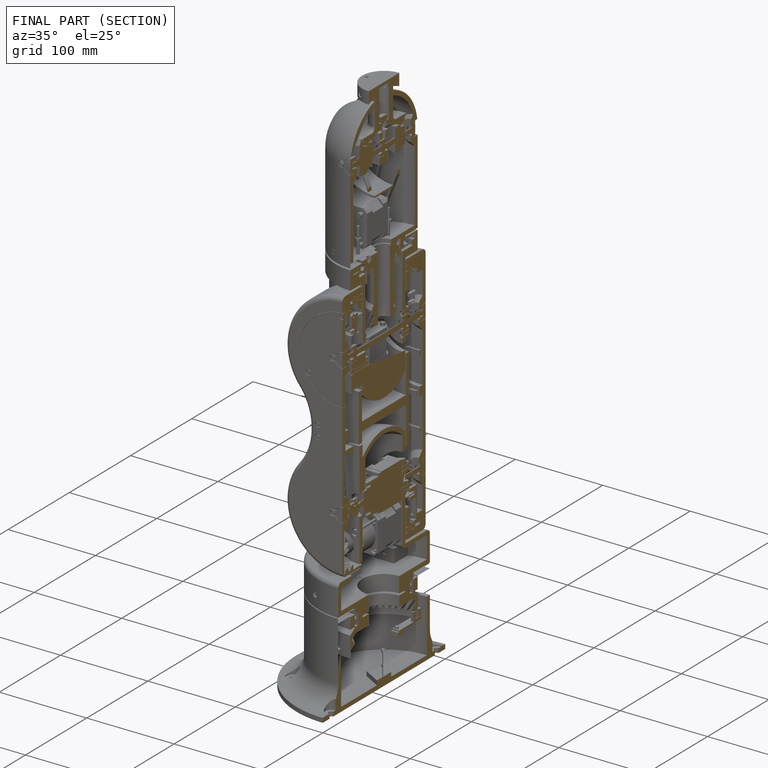
[diagram: finished part — half-section view (interior)]
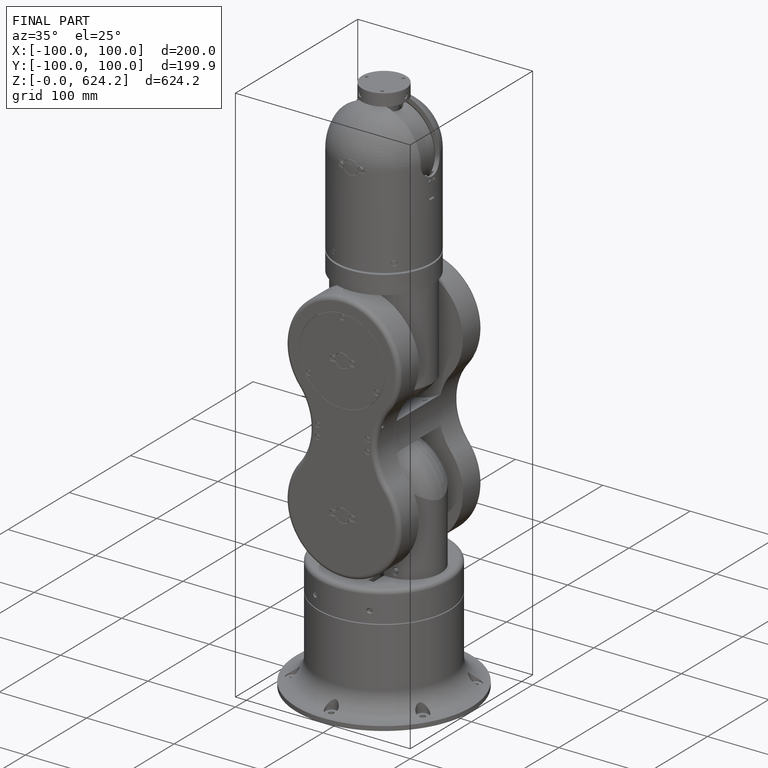
[diagram: finished part — iso view with bounding-box wireframe]
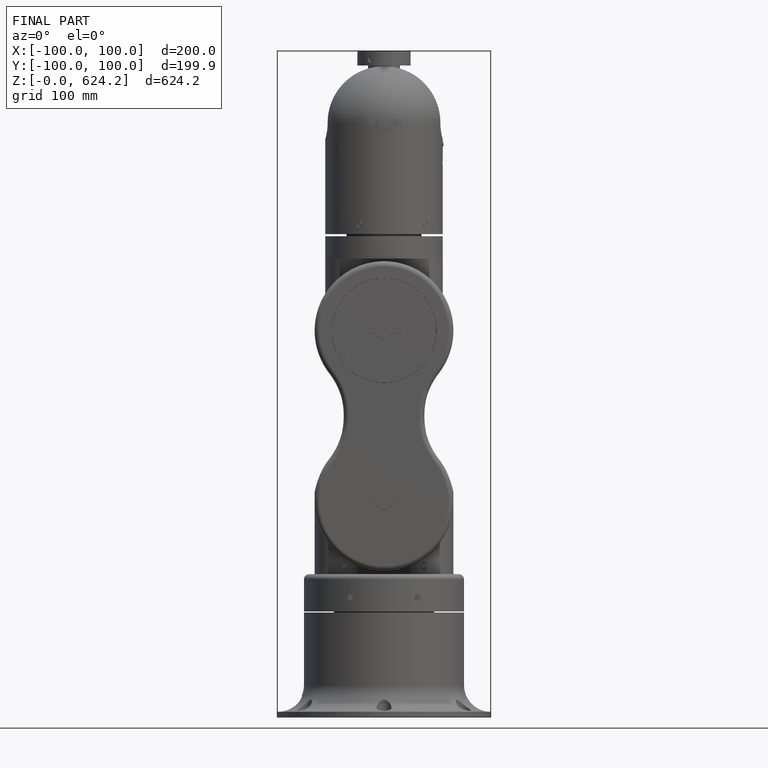
[diagram: finished part — front view with bounding-box wireframe]
